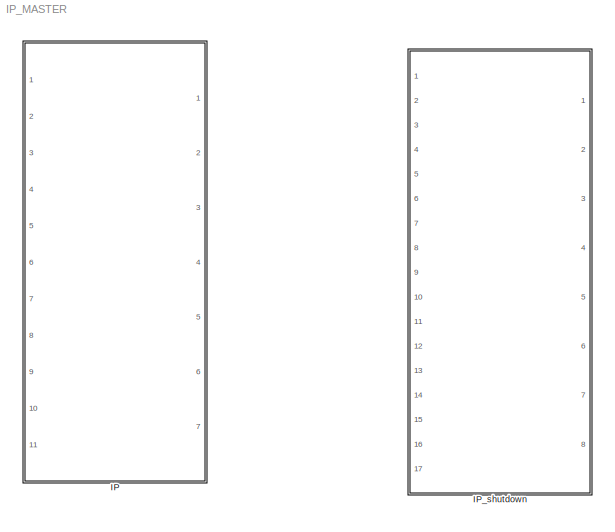
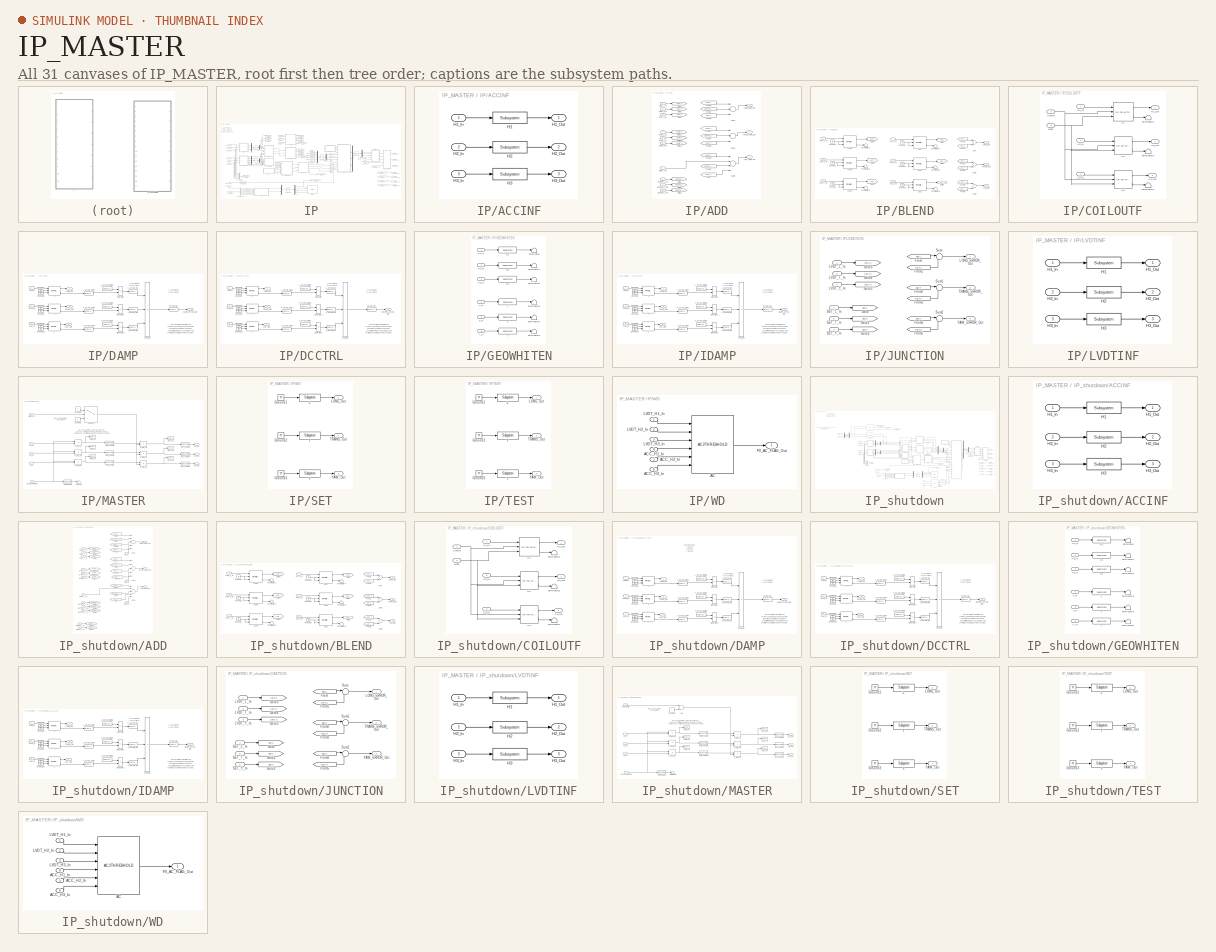
[diagram: thumbnail index - all 31 canvases of the model, root first then tree order]
MODEL IP_MASTER
KIND library
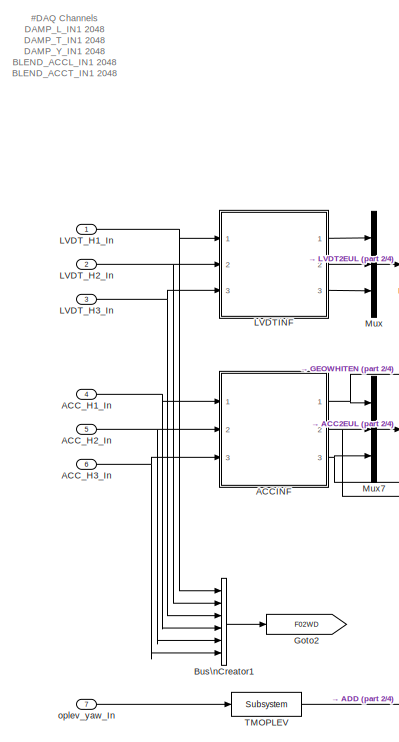
[diagram: IP - part 1/4, left side, full height]
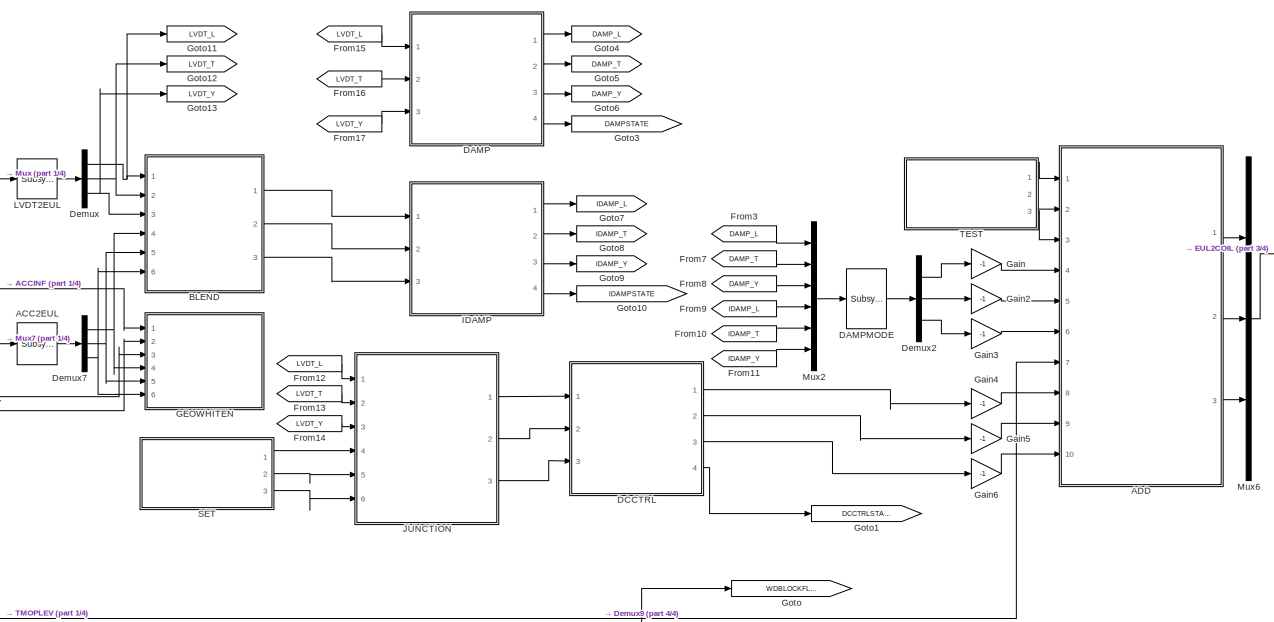
[diagram: IP - part 2/4, central region]
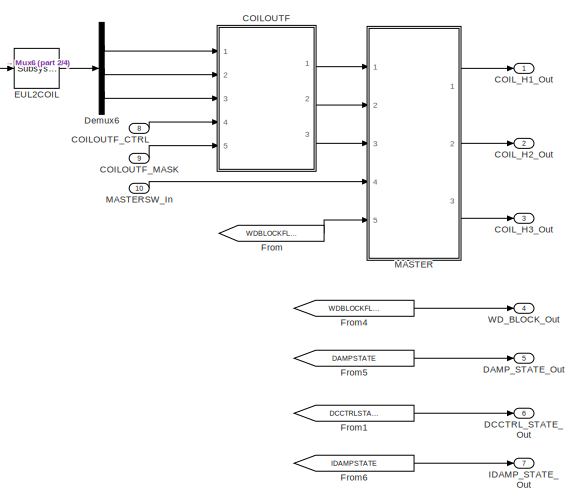
[diagram: IP - part 3/4, middle right region]
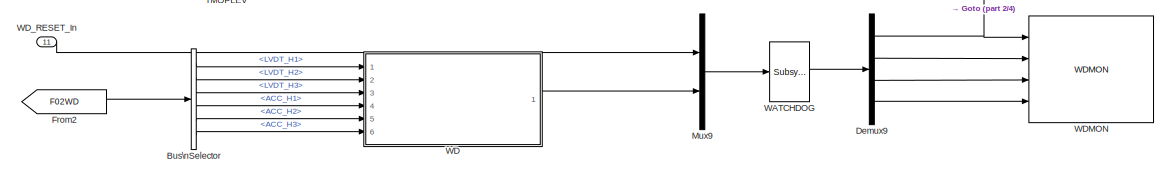
[diagram: IP - part 4/4, bottom left region]
BLOCK [SubSystem] IP
  Ports = [11, 7]
  RequestExecContextInheritance = off
  SID = 1
  Variant = off
BLOCK [Reference] IP/ACC2EUL  REF=cdsMuxMatrix/Subsystem
  AttributesFormatString = %<Tag>
  Description = ADL=SUS_INMATRIX.adl\nSCRIPT=generate_KisselButton.py 4 5 #CHANNEL# > #TARGET_DIR#/#FULL_PART_NAME#_KB.adl
  Ports = [1, 1]
  SID = 196
  SourceBlock = cdsMuxMatrix/Subsystem
  SourceType = SubSystem
  Tag = cdsMuxMatrix
BLOCK [SubSystem] IP/ACCINF
  Ports = [3, 3]
  RequestExecContextInheritance = off
  SID = 180
  Variant = off
BLOCK [Reference] IP/ACCINF/H1  REF=cdsFilt/Subsystem
  AttributesFormatString = %<Tag>
  Description = Purpose:                                                                                                                                                                                                                                  \nStandard CDS IIR filter module.                                                                                                                                     ...<+1302ch>  <repeated x38 — deduplicated; at blocks: H1, H2, H3, L, T, Y, TMOPLEV>
  Ports = [1, 1]
  SID = 282
  SourceBlock = cdsFilt/Subsystem
  SourceType = SubSystem
  Tag = cdsFilt
BLOCK [Inport] IP/ACCINF/H1_In
  IconDisplay = Port number
  SID = 279
BLOCK [Outport] IP/ACCINF/H1_Out
  IconDisplay = Port number
  SID = 285
BLOCK [Reference] IP/ACCINF/H2  REF=cdsFilt/Subsystem
  AttributesFormatString = %<Tag>
  Ports = [1, 1]
  SID = 283
  SourceBlock = cdsFilt/Subsystem
  SourceType = SubSystem
  Tag = cdsFilt
BLOCK [Inport] IP/ACCINF/H2_In
  IconDisplay = Port number
  Port = 2
  SID = 280
BLOCK [Outport] IP/ACCINF/H2_Out
  IconDisplay = Port number
  Port = 2
  SID = 286
BLOCK [Reference] IP/ACCINF/H3  REF=cdsFilt/Subsystem
  AttributesFormatString = %<Tag>
  Ports = [1, 1]
  SID = 284
  SourceBlock = cdsFilt/Subsystem
  SourceType = SubSystem
  Tag = cdsFilt
BLOCK [Inport] IP/ACCINF/H3_In
  IconDisplay = Port number
  Port = 3
  SID = 281
BLOCK [Outport] IP/ACCINF/H3_Out
  IconDisplay = Port number
  Port = 3
  SID = 287
BLOCK [Inport] IP/ACC_H1_In
  IconDisplay = Port number
  Port = 4
  SID = 5
BLOCK [Inport] IP/ACC_H2_In
  IconDisplay = Port number
  Port = 5
  SID = 6
BLOCK [Inport] IP/ACC_H3_In
  IconDisplay = Port number
  Port = 6
  SID = 7
BLOCK [SubSystem] IP/ADD
  Ports = [10, 3]
  RequestExecContextInheritance = off
  SID = 14
  Variant = off
BLOCK [Inport] IP/ADD/DAMP_L_In
  IconDisplay = Port number
  Port = 4
  SID = 295
BLOCK [Inport] IP/ADD/DAMP_T_In
  IconDisplay = Port number
  Port = 5
  SID = 296
BLOCK [Inport] IP/ADD/DAMP_Y_In
  IconDisplay = Port number
  Port = 6
  SID = 297
BLOCK [Inport] IP/ADD/DCCTRL_L_In
  IconDisplay = Port number
  Port = 8
  SID = 383
BLOCK [Inport] IP/ADD/DCCTRL_T_In\n
  IconDisplay = Port number
  Port = 9
  SID = 384
BLOCK [Inport] IP/ADD/DCCTRL_Y_In
  IconDisplay = Port number
  Port = 10
  SID = 385
BLOCK [From] IP/ADD/Fro
  CloseFcn = tagdialog Close
  GotoTag = TEST_Y
  SID = 505
BLOCK [From] IP/ADD/From10
  CloseFcn = tagdialog Close
  GotoTag = DAMP_Y
  SID = 307
BLOCK [From] IP/ADD/From17
  CloseFcn = tagdialog Close
  GotoTag = DAMP_T
  SID = 309
BLOCK [From] IP/ADD/From2
  CloseFcn = tagdialog Close
  GotoTag = DCCTRL_L
  SID = 389
BLOCK [From] IP/ADD/From3
  CloseFcn = tagdialog Close
  GotoTag = DAMP_L
  SID = 310
BLOCK [From] IP/ADD/From4
  CloseFcn = tagdialog Close
  GotoTag = DCCTRL_T
  SID = 390
BLOCK [From] IP/ADD/From5
  CloseFcn = tagdialog Close
  GotoTag = DCCTRL_Y
  SID = 391
BLOCK [From] IP/ADD/From\n
  CloseFcn = tagdialog Close
  GotoTag = TEST_L
  SID = 503
BLOCK [From] IP/ADD/From\n1
  CloseFcn = tagdialog Close
  GotoTag = TEST_T
  SID = 504
BLOCK [Goto] IP/ADD/Goto1
  GotoTag = DCCTRL_L
  SID = 386
BLOCK [Goto] IP/ADD/Goto12
  GotoTag = DAMP_L
  SID = 298
BLOCK [Goto] IP/ADD/Goto14
  GotoTag = DAMP_Y
  SID = 299
BLOCK [Goto] IP/ADD/Goto15
  GotoTag = DAMP_T
  SID = 300
BLOCK [Goto] IP/ADD/Goto2
  GotoTag = DCCTRL_Y
  SID = 387
BLOCK [Goto] IP/ADD/Goto3
  GotoTag = TEST_L
  SID = 500
BLOCK [Goto] IP/ADD/Goto4
  GotoTag = DCCTRL_T
  SID = 388
BLOCK [Goto] IP/ADD/Goto5
  GotoTag = TEST_Y
  SID = 501
BLOCK [Goto] IP/ADD/Goto6
  GotoTag = TEST_T
  SID = 502
BLOCK [Outport] IP/ADD/LONG_MAIN_Out
  IconDisplay = Port number
  SID = 30
BLOCK [Sum] IP/ADD/Sum1
  InputSameDT = off
  Inputs = +++
  OutDataTypeStr = Inherit: Inherit via internal rule
  Ports = [3, 1]
  SID = 22
  SaturateOnIntegerOverflow = off
BLOCK [Sum] IP/ADD/Sum2
  InputSameDT = off
  Inputs = +++
  OutDataTypeStr = Inherit: Inherit via internal rule
  Ports = [3, 1]
  SID = 301
  SaturateOnIntegerOverflow = off
BLOCK [Sum] IP/ADD/Sum3
  InputSameDT = off
  Inputs = ++++
  OutDataTypeStr = Inherit: Inherit via internal rule
  Ports = [4, 1]
  SID = 303
  SaturateOnIntegerOverflow = off
BLOCK [Inport] IP/ADD/TEST_L_In
  IconDisplay = Port number
  SID = 497
BLOCK [Inport] IP/ADD/TEST_T_In
  IconDisplay = Port number
  Port = 2
  SID = 498
BLOCK [Inport] IP/ADD/TEST_Y_In
  IconDisplay = Port number
  Port = 3
  SID = 499
BLOCK [Outport] IP/ADD/TRANS_MAIN_Out
  IconDisplay = Port number
  Port = 2
  SID = 302
BLOCK [Outport] IP/ADD/YAW_MAIN_Out
  IconDisplay = Port number
  Port = 3
  SID = 304
BLOCK [Inport] IP/ADD/oplev_Y_In
  IconDisplay = Port number
  Port = 7
  SID = 367
BLOCK [SubSystem] IP/BLEND
  Ports = [6, 3]
  RequestExecContextInheritance = off
  SID = 33
  Variant = off
BLOCK [Reference] IP/BLEND/ACCL  REF=cdsFiltCtrl/IIR FM with control
  AttributesFormatString = %<Tag>
  Description = cdsFiltCntrl is the standard IIR filter module (exactly the same as cdsFilt) but with added control data output 'Ctrl'. Filter module digital signal output appears on the first output, which is called 'Val'. 'Ctrl' output has a bit pattern encoding the state of filter's on/off switches (FM1 through FM10). The bit values are:\n                                                                        ...<+4621ch>  <repeated x36 — deduplicated; at blocks: ACCL, ACCT, ACCY, LVDTL, LVDTT, LVDTY, H1, H2, H3, L, T, Y>
  Ports = [3, 2]
  SID = 61
  SourceBlock = cdsFiltCtrl/IIR FM with control
  SourceType = SubSystem
  Tag = cdsFiltCtrl
BLOCK [Reference] IP/BLEND/ACCT  REF=cdsFiltCtrl/IIR FM with control
  AttributesFormatString = %<Tag>
  Ports = [3, 2]
  SID = 62
  SourceBlock = cdsFiltCtrl/IIR FM with control
  SourceType = SubSystem
  Tag = cdsFiltCtrl
BLOCK [Reference] IP/BLEND/ACCY  REF=cdsFiltCtrl/IIR FM with control
  AttributesFormatString = %<Tag>
  Ports = [3, 2]
  SID = 63
  SourceBlock = cdsFiltCtrl/IIR FM with control
  SourceType = SubSystem
  Tag = cdsFiltCtrl
BLOCK [Inport] IP/BLEND/ACC_L_In
  IconDisplay = Port number
  Port = 4
  SID = 37
BLOCK [Inport] IP/BLEND/ACC_T_In
  IconDisplay = Port number
  Port = 5
  SID = 38
BLOCK [Inport] IP/BLEND/ACC_Y_IN
  IconDisplay = Port number
  Port = 6
  SID = 39
BLOCK [From] IP/BLEND/From1
  CloseFcn = tagdialog Close
  GotoTag = LVDT_T
  SID = 40
BLOCK [From] IP/BLEND/From2
  CloseFcn = tagdialog Close
  GotoTag = LVDT_Y
  SID = 41
BLOCK [From] IP/BLEND/From3
  CloseFcn = tagdialog Close
  GotoTag = LVDT_L
  SID = 42
BLOCK [From] IP/BLEND/From4
  CloseFcn = tagdialog Close
  GotoTag = ACC_L
  SID = 43
BLOCK [From] IP/BLEND/From5
  CloseFcn = tagdialog Close
  GotoTag = ACC_T
  SID = 44
BLOCK [From] IP/BLEND/From6
  CloseFcn = tagdialog Close
  GotoTag = ACC_Y
  SID = 45
BLOCK [Goto] IP/BLEND/Goto1
  GotoTag = LVDT_T
  SID = 46
BLOCK [Goto] IP/BLEND/Goto2
  GotoTag = LVDT_L
  SID = 47
BLOCK [Goto] IP/BLEND/Goto3
  GotoTag = LVDT_Y
  SID = 48
BLOCK [Goto] IP/BLEND/Goto4
  GotoTag = ACC_T
  SID = 49
BLOCK [Goto] IP/BLEND/Goto5
  GotoTag = ACC_L
  SID = 50
BLOCK [Goto] IP/BLEND/Goto6
  GotoTag = ACC_Y
  SID = 51
BLOCK [Ground] IP/BLEND/Ground1
  SID = 52
BLOCK [Ground] IP/BLEND/Ground2
  SID = 53
BLOCK [Ground] IP/BLEND/Ground3
  SID = 54
BLOCK [Ground] IP/BLEND/Ground4
  SID = 55
BLOCK [Ground] IP/BLEND/Ground5
  SID = 56
BLOCK [Ground] IP/BLEND/Ground6
  SID = 57
BLOCK [Outport] IP/BLEND/LONG_Out
  IconDisplay = Port number
  SID = 73
BLOCK [Reference] IP/BLEND/LVDTL  REF=cdsFiltCtrl/IIR FM with control
  AttributesFormatString = %<Tag>
  Ports = [3, 2]
  SID = 58
  SourceBlock = cdsFiltCtrl/IIR FM with control
  SourceType = SubSystem
  Tag = cdsFiltCtrl
BLOCK [Reference] IP/BLEND/LVDTT  REF=cdsFiltCtrl/IIR FM with control
  AttributesFormatString = %<Tag>
  Ports = [3, 2]
  SID = 59
  SourceBlock = cdsFiltCtrl/IIR FM with control
  SourceType = SubSystem
  Tag = cdsFiltCtrl
BLOCK [Reference] IP/BLEND/LVDTY  REF=cdsFiltCtrl/IIR FM with control
  AttributesFormatString = %<Tag>
  Ports = [3, 2]
  SID = 60
  SourceBlock = cdsFiltCtrl/IIR FM with control
  SourceType = SubSystem
  Tag = cdsFiltCtrl
BLOCK [Inport] IP/BLEND/LVDT_L_In
  IconDisplay = Port number
  SID = 34
BLOCK [Inport] IP/BLEND/LVDT_T_In
  IconDisplay = Port number
  Port = 2
  SID = 35
BLOCK [Inport] IP/BLEND/LVDT_Y_In
  IconDisplay = Port number
  Port = 3
  SID = 36
BLOCK [Sum] IP/BLEND/Sum
  InputSameDT = off
  OutDataTypeStr = Inherit: Inherit via internal rule
  Ports = [2, 1]
  SID = 64
  SaturateOnIntegerOverflow = off
BLOCK [Sum] IP/BLEND/Sum1
  InputSameDT = off
  OutDataTypeStr = Inherit: Inherit via internal rule
  Ports = [2, 1]
  SID = 65
  SaturateOnIntegerOverflow = off
BLOCK [Sum] IP/BLEND/Sum2
  InputSameDT = off
  OutDataTypeStr = Inherit: Inherit via internal rule
  Ports = [2, 1]
  SID = 66
  SaturateOnIntegerOverflow = off
BLOCK [Outport] IP/BLEND/TRANS_Out
  IconDisplay = Port number
  Port = 2
  SID = 74
BLOCK [Terminator] IP/BLEND/Terminator1
  SID = 67
BLOCK [Terminator] IP/BLEND/Terminator2
  SID = 68
BLOCK [Terminator] IP/BLEND/Terminator3
  SID = 69
BLOCK [Terminator] IP/BLEND/Terminator4
  SID = 70
BLOCK [Terminator] IP/BLEND/Terminator5
  SID = 71
BLOCK [Terminator] IP/BLEND/Terminator6
  SID = 72
BLOCK [Outport] IP/BLEND/YAW_Out
  IconDisplay = Port number
  Port = 3
  SID = 75
BLOCK [BusCreator] IP/Bus\nCreator1
  DisplayOption = bar
  InheritFromInputs = on
  Inputs = 'LVDT_H1','LVDT_H2','LVDT_H3','ACC_H1','ACC_H2','ACC_H3'
  Ports = [6, 1]
  SID = 76
BLOCK [BusSelector] IP/Bus\nSelector
  OutputSignals = LVDT_H1,LVDT_H2,LVDT_H3,ACC_H1,ACC_H2,ACC_H3
  Ports = [1, 6]
  SID = 77
BLOCK [SubSystem] IP/COILOUTF
  Ports = [5, 3]
  RequestExecContextInheritance = off
  SID = 113
  Variant = off
BLOCK [Inport] IP/COILOUTF/Control
  IconDisplay = Port number
  Port = 4
  SID = 312
BLOCK [Reference] IP/COILOUTF/H1  REF=cdsFiltCtrl/IIR FM with control
  AttributesFormatString = %<Tag>
  Ports = [3, 2]
  SID = 120
  SourceBlock = cdsFiltCtrl/IIR FM with control
  SourceType = SubSystem
  Tag = cdsFiltCtrl
BLOCK [Inport] IP/COILOUTF/H1_IN
  IconDisplay = Port number
  SID = 114
BLOCK [Outport] IP/COILOUTF/H1_Out
  IconDisplay = Port number
  SID = 126
BLOCK [Reference] IP/COILOUTF/H2  REF=cdsFiltCtrl/IIR FM with control
  AttributesFormatString = %<Tag>
  Ports = [3, 2]
  SID = 121
  SourceBlock = cdsFiltCtrl/IIR FM with control
  SourceType = SubSystem
  Tag = cdsFiltCtrl
BLOCK [Inport] IP/COILOUTF/H2_IN
  IconDisplay = Port number
  Port = 2
  SID = 115
BLOCK [Outport] IP/COILOUTF/H2_Out
  IconDisplay = Port number
  Port = 2
  SID = 127
BLOCK [Reference] IP/COILOUTF/H3  REF=cdsFiltCtrl/IIR FM with control
  AttributesFormatString = %<Tag>
  Ports = [3, 2]
  SID = 122
  SourceBlock = cdsFiltCtrl/IIR FM with control
  SourceType = SubSystem
  Tag = cdsFiltCtrl
BLOCK [Inport] IP/COILOUTF/H3_IN
  IconDisplay = Port number
  Port = 3
  SID = 116
BLOCK [Outport] IP/COILOUTF/H3_Out
  IconDisplay = Port number
  Port = 3
  SID = 128
BLOCK [Inport] IP/COILOUTF/Mask
  IconDisplay = Port number
  Port = 5
  SID = 313
BLOCK [Terminator] IP/COILOUTF/Terminator1
  SID = 123
BLOCK [Terminator] IP/COILOUTF/Terminator2
  SID = 124
BLOCK [Terminator] IP/COILOUTF/Terminator3
  SID = 125
BLOCK [Inport] IP/COILOUTF_CTRL
  IconDisplay = Port number
  Port = 8
  SID = 314
BLOCK [Inport] IP/COILOUTF_MASK
  IconDisplay = Port number
  Port = 9
  SID = 315
BLOCK [Outport] IP/COIL_H1_Out
  IconDisplay = Port number
  SID = 230
BLOCK [Outport] IP/COIL_H2_Out
  IconDisplay = Port number
  Port = 2
  SID = 231
BLOCK [Outport] IP/COIL_H3_Out
  IconDisplay = Port number
  Port = 3
  SID = 232
BLOCK [SubSystem] IP/DAMP
  Ports = [3, 4]
  RequestExecContextInheritance = off
  SID = 197
  Variant = off
BLOCK [Outport] IP/DAMP/DAMP_STATE_Out
  IconDisplay = Port number
  Port = 4
  SID = 264
BLOCK [Ground] IP/DAMP/Ground12
  SID = 239
BLOCK [Ground] IP/DAMP/Ground4
  SID = 238
BLOCK [Ground] IP/DAMP/Ground5
  SID = 240
BLOCK [Ground] IP/DAMP/Ground6
  SID = 241
BLOCK [Ground] IP/DAMP/Ground8
  SID = 242
BLOCK [Ground] IP/DAMP/Ground9
  SID = 243
BLOCK [Reference] IP/DAMP/L  REF=cdsFiltCtrl/IIR FM with control
  AttributesFormatString = %<Tag>
  Ports = [3, 2]
  SID = 244
  SourceBlock = cdsFiltCtrl/IIR FM with control
  SourceType = SubSystem
  Tag = cdsFiltCtrl
BLOCK [Inport] IP/DAMP/LONG_In
  IconDisplay = Port number
  SID = 235
BLOCK [Outport] IP/DAMP/LONG_Out
  IconDisplay = Port number
  SID = 261
BLOCK [Reference] IP/DAMP/L_STATE_GOOD  REF=cdsEpicsIn/Subsystem
  AttributesFormatString = %<Tag>
  Description = Purpose:                                                                              \nCreate an EPICS input channel connection to the FE realtime controls.                 \n                                                                                      \nOperation:                                                                            \nOutputs value from an EPICS ai record. Value is ...<+266ch>  <repeated x18 — deduplicated; at blocks: L_STATE_GOOD, T_STATE_GOOD, Y_STATE_GOOD>
  Ports = [0, 1]
  SID = 245
  SourceBlock = cdsEpicsIn/Subsystem
  SourceType = SubSystem
  Tag = cdsEpicsIn
BLOCK [Reference] IP/DAMP/L_STATE_NOW  REF=cdsEpicsOut/Subsystem
  AttributesFormatString = %<Tag>
  Description = Purpose:                                          \nOutput a FE signal to an EPICS channel.           \n                                                  \nOperation:                                        \nTakes input value and passes it to EPICS record.  \n                                                  \nUsage:                                            \nName the part with the desired EPICS...<+14ch>  <repeated x56 — deduplicated; at blocks: L_STATE_NOW, L_STATE_OK, STATE_OK, T_STATE_NOW, T_STATE_OK, V_STATE_OK, Y_STATE_NOW, OUT_H1MON, OUT_H2MON, OUT_H3MON, PWD_H1MON, PWD_H2MON, PWD_H3MON, SWITCHMON>
  Ports = [1, 1]
  SID = 246
  SourceBlock = cdsEpicsOut/Subsystem
  SourceType = SubSystem
  Tag = cdsEpicsOutput
BLOCK [Reference] IP/DAMP/L_STATE_OK  REF=cdsEpicsOut/Subsystem
  AttributesFormatString = %<Tag>
  Ports = [1, 1]
  SID = 247
  SourceBlock = cdsEpicsOut/Subsystem
  SourceType = SubSystem
  Tag = cdsEpicsOutput
BLOCK [RelationalOperator] IP/DAMP/Operator
  InputSameDT = off
  Operator = ==
  OutDataTypeStr = boolean
  Ports = [2, 1]
  SID = 248
BLOCK [RelationalOperator] IP/DAMP/Operator1
  InputSameDT = off
  Operator = ==
  OutDataTypeStr = boolean
  Ports = [2, 1]
  SID = 249
BLOCK [RelationalOperator] IP/DAMP/Operator2
  InputSameDT = off
  Operator = ==
  OutDataTypeStr = boolean
  Ports = [2, 1]
  SID = 250
BLOCK [Product] IP/DAMP/Product
  InputSameDT = off
  Inputs = 3
  OutDataTypeStr = Inherit: Inherit via internal rule
  Ports = [3, 1]
  SID = 251
  SaturateOnIntegerOverflow = off
BLOCK [Reference] IP/DAMP/STATE_OK  REF=cdsEpicsOut/Subsystem
  AttributesFormatString = %<Tag>
  Ports = [1, 1]
  SID = 252
  SourceBlock = cdsEpicsOut/Subsystem
  SourceType = SubSystem
  Tag = cdsEpicsOutput
BLOCK [Reference] IP/DAMP/T  REF=cdsFiltCtrl/IIR FM with control
  AttributesFormatString = %<Tag>
  Ports = [3, 2]
  SID = 253
  SourceBlock = cdsFiltCtrl/IIR FM with control
  SourceType = SubSystem
  Tag = cdsFiltCtrl
BLOCK [Inport] IP/DAMP/TRANS_In
  IconDisplay = Port number
  Port = 2
  SID = 236
BLOCK [Outport] IP/DAMP/TRANS_Out
  IconDisplay = Port number
  Port = 2
  SID = 262
BLOCK [Reference] IP/DAMP/T_STATE_GOOD  REF=cdsEpicsIn/Subsystem
  AttributesFormatString = %<Tag>
  Ports = [0, 1]
  SID = 254
  SourceBlock = cdsEpicsIn/Subsystem
  SourceType = SubSystem
  Tag = cdsEpicsIn
BLOCK [Reference] IP/DAMP/T_STATE_NOW  REF=cdsEpicsOut/Subsystem
  AttributesFormatString = %<Tag>
  Ports = [1, 1]
  SID = 255
  SourceBlock = cdsEpicsOut/Subsystem
  SourceType = SubSystem
  Tag = cdsEpicsOutput
BLOCK [Reference] IP/DAMP/T_STATE_OK  REF=cdsEpicsOut/Subsystem
  AttributesFormatString = %<Tag>
  Ports = [1, 1]
  SID = 256
  SourceBlock = cdsEpicsOut/Subsystem
  SourceType = SubSystem
  Tag = cdsEpicsOutput
BLOCK [Reference] IP/DAMP/V_STATE_OK  REF=cdsEpicsOut/Subsystem
  AttributesFormatString = %<Tag>
  Ports = [1, 1]
  SID = 260
  SourceBlock = cdsEpicsOut/Subsystem
  SourceType = SubSystem
  Tag = cdsEpicsOutput
BLOCK [Reference] IP/DAMP/Y  REF=cdsFiltCtrl/IIR FM with control
  AttributesFormatString = %<Tag>
  Ports = [3, 2]
  SID = 257
  SourceBlock = cdsFiltCtrl/IIR FM with control
  SourceType = SubSystem
  Tag = cdsFiltCtrl
BLOCK [Inport] IP/DAMP/YAW_In
  IconDisplay = Port number
  Port = 3
  SID = 237
BLOCK [Outport] IP/DAMP/YAW_Out
  IconDisplay = Port number
  Port = 3
  SID = 263
BLOCK [Reference] IP/DAMP/Y_STATE_GOOD  REF=cdsEpicsIn/Subsystem
  AttributesFormatString = %<Tag>
  Ports = [0, 1]
  SID = 258
  SourceBlock = cdsEpicsIn/Subsystem
  SourceType = SubSystem
  Tag = cdsEpicsIn
BLOCK [Reference] IP/DAMP/Y_STATE_NOW  REF=cdsEpicsOut/Subsystem
  AttributesFormatString = %<Tag>
  Ports = [1, 1]
  SID = 259
  SourceBlock = cdsEpicsOut/Subsystem
  SourceType = SubSystem
  Tag = cdsEpicsOutput
BLOCK [Reference] IP/DAMPMODE  REF=cdsRampMuxMatrix/Subsystem
  AttributesFormatString = %<Tag>
  Ports = [1, 1]
  SID = 551
  SourceBlock = cdsRampMuxMatrix/Subsystem
  SourceType = SubSystem
  Tag = cdsRampMuxMatrix
BLOCK [Outport] IP/DAMP_STATE_Out
  IconDisplay = Port number
  Port = 5
  SID = 321
BLOCK [SubSystem] IP/DCCTRL
  Ports = [3, 4]
  RequestExecContextInheritance = off
  SID = 395
  Variant = off
BLOCK [Outport] IP/DCCTRL/DCCTRL_STATE_Out
  IconDisplay = Port number
  Port = 4
  SID = 426
BLOCK [Ground] IP/DCCTRL/Ground12
  SID = 400
BLOCK [Ground] IP/DCCTRL/Ground4
  SID = 401
BLOCK [Ground] IP/DCCTRL/Ground5
  SID = 402
BLOCK [Ground] IP/DCCTRL/Ground6
  SID = 403
BLOCK [Ground] IP/DCCTRL/Ground8
  SID = 404
BLOCK [Ground] IP/DCCTRL/Ground9
  SID = 405
BLOCK [Reference] IP/DCCTRL/L  REF=cdsFiltCtrl/IIR FM with control
  AttributesFormatString = %<Tag>
  Ports = [3, 2]
  SID = 406
  SourceBlock = cdsFiltCtrl/IIR FM with control
  SourceType = SubSystem
  Tag = cdsFiltCtrl
BLOCK [Inport] IP/DCCTRL/LONG_In
  IconDisplay = Port number
  SID = 397
BLOCK [Outport] IP/DCCTRL/LONG_Out
  IconDisplay = Port number
  SID = 423
BLOCK [Reference] IP/DCCTRL/L_STATE_GOOD  REF=cdsEpicsIn/Subsystem
  AttributesFormatString = %<Tag>
  Ports = [0, 1]
  SID = 407
  SourceBlock = cdsEpicsIn/Subsystem
  SourceType = SubSystem
  Tag = cdsEpicsIn
BLOCK [Reference] IP/DCCTRL/L_STATE_NOW  REF=cdsEpicsOut/Subsystem
  AttributesFormatString = %<Tag>
  Ports = [1, 1]
  SID = 408
  SourceBlock = cdsEpicsOut/Subsystem
  SourceType = SubSystem
  Tag = cdsEpicsOutput
BLOCK [Reference] IP/DCCTRL/L_STATE_OK  REF=cdsEpicsOut/Subsystem
  AttributesFormatString = %<Tag>
  Ports = [1, 1]
  SID = 409
  SourceBlock = cdsEpicsOut/Subsystem
  SourceType = SubSystem
  Tag = cdsEpicsOutput
BLOCK [RelationalOperator] IP/DCCTRL/Operator
  InputSameDT = off
  Operator = ==
  OutDataTypeStr = boolean
  Ports = [2, 1]
  SID = 410
BLOCK [RelationalOperator] IP/DCCTRL/Operator1
  InputSameDT = off
  Operator = ==
  OutDataTypeStr = boolean
  Ports = [2, 1]
  SID = 411
BLOCK [RelationalOperator] IP/DCCTRL/Operator2
  InputSameDT = off
  Operator = ==
  OutDataTypeStr = boolean
  Ports = [2, 1]
  SID = 412
BLOCK [Product] IP/DCCTRL/Product
  InputSameDT = off
  Inputs = 3
  OutDataTypeStr = Inherit: Inherit via internal rule
  Ports = [3, 1]
  SID = 413
  SaturateOnIntegerOverflow = off
BLOCK [Reference] IP/DCCTRL/STATE_OK  REF=cdsEpicsOut/Subsystem
  AttributesFormatString = %<Tag>
  Ports = [1, 1]
  SID = 414
  SourceBlock = cdsEpicsOut/Subsystem
  SourceType = SubSystem
  Tag = cdsEpicsOutput
BLOCK [Reference] IP/DCCTRL/T  REF=cdsFiltCtrl/IIR FM with control
  AttributesFormatString = %<Tag>
  Ports = [3, 2]
  SID = 415
  SourceBlock = cdsFiltCtrl/IIR FM with control
  SourceType = SubSystem
  Tag = cdsFiltCtrl
BLOCK [Inport] IP/DCCTRL/TRANS_In
  IconDisplay = Port number
  Port = 2
  SID = 398
BLOCK [Outport] IP/DCCTRL/TRANS_Out
  IconDisplay = Port number
  Port = 2
  SID = 424
BLOCK [Reference] IP/DCCTRL/T_STATE_GOOD  REF=cdsEpicsIn/Subsystem
  AttributesFormatString = %<Tag>
  Ports = [0, 1]
  SID = 416
  SourceBlock = cdsEpicsIn/Subsystem
  SourceType = SubSystem
  Tag = cdsEpicsIn
BLOCK [Reference] IP/DCCTRL/T_STATE_NOW  REF=cdsEpicsOut/Subsystem
  AttributesFormatString = %<Tag>
  Ports = [1, 1]
  SID = 417
  SourceBlock = cdsEpicsOut/Subsystem
  SourceType = SubSystem
  Tag = cdsEpicsOutput
BLOCK [Reference] IP/DCCTRL/T_STATE_OK  REF=cdsEpicsOut/Subsystem
  AttributesFormatString = %<Tag>
  Ports = [1, 1]
  SID = 418
  SourceBlock = cdsEpicsOut/Subsystem
  SourceType = SubSystem
  Tag = cdsEpicsOutput
BLOCK [Reference] IP/DCCTRL/V_STATE_OK  REF=cdsEpicsOut/Subsystem
  AttributesFormatString = %<Tag>
  Ports = [1, 1]
  SID = 419
  SourceBlock = cdsEpicsOut/Subsystem
  SourceType = SubSystem
  Tag = cdsEpicsOutput
BLOCK [Reference] IP/DCCTRL/Y  REF=cdsFiltCtrl/IIR FM with control
  AttributesFormatString = %<Tag>
  Ports = [3, 2]
  SID = 420
  SourceBlock = cdsFiltCtrl/IIR FM with control
  SourceType = SubSystem
  Tag = cdsFiltCtrl
BLOCK [Inport] IP/DCCTRL/YAW_In
  IconDisplay = Port number
  Port = 3
  SID = 399
BLOCK [Outport] IP/DCCTRL/YAW_Out
  IconDisplay = Port number
  Port = 3
  SID = 425
BLOCK [Reference] IP/DCCTRL/Y_STATE_GOOD  REF=cdsEpicsIn/Subsystem
  AttributesFormatString = %<Tag>
  Ports = [0, 1]
  SID = 421
  SourceBlock = cdsEpicsIn/Subsystem
  SourceType = SubSystem
  Tag = cdsEpicsIn
BLOCK [Reference] IP/DCCTRL/Y_STATE_NOW  REF=cdsEpicsOut/Subsystem
  AttributesFormatString = %<Tag>
  Ports = [1, 1]
  SID = 422
  SourceBlock = cdsEpicsOut/Subsystem
  SourceType = SubSystem
  Tag = cdsEpicsOutput
BLOCK [Outport] IP/DCCTRL_STATE_Out
  IconDisplay = Port number
  Port = 6
  SID = 432
BLOCK [Demux] IP/Demux
  DisplayOption = bar
  Outputs = 3
  Ports = [1, 3]
  SID = 129
BLOCK [Demux] IP/Demux2
  DisplayOption = bar
  Outputs = 3
  Ports = [1, 3]
  SID = 549
BLOCK [Demux] IP/Demux6
  DisplayOption = bar
  Outputs = 3
  Ports = [1, 3]
  SID = 130
BLOCK [Demux] IP/Demux7
  DisplayOption = bar
  Outputs = 3
  Ports = [1, 3]
  SID = 131
BLOCK [Demux] IP/Demux9
  DisplayOption = bar
  Ports = [1, 4]
  SID = 132
BLOCK [Reference] IP/EUL2COIL  REF=cdsMuxMatrix/Subsystem
  AttributesFormatString = %<Tag>
  Description = ADL=SUS_INMATRIX.adl\nSCRIPT=generate_KisselButton.py 4 5 #CHANNEL# > #TARGET_DIR#/#FULL_PART_NAME#_KB.adl
  Ports = [1, 1]
  SID = 112
  SourceBlock = cdsMuxMatrix/Subsystem
  SourceType = SubSystem
  Tag = cdsMuxMatrix
BLOCK [From] IP/From
  GotoTag = WDBLOCKFLAG
  SID = 133
BLOCK [From] IP/From1
  CloseFcn = tagdialog Close
  GotoTag = DCCTRLSTATE
  SID = 431
BLOCK [From] IP/From10
  GotoTag = IDAMP_T
  SID = 572
BLOCK [From] IP/From11
  GotoTag = IDAMP_Y
  SID = 573
BLOCK [From] IP/From12
  GotoTag = LVDT_L
  SID = 579
BLOCK [From] IP/From13
  GotoTag = LVDT_T
  SID = 580
BLOCK [From] IP/From14
  GotoTag = LVDT_Y
  SID = 581
BLOCK [From] IP/From15
  GotoTag = LVDT_L
  SID = 582
BLOCK [From] IP/From16
  GotoTag = LVDT_T
  SID = 583
BLOCK [From] IP/From17
  GotoTag = LVDT_Y
  SID = 584
BLOCK [From] IP/From2
  CloseFcn = tagdialog Close
  GotoTag = F02WD
  SID = 134
BLOCK [From] IP/From3
  GotoTag = DAMP_L
  SID = 566
BLOCK [From] IP/From4
  CloseFcn = tagdialog Close
  GotoTag = WDBLOCKFLAG
  SID = 318
BLOCK [From] IP/From5
  CloseFcn = tagdialog Close
  GotoTag = DAMPSTATE
  SID = 319
BLOCK [From] IP/From6
  CloseFcn = tagdialog Close
  GotoTag = IDAMPSTATE
  SID = 564
BLOCK [From] IP/From7
  GotoTag = DAMP_T
  SID = 569
BLOCK [From] IP/From8
  GotoTag = DAMP_Y
  SID = 570
BLOCK [From] IP/From9
  GotoTag = IDAMP_L
  SID = 571
BLOCK [SubSystem] IP/GEOWHITEN
  Ports = [6]
  RequestExecContextInheritance = off
  SID = 333
  Variant = off
BLOCK [Reference] IP/GEOWHITEN/H1  REF=cdsFilt/Subsystem
  AttributesFormatString = %<Tag>
  Ports = [1, 1]
  SID = 337
  SourceBlock = cdsFilt/Subsystem
  SourceType = SubSystem
  Tag = cdsFilt
BLOCK [Inport] IP/GEOWHITEN/H1_In
  IconDisplay = Port number
  SID = 334
BLOCK [Reference] IP/GEOWHITEN/H2  REF=cdsFilt/Subsystem
  AttributesFormatString = %<Tag>
  Ports = [1, 1]
  SID = 338
  SourceBlock = cdsFilt/Subsystem
  SourceType = SubSystem
  Tag = cdsFilt
BLOCK [Inport] IP/GEOWHITEN/H2_In
  IconDisplay = Port number
  Port = 2
  SID = 335
BLOCK [Reference] IP/GEOWHITEN/H3  REF=cdsFilt/Subsystem
  AttributesFormatString = %<Tag>
  Ports = [1, 1]
  SID = 339
  SourceBlock = cdsFilt/Subsystem
  SourceType = SubSystem
  Tag = cdsFilt
BLOCK [Inport] IP/GEOWHITEN/H3_In
  IconDisplay = Port number
  Port = 3
  SID = 336
BLOCK [Reference] IP/GEOWHITEN/L  REF=cdsFilt/Subsystem
  AttributesFormatString = %<Tag>
  Ports = [1, 1]
  SID = 346
  SourceBlock = cdsFilt/Subsystem
  SourceType = SubSystem
  Tag = cdsFilt
BLOCK [Inport] IP/GEOWHITEN/L_In
  IconDisplay = Port number
  Port = 4
  SID = 343
BLOCK [Reference] IP/GEOWHITEN/T  REF=cdsFilt/Subsystem
  AttributesFormatString = %<Tag>
  Ports = [1, 1]
  SID = 347
  SourceBlock = cdsFilt/Subsystem
  SourceType = SubSystem
  Tag = cdsFilt
BLOCK [Inport] IP/GEOWHITEN/T_In
  IconDisplay = Port number
  Port = 5
  SID = 344
BLOCK [Terminator] IP/GEOWHITEN/Terminator
  SID = 352
BLOCK [Terminator] IP/GEOWHITEN/Terminator1
  SID = 353
BLOCK [Terminator] IP/GEOWHITEN/Terminator2
  SID = 354
BLOCK [Terminator] IP/GEOWHITEN/Terminator3
  SID = 355
BLOCK [Terminator] IP/GEOWHITEN/Terminator4
  SID = 356
BLOCK [Terminator] IP/GEOWHITEN/Terminator5
  SID = 357
BLOCK [Reference] IP/GEOWHITEN/Y  REF=cdsFilt/Subsystem
  AttributesFormatString = %<Tag>
  Ports = [1, 1]
  SID = 348
  SourceBlock = cdsFilt/Subsystem
  SourceType = SubSystem
  Tag = cdsFilt
BLOCK [Inport] IP/GEOWHITEN/Y_In
  IconDisplay = Port number
  Port = 6
  SID = 345
BLOCK [Gain] IP/Gain
  Gain = -1
  OutDataTypeStr = Inherit: Inherit via internal rule
  ParamDataTypeStr = Inherit: Inherit via internal rule
  SID = 506
  SaturateOnIntegerOverflow = off
BLOCK [Gain] IP/Gain2
  Gain = -1
  OutDataTypeStr = Inherit: Inherit via internal rule
  ParamDataTypeStr = Inherit: Inherit via internal rule
  SID = 509
  SaturateOnIntegerOverflow = off
BLOCK [Gain] IP/Gain3
  Gain = -1
  OutDataTypeStr = Inherit: Inherit via internal rule
  ParamDataTypeStr = Inherit: Inherit via internal rule
  SID = 510
  SaturateOnIntegerOverflow = off
BLOCK [Gain] IP/Gain4
  Gain = -1
  OutDataTypeStr = Inherit: Inherit via internal rule
  ParamDataTypeStr = Inherit: Inherit via internal rule
  SID = 511
  SaturateOnIntegerOverflow = off
BLOCK [Gain] IP/Gain5
  Gain = -1
  OutDataTypeStr = Inherit: Inherit via internal rule
  ParamDataTypeStr = Inherit: Inherit via internal rule
  SID = 512
  SaturateOnIntegerOverflow = off
BLOCK [Gain] IP/Gain6
  Gain = -1
  OutDataTypeStr = Inherit: Inherit via internal rule
  ParamDataTypeStr = Inherit: Inherit via internal rule
  SID = 513
  SaturateOnIntegerOverflow = off
BLOCK [Goto] IP/Goto
  GotoTag = WDBLOCKFLAG
  SID = 157
BLOCK [Goto] IP/Goto1
  GotoTag = DCCTRLSTATE
  SID = 396
BLOCK [Goto] IP/Goto10
  GotoTag = IDAMPSTATE
  SID = 562
BLOCK [Goto] IP/Goto11
  GotoTag = LVDT_L
  SID = 576
BLOCK [Goto] IP/Goto12
  GotoTag = LVDT_T
  SID = 577
BLOCK [Goto] IP/Goto13
  GotoTag = LVDT_Y
  SID = 578
BLOCK [Goto] IP/Goto2
  GotoTag = F02WD
  SID = 158
BLOCK [Goto] IP/Goto3
  GotoTag = DAMPSTATE
  SID = 288
BLOCK [Goto] IP/Goto4
  GotoTag = DAMP_L
  SID = 552
BLOCK [Goto] IP/Goto5
  GotoTag = DAMP_T
  SID = 554
BLOCK [Goto] IP/Goto6
  GotoTag = DAMP_Y
  SID = 555
BLOCK [Goto] IP/Goto7
  GotoTag = IDAMP_L
  SID = 556
BLOCK [Goto] IP/Goto8
  GotoTag = IDAMP_T
  SID = 557
BLOCK [Goto] IP/Goto9
  GotoTag = IDAMP_Y
  SID = 558
BLOCK [SubSystem] IP/IDAMP
  Ports = [3, 4]
  RequestExecContextInheritance = off
  SID = 514
  Variant = off
BLOCK [Ground] IP/IDAMP/Ground12
  SID = 518
BLOCK [Ground] IP/IDAMP/Ground4
  SID = 519
BLOCK [Ground] IP/IDAMP/Ground5
  SID = 520
BLOCK [Ground] IP/IDAMP/Ground6
  SID = 521
BLOCK [Ground] IP/IDAMP/Ground8
  SID = 522
BLOCK [Ground] IP/IDAMP/Ground9
  SID = 523
BLOCK [Outport] IP/IDAMP/IDAMP_STATE_Out
  IconDisplay = Port number
  Port = 4
  SID = 544
BLOCK [Reference] IP/IDAMP/L  REF=cdsFiltCtrl/IIR FM with control
  AttributesFormatString = %<Tag>
  Ports = [3, 2]
  SID = 524
  SourceBlock = cdsFiltCtrl/IIR FM with control
  SourceType = SubSystem
  Tag = cdsFiltCtrl
BLOCK [Inport] IP/IDAMP/LONG_In
  IconDisplay = Port number
  SID = 515
BLOCK [Outport] IP/IDAMP/LONG_Out
  IconDisplay = Port number
  SID = 541
BLOCK [Reference] IP/IDAMP/L_STATE_GOOD  REF=cdsEpicsIn/Subsystem
  AttributesFormatString = %<Tag>
  Ports = [0, 1]
  SID = 525
  SourceBlock = cdsEpicsIn/Subsystem
  SourceType = SubSystem
  Tag = cdsEpicsIn
BLOCK [Reference] IP/IDAMP/L_STATE_NOW  REF=cdsEpicsOut/Subsystem
  AttributesFormatString = %<Tag>
  Ports = [1, 1]
  SID = 526
  SourceBlock = cdsEpicsOut/Subsystem
  SourceType = SubSystem
  Tag = cdsEpicsOutput
BLOCK [Reference] IP/IDAMP/L_STATE_OK  REF=cdsEpicsOut/Subsystem
  AttributesFormatString = %<Tag>
  Ports = [1, 1]
  SID = 527
  SourceBlock = cdsEpicsOut/Subsystem
  SourceType = SubSystem
  Tag = cdsEpicsOutput
BLOCK [RelationalOperator] IP/IDAMP/Operator
  InputSameDT = off
  Operator = ==
  OutDataTypeStr = boolean
  Ports = [2, 1]
  SID = 528
BLOCK [RelationalOperator] IP/IDAMP/Operator1
  InputSameDT = off
  Operator = ==
  OutDataTypeStr = boolean
  Ports = [2, 1]
  SID = 529
BLOCK [RelationalOperator] IP/IDAMP/Operator2
  InputSameDT = off
  Operator = ==
  OutDataTypeStr = boolean
  Ports = [2, 1]
  SID = 530
BLOCK [Product] IP/IDAMP/Product
  InputSameDT = off
  Inputs = 3
  OutDataTypeStr = Inherit: Inherit via internal rule
  Ports = [3, 1]
  SID = 531
  SaturateOnIntegerOverflow = off
BLOCK [Reference] IP/IDAMP/STATE_OK  REF=cdsEpicsOut/Subsystem
  AttributesFormatString = %<Tag>
  Ports = [1, 1]
  SID = 532
  SourceBlock = cdsEpicsOut/Subsystem
  SourceType = SubSystem
  Tag = cdsEpicsOutput
BLOCK [Reference] IP/IDAMP/T  REF=cdsFiltCtrl/IIR FM with control
  AttributesFormatString = %<Tag>
  Ports = [3, 2]
  SID = 533
  SourceBlock = cdsFiltCtrl/IIR FM with control
  SourceType = SubSystem
  Tag = cdsFiltCtrl
BLOCK [Inport] IP/IDAMP/TRANS_In
  IconDisplay = Port number
  Port = 2
  SID = 516
BLOCK [Outport] IP/IDAMP/TRANS_Out
  IconDisplay = Port number
  Port = 2
  SID = 542
BLOCK [Reference] IP/IDAMP/T_STATE_GOOD  REF=cdsEpicsIn/Subsystem
  AttributesFormatString = %<Tag>
  Ports = [0, 1]
  SID = 534
  SourceBlock = cdsEpicsIn/Subsystem
  SourceType = SubSystem
  Tag = cdsEpicsIn
BLOCK [Reference] IP/IDAMP/T_STATE_NOW  REF=cdsEpicsOut/Subsystem
  AttributesFormatString = %<Tag>
  Ports = [1, 1]
  SID = 535
  SourceBlock = cdsEpicsOut/Subsystem
  SourceType = SubSystem
  Tag = cdsEpicsOutput
BLOCK [Reference] IP/IDAMP/T_STATE_OK  REF=cdsEpicsOut/Subsystem
  AttributesFormatString = %<Tag>
  Ports = [1, 1]
  SID = 536
  SourceBlock = cdsEpicsOut/Subsystem
  SourceType = SubSystem
  Tag = cdsEpicsOutput
BLOCK [Reference] IP/IDAMP/V_STATE_OK  REF=cdsEpicsOut/Subsystem
  AttributesFormatString = %<Tag>
  Ports = [1, 1]
  SID = 537
  SourceBlock = cdsEpicsOut/Subsystem
  SourceType = SubSystem
  Tag = cdsEpicsOutput
BLOCK [Reference] IP/IDAMP/Y  REF=cdsFiltCtrl/IIR FM with control
  AttributesFormatString = %<Tag>
  Ports = [3, 2]
  SID = 538
  SourceBlock = cdsFiltCtrl/IIR FM with control
  SourceType = SubSystem
  Tag = cdsFiltCtrl
BLOCK [Inport] IP/IDAMP/YAW_In
  IconDisplay = Port number
  Port = 3
  SID = 517
BLOCK [Outport] IP/IDAMP/YAW_Out
  IconDisplay = Port number
  Port = 3
  SID = 543
BLOCK [Reference] IP/IDAMP/Y_STATE_GOOD  REF=cdsEpicsIn/Subsystem
  AttributesFormatString = %<Tag>
  Ports = [0, 1]
  SID = 539
  SourceBlock = cdsEpicsIn/Subsystem
  SourceType = SubSystem
  Tag = cdsEpicsIn
BLOCK [Reference] IP/IDAMP/Y_STATE_NOW  REF=cdsEpicsOut/Subsystem
  AttributesFormatString = %<Tag>
  Ports = [1, 1]
  SID = 540
  SourceBlock = cdsEpicsOut/Subsystem
  SourceType = SubSystem
  Tag = cdsEpicsOutput
BLOCK [Outport] IP/IDAMP_STATE_Out
  IconDisplay = Port number
  Port = 7
  SID = 565
BLOCK [SubSystem] IP/JUNCTION
  Ports = [6, 3]
  RequestExecContextInheritance = off
  SID = 434
  Variant = off
BLOCK [From] IP/JUNCTION/From
  GotoTag = SET_L
  SID = 463
BLOCK [From] IP/JUNCTION/From1
  GotoTag = LVDT_L
  SID = 464
BLOCK [From] IP/JUNCTION/From2
  GotoTag = SET_T
  SID = 475
BLOCK [From] IP/JUNCTION/From3
  GotoTag = LVDT_T
  SID = 476
BLOCK [From] IP/JUNCTION/From4
  GotoTag = SET_Y
  SID = 478
BLOCK [From] IP/JUNCTION/From5
  GotoTag = LVDT_Y
  SID = 479
BLOCK [Goto] IP/JUNCTION/Goto
  GotoTag = SET_L
  SID = 462
BLOCK [Goto] IP/JUNCTION/Goto1
  GotoTag = SET_T
  SID = 465
BLOCK [Goto] IP/JUNCTION/Goto2
  GotoTag = SET_Y
  SID = 470
BLOCK [Goto] IP/JUNCTION/Goto3
  GotoTag = LVDT_L
  SID = 471
BLOCK [Goto] IP/JUNCTION/Goto4
  GotoTag = LVDT_T
  SID = 472
BLOCK [Goto] IP/JUNCTION/Goto5
  GotoTag = LVDT_Y
  SID = 473
BLOCK [Outport] IP/JUNCTION/LONG_ERROR_Out
  IconDisplay = Port number
  SID = 437
BLOCK [Inport] IP/JUNCTION/LVDT_L_In
  IconDisplay = Port number
  SID = 455
BLOCK [Inport] IP/JUNCTION/LVDT_T_In
  IconDisplay = Port number
  Port = 2
  SID = 458
BLOCK [Inport] IP/JUNCTION/LVDT_Y_In
  IconDisplay = Port number
  Port = 3
  SID = 459
BLOCK [Inport] IP/JUNCTION/SET_L_In
  IconDisplay = Port number
  Port = 4
  SID = 435
BLOCK [Inport] IP/JUNCTION/SET_T_In
  IconDisplay = Port number
  Port = 5
  SID = 436
BLOCK [Inport] IP/JUNCTION/SET_Y_In
  IconDisplay = Port number
  Port = 6
  SID = 454
BLOCK [Sum] IP/JUNCTION/Sum
  IconShape = round
  InputSameDT = off
  Inputs = |-+
  OutDataTypeStr = Inherit: Inherit via internal rule
  Ports = [2, 1]
  SID = 480
  SaturateOnIntegerOverflow = off
BLOCK [Sum] IP/JUNCTION/Sum1
  IconShape = round
  InputSameDT = off
  Inputs = |-+
  OutDataTypeStr = Inherit: Inherit via internal rule
  Ports = [2, 1]
  SID = 481
  SaturateOnIntegerOverflow = off
BLOCK [Sum] IP/JUNCTION/Sum2
  IconShape = round
  InputSameDT = off
  Inputs = |-+
  OutDataTypeStr = Inherit: Inherit via internal rule
  Ports = [2, 1]
  SID = 482
  SaturateOnIntegerOverflow = off
BLOCK [Outport] IP/JUNCTION/TRANS_ERROR_Out
  IconDisplay = Port number
  Port = 2
  SID = 457
BLOCK [Outport] IP/JUNCTION/YAW_ERROR_Out
  IconDisplay = Port number
  Port = 3
  SID = 461
BLOCK [Reference] IP/LVDT2EUL  REF=cdsMuxMatrix/Subsystem
  AttributesFormatString = %<Tag>
  Description = ADL=SUS_INMATRIX.adl\nSCRIPT=generate_KisselButton.py 4 5 #CHANNEL# > #TARGET_DIR#/#FULL_PART_NAME#_KB.adl
  Ports = [1, 1]
  SID = 175
  SourceBlock = cdsMuxMatrix/Subsystem
  SourceType = SubSystem
  Tag = cdsMuxMatrix
BLOCK [SubSystem] IP/LVDTINF
  Ports = [3, 3]
  RequestExecContextInheritance = off
  SID = 159
  Variant = off
BLOCK [Reference] IP/LVDTINF/H1  REF=cdsFilt/Subsystem
  AttributesFormatString = %<Tag>
  Ports = [1, 1]
  SID = 276
  SourceBlock = cdsFilt/Subsystem
  SourceType = SubSystem
  Tag = cdsFilt
BLOCK [Inport] IP/LVDTINF/H1_In
  IconDisplay = Port number
  SID = 160
BLOCK [Outport] IP/LVDTINF/H1_Out
  IconDisplay = Port number
  SID = 172
BLOCK [Reference] IP/LVDTINF/H2  REF=cdsFilt/Subsystem
  AttributesFormatString = %<Tag>
  Ports = [1, 1]
  SID = 277
  SourceBlock = cdsFilt/Subsystem
  SourceType = SubSystem
  Tag = cdsFilt
BLOCK [Inport] IP/LVDTINF/H2_In
  IconDisplay = Port number
  Port = 2
  SID = 161
BLOCK [Outport] IP/LVDTINF/H2_Out
  IconDisplay = Port number
  Port = 2
  SID = 173
BLOCK [Reference] IP/LVDTINF/H3  REF=cdsFilt/Subsystem
  AttributesFormatString = %<Tag>
  Ports = [1, 1]
  SID = 278
  SourceBlock = cdsFilt/Subsystem
  SourceType = SubSystem
  Tag = cdsFilt
BLOCK [Inport] IP/LVDTINF/H3_In
  IconDisplay = Port number
  Port = 3
  SID = 162
BLOCK [Outport] IP/LVDTINF/H3_Out
  IconDisplay = Port number
  Port = 3
  SID = 174
BLOCK [Inport] IP/LVDT_H1_In
  IconDisplay = Port number
  SID = 2
BLOCK [Inport] IP/LVDT_H2_In
  IconDisplay = Port number
  Port = 2
  SID = 3
BLOCK [Inport] IP/LVDT_H3_In
  IconDisplay = Port number
  Port = 3
  SID = 4
BLOCK [SubSystem] IP/MASTER
  Ports = [5, 3]
  RequestExecContextInheritance = off
  SID = 78
  Variant = off
BLOCK [Switch] IP/MASTER/Choice1
  Criteria = u2 ~= 0
  InputSameDT = off
  SID = 84
  SaturateOnIntegerOverflow = off
  Threshold = 0.5
BLOCK [Constant] IP/MASTER/Constant0
  SID = 85
  Value = 0
BLOCK [Constant] IP/MASTER/Constant1
  SID = 86
BLOCK [Inport] IP/MASTER/H1_In
  IconDisplay = Port number
  SID = 79
BLOCK [Outport] IP/MASTER/H1_Out
  IconDisplay = Port number
  SID = 107
BLOCK [Inport] IP/MASTER/H2_In
  IconDisplay = Port number
  Port = 2
  SID = 80
BLOCK [Outport] IP/MASTER/H2_Out
  IconDisplay = Port number
  Port = 2
  SID = 108
BLOCK [Inport] IP/MASTER/H3_In
  IconDisplay = Port number
  Port = 3
  SID = 81
BLOCK [Outport] IP/MASTER/H3_Out
  IconDisplay = Port number
  Port = 3
  SID = 109
BLOCK [Inport] IP/MASTER/MASTERSWITCH
  IconDisplay = Port number
  Port = 4
  SID = 82
BLOCK [Reference] IP/MASTER/OUT_H1  REF=cdsTP/Subsystem
  AttributesFormatString = %<Tag>
  Ports = [1]
  SID = 87
  SourceBlock = cdsTP/Subsystem
  SourceType = SubSystem
  Tag = Test Point
BLOCK [Reference] IP/MASTER/OUT_H1MON  REF=cdsEpicsOut/Subsystem
  AttributesFormatString = %<Tag>
  Ports = [1, 1]
  SID = 88
  SourceBlock = cdsEpicsOut/Subsystem
  SourceType = SubSystem
  Tag = cdsEpicsOutput
BLOCK [Reference] IP/MASTER/OUT_H2  REF=cdsTP/Subsystem
  AttributesFormatString = %<Tag>
  Ports = [1]
  SID = 89
  SourceBlock = cdsTP/Subsystem
  SourceType = SubSystem
  Tag = Test Point
BLOCK [Reference] IP/MASTER/OUT_H2MON  REF=cdsEpicsOut/Subsystem
  AttributesFormatString = %<Tag>
  Ports = [1, 1]
  SID = 90
  SourceBlock = cdsEpicsOut/Subsystem
  SourceType = SubSystem
  Tag = cdsEpicsOutput
BLOCK [Reference] IP/MASTER/OUT_H3  REF=cdsTP/Subsystem
  AttributesFormatString = %<Tag>
  Ports = [1]
  SID = 91
  SourceBlock = cdsTP/Subsystem
  SourceType = SubSystem
  Tag = Test Point
BLOCK [Reference] IP/MASTER/OUT_H3MON  REF=cdsEpicsOut/Subsystem
  AttributesFormatString = %<Tag>
  Ports = [1, 1]
  SID = 92
  SourceBlock = cdsEpicsOut/Subsystem
  SourceType = SubSystem
  Tag = cdsEpicsOutput
BLOCK [Reference] IP/MASTER/PWD_H1  REF=cdsTP/Subsystem
  AttributesFormatString = %<Tag>
  Ports = [1]
  SID = 93
  SourceBlock = cdsTP/Subsystem
  SourceType = SubSystem
  Tag = Test Point
BLOCK [Reference] IP/MASTER/PWD_H1MON  REF=cdsEpicsOut/Subsystem
  AttributesFormatString = %<Tag>
  Ports = [1, 1]
  SID = 94
  SourceBlock = cdsEpicsOut/Subsystem
  SourceType = SubSystem
  Tag = cdsEpicsOutput
BLOCK [Reference] IP/MASTER/PWD_H2  REF=cdsTP/Subsystem
  AttributesFormatString = %<Tag>
  Ports = [1]
  SID = 95
  SourceBlock = cdsTP/Subsystem
  SourceType = SubSystem
  Tag = Test Point
BLOCK [Reference] IP/MASTER/PWD_H2MON  REF=cdsEpicsOut/Subsystem
  AttributesFormatString = %<Tag>
  Ports = [1, 1]
  SID = 96
  SourceBlock = cdsEpicsOut/Subsystem
  SourceType = SubSystem
  Tag = cdsEpicsOutput
BLOCK [Reference] IP/MASTER/PWD_H3  REF=cdsTP/Subsystem
  AttributesFormatString = %<Tag>
  Ports = [1]
  SID = 97
  SourceBlock = cdsTP/Subsystem
  SourceType = SubSystem
  Tag = Test Point
BLOCK [Reference] IP/MASTER/PWD_H3MON  REF=cdsEpicsOut/Subsystem
  AttributesFormatString = %<Tag>
  Ports = [1, 1]
  SID = 98
  SourceBlock = cdsEpicsOut/Subsystem
  SourceType = SubSystem
  Tag = cdsEpicsOutput
BLOCK [Product] IP/MASTER/P_MS_H1
  InputSameDT = off
  OutDataTypeStr = Inherit: Inherit via internal rule
  Ports = [2, 1]
  SID = 99
  SaturateOnIntegerOverflow = off
BLOCK [Product] IP/MASTER/P_MS_H2
  InputSameDT = off
  OutDataTypeStr = Inherit: Inherit via internal rule
  Ports = [2, 1]
  SID = 100
  SaturateOnIntegerOverflow = off
BLOCK [Product] IP/MASTER/P_MS_H3
  InputSameDT = off
  OutDataTypeStr = Inherit: Inherit via internal rule
  Ports = [2, 1]
  SID = 101
  SaturateOnIntegerOverflow = off
BLOCK [Product] IP/MASTER/P_WD_H1
  InputSameDT = off
  OutDataTypeStr = Inherit: Inherit via internal rule
  Ports = [2, 1]
  SID = 102
  SaturateOnIntegerOverflow = off
BLOCK [Product] IP/MASTER/P_WD_H2
  InputSameDT = off
  OutDataTypeStr = Inherit: Inherit via internal rule
  Ports = [2, 1]
  SID = 103
  SaturateOnIntegerOverflow = off
BLOCK [Product] IP/MASTER/P_WD_H3
  InputSameDT = off
  OutDataTypeStr = Inherit: Inherit via internal rule
  Ports = [2, 1]
  SID = 104
  SaturateOnIntegerOverflow = off
BLOCK [Reference] IP/MASTER/SWITCHMON  REF=cdsEpicsOut/Subsystem
  AttributesFormatString = %<Tag>
  Ports = [1, 1]
  SID = 105
  SourceBlock = cdsEpicsOut/Subsystem
  SourceType = SubSystem
  Tag = cdsEpicsOutput
BLOCK [Terminator] IP/MASTER/Terminator2
  SID = 106
BLOCK [Inport] IP/MASTER/WDFLAG
  IconDisplay = Port number
  Port = 5
  SID = 83
BLOCK [Inport] IP/MASTERSW_In
  IconDisplay = Port number
  Port = 10
  SID = 8
BLOCK [Mux] IP/Mux
  DisplayOption = bar
  Inputs = 3
  Ports = [3, 1]
  SID = 176
BLOCK [Mux] IP/Mux2
  DisplayOption = bar
  Inputs = 6
  Ports = [6, 1]
  SID = 550
BLOCK [Mux] IP/Mux6
  DisplayOption = bar
  Inputs = 3
  Ports = [3, 1]
  SID = 177
BLOCK [Mux] IP/Mux7
  DisplayOption = bar
  Inputs = 3
  Ports = [3, 1]
  SID = 178
BLOCK [Mux] IP/Mux9
  DisplayOption = bar
  Inputs = 2
  Ports = [2, 1]
  SID = 179
BLOCK [SubSystem] IP/SET
  Ports = [0, 3]
  RequestExecContextInheritance = off
  SID = 213
  Variant = off
BLOCK [Ground] IP/SET/Ground1
  SID = 214
BLOCK [Ground] IP/SET/Ground2
  SID = 215
BLOCK [Ground] IP/SET/Ground3
  SID = 216
BLOCK [Reference] IP/SET/L  REF=cdsFilt/Subsystem
  AttributesFormatString = %<Tag>
  Ports = [1, 1]
  SID = 217
  SourceBlock = cdsFilt/Subsystem
  SourceType = SubSystem
  Tag = cdsFilt
BLOCK [Outport] IP/SET/LONG_Out
  IconDisplay = Port number
  SID = 220
BLOCK [Reference] IP/SET/T  REF=cdsFilt/Subsystem
  AttributesFormatString = %<Tag>
  Ports = [1, 1]
  SID = 218
  SourceBlock = cdsFilt/Subsystem
  SourceType = SubSystem
  Tag = cdsFilt
BLOCK [Outport] IP/SET/TRANS_Out
  IconDisplay = Port number
  Port = 2
  SID = 221
BLOCK [Reference] IP/SET/Y  REF=cdsFilt/Subsystem
  AttributesFormatString = %<Tag>
  Ports = [1, 1]
  SID = 219
  SourceBlock = cdsFilt/Subsystem
  SourceType = SubSystem
  Tag = cdsFilt
BLOCK [Outport] IP/SET/YAW_Out
  IconDisplay = Port number
  Port = 3
  SID = 222
BLOCK [SubSystem] IP/TEST
  Ports = [0, 3]
  RequestExecContextInheritance = off
  SID = 487
  Variant = off
BLOCK [Ground] IP/TEST/Ground1
  SID = 488
BLOCK [Ground] IP/TEST/Ground2
  SID = 489
BLOCK [Ground] IP/TEST/Ground3
  SID = 490
BLOCK [Reference] IP/TEST/L  REF=cdsFilt/Subsystem
  AttributesFormatString = %<Tag>
  Ports = [1, 1]
  SID = 491
  SourceBlock = cdsFilt/Subsystem
  SourceType = SubSystem
  Tag = cdsFilt
BLOCK [Outport] IP/TEST/LONG_Out
  IconDisplay = Port number
  SID = 494
BLOCK [Reference] IP/TEST/T  REF=cdsFilt/Subsystem
  AttributesFormatString = %<Tag>
  Ports = [1, 1]
  SID = 492
  SourceBlock = cdsFilt/Subsystem
  SourceType = SubSystem
  Tag = cdsFilt
BLOCK [Outport] IP/TEST/TRANS_Out
  IconDisplay = Port number
  Port = 2
  SID = 495
BLOCK [Reference] IP/TEST/Y  REF=cdsFilt/Subsystem
  AttributesFormatString = %<Tag>
  Ports = [1, 1]
  SID = 493
  SourceBlock = cdsFilt/Subsystem
  SourceType = SubSystem
  Tag = cdsFilt
BLOCK [Outport] IP/TEST/YAW_Out
  IconDisplay = Port number
  Port = 3
  SID = 496
BLOCK [Reference] IP/TMOPLEV  REF=cdsFilt/Subsystem
  AttributesFormatString = %<Tag>
  Ports = [1, 1]
  SID = 371
  SourceBlock = cdsFilt/Subsystem
  SourceType = SubSystem
  Tag = cdsFilt
BLOCK [Reference] IP/WATCHDOG  REF=cdsFunctionCall/Subsystem
  AttributesFormatString = %<Tag>\\n%<Description>
  Description = inline OSEMWATCHDOG <path>
  Ports = [1, 1]
  SID = 227
  SourceBlock = cdsFunctionCall/Subsystem
  SourceType = SubSystem
  Tag = cdsFunctionCall
BLOCK [SubSystem] IP/WD
  Ports = [6, 1]
  RequestExecContextInheritance = off
  SID = 228
  Variant = off
BLOCK [Reference] IP/WD/AC  REF=SIXOSEM_F_WD_AC_MASTER/AC2THRESHOLD
  Ports = [6, 1]
  SID = 394
  SourceBlock = SIXOSEM_F_WD_AC_MASTER/AC2THRESHOLD
  SourceType = SubSystem
BLOCK [Inport] IP/WD/ACC_H1_In
  IconDisplay = Port number
  Port = 4
  SID = 326
BLOCK [Inport] IP/WD/ACC_H2_In
  IconDisplay = Port number
  Port = 5
  SID = 327
BLOCK [Inport] IP/WD/ACC_H3_In
  IconDisplay = Port number
  Port = 6
  SID = 328
BLOCK [Outport] IP/WD/F0_AC_FLAG_Out
  IconDisplay = Port number
  SID = 330
BLOCK [Inport] IP/WD/LVDT_H1_In
  IconDisplay = Port number
  SID = 323
BLOCK [Inport] IP/WD/LVDT_H2_In
  IconDisplay = Port number
  Port = 2
  SID = 324
BLOCK [Inport] IP/WD/LVDT_H3_In
  IconDisplay = Port number
  Port = 3
  SID = 325
BLOCK [Reference] IP/WDMON  REF=SIXOSEM_F_STAGE_MASTER/SIXOSEM_F_STAGE_MASTER/WDMON
  Ports = [4]
  SID = 229
  SourceBlock = SIXOSEM_F_STAGE_MASTER/SIXOSEM_F_STAGE_MASTER/WDMON
  SourceType = SubSystem
BLOCK [Outport] IP/WD_BLOCK_Out
  IconDisplay = Port number
  Port = 4
  SID = 320
BLOCK [Inport] IP/WD_RESET_In
  IconDisplay = Port number
  Port = 11
  SID = 9
BLOCK [Inport] IP/oplev_yaw_In
  IconDisplay = Port number
  Port = 7
  SID = 359
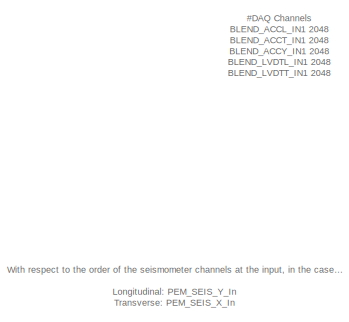
[diagram: IP_shutdown - part 1/5, top left region]
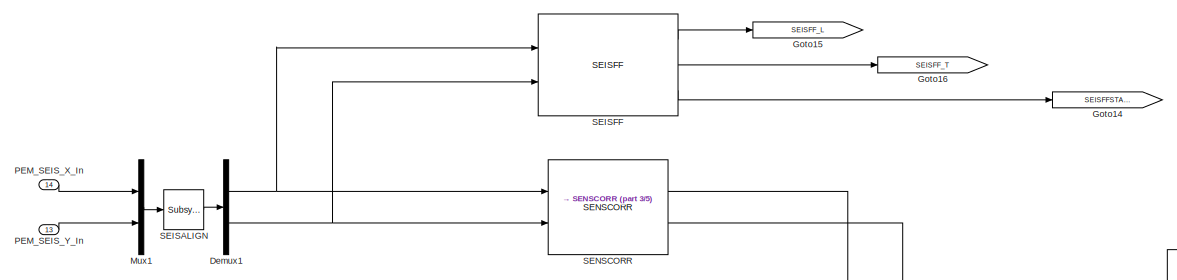
[diagram: IP_shutdown - part 2/5, top left region]
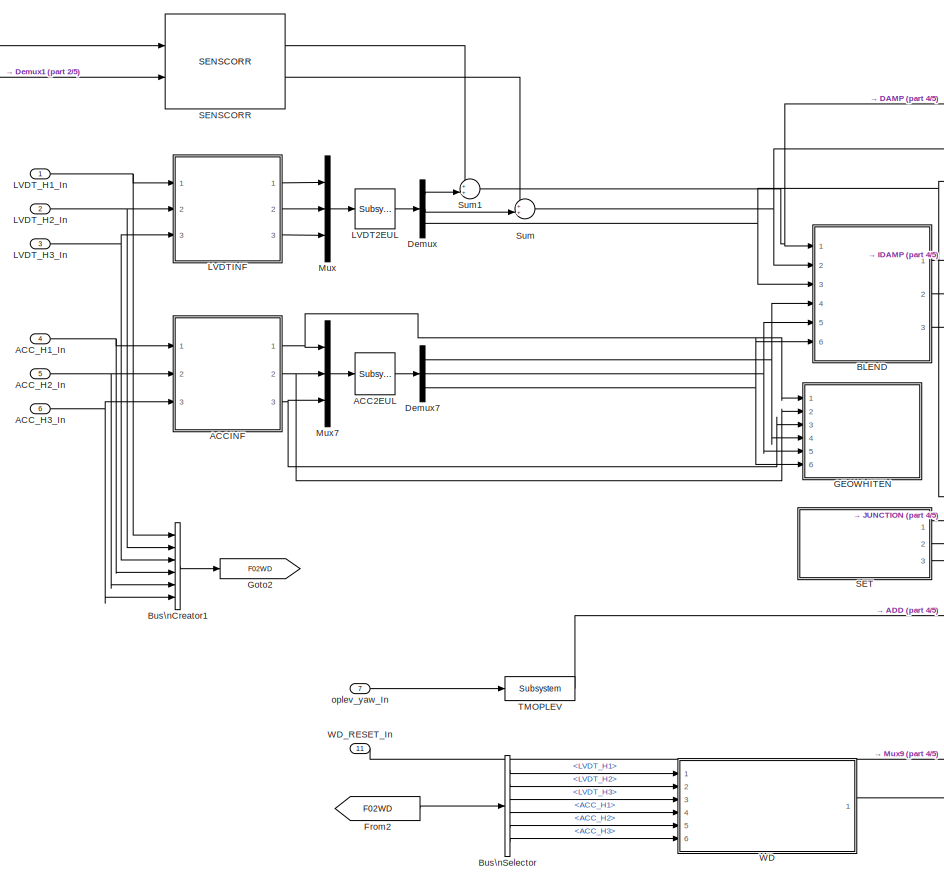
[diagram: IP_shutdown - part 3/5, central region]
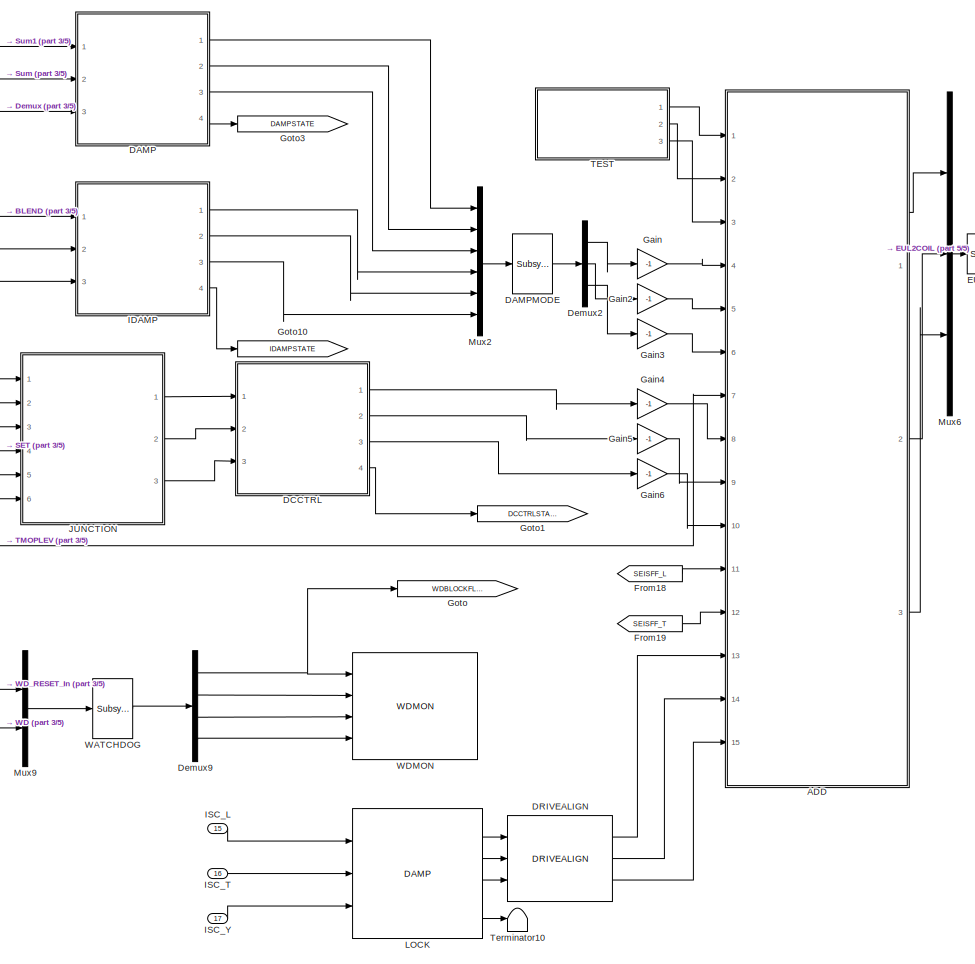
[diagram: IP_shutdown - part 4/5, middle right region]
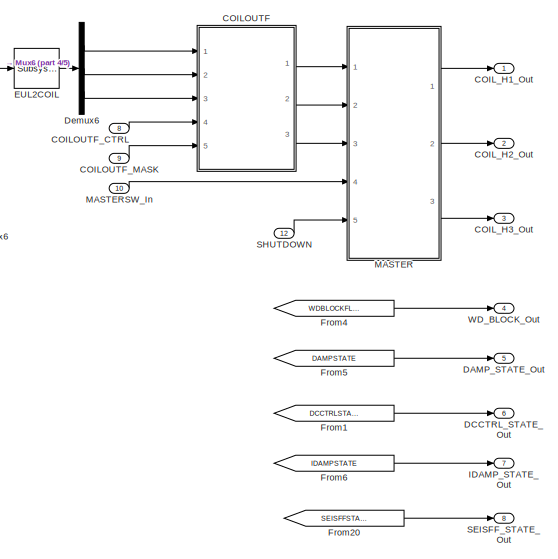
[diagram: IP_shutdown - part 5/5, middle right region]
BLOCK [SubSystem] IP_shutdown
  Ports = [17, 8]
  RequestExecContextInheritance = off
  SID = 585
  Variant = off
BLOCK [Reference] IP_shutdown/ACC2EUL  REF=cdsMuxMatrix/Subsystem
  AttributesFormatString = %<Tag>
  Description = ADL=SUS_INMATRIX.adl\nSCRIPT=generate_KisselButton.py 4 5 #CHANNEL# > #TARGET_DIR#/#FULL_PART_NAME#_KB.adl
  Ports = [1, 1]
  SID = 597
  SourceBlock = cdsMuxMatrix/Subsystem
  SourceType = SubSystem
  Tag = cdsMuxMatrix
BLOCK [SubSystem] IP_shutdown/ACCINF
  Ports = [3, 3]
  RequestExecContextInheritance = off
  SID = 598
  Variant = off
BLOCK [Reference] IP_shutdown/ACCINF/H1  REF=cdsFilt/Subsystem
  AttributesFormatString = %<Tag>
  Ports = [1, 1]
  SID = 602
  SourceBlock = cdsFilt/Subsystem
  SourceType = SubSystem
  Tag = cdsFilt
BLOCK [Inport] IP_shutdown/ACCINF/H1_In
  IconDisplay = Port number
  SID = 599
BLOCK [Outport] IP_shutdown/ACCINF/H1_Out
  IconDisplay = Port number
  SID = 605
BLOCK [Reference] IP_shutdown/ACCINF/H2  REF=cdsFilt/Subsystem
  AttributesFormatString = %<Tag>
  Ports = [1, 1]
  SID = 603
  SourceBlock = cdsFilt/Subsystem
  SourceType = SubSystem
  Tag = cdsFilt
BLOCK [Inport] IP_shutdown/ACCINF/H2_In
  IconDisplay = Port number
  Port = 2
  SID = 600
BLOCK [Outport] IP_shutdown/ACCINF/H2_Out
  IconDisplay = Port number
  Port = 2
  SID = 606
BLOCK [Reference] IP_shutdown/ACCINF/H3  REF=cdsFilt/Subsystem
  AttributesFormatString = %<Tag>
  Ports = [1, 1]
  SID = 604
  SourceBlock = cdsFilt/Subsystem
  SourceType = SubSystem
  Tag = cdsFilt
BLOCK [Inport] IP_shutdown/ACCINF/H3_In
  IconDisplay = Port number
  Port = 3
  SID = 601
BLOCK [Outport] IP_shutdown/ACCINF/H3_Out
  IconDisplay = Port number
  Port = 3
  SID = 607
BLOCK [Inport] IP_shutdown/ACC_H1_In
  IconDisplay = Port number
  Port = 4
  SID = 589
BLOCK [Inport] IP_shutdown/ACC_H2_In
  IconDisplay = Port number
  Port = 5
  SID = 590
BLOCK [Inport] IP_shutdown/ACC_H3_In
  IconDisplay = Port number
  Port = 6
  SID = 591
BLOCK [SubSystem] IP_shutdown/ADD
  Ports = [15, 3]
  RequestExecContextInheritance = off
  SID = 608
  Variant = off
BLOCK [Inport] IP_shutdown/ADD/DAMP_L_In
  IconDisplay = Port number
  Port = 4
  SID = 612
BLOCK [Inport] IP_shutdown/ADD/DAMP_T_In
  IconDisplay = Port number
  Port = 5
  SID = 613
BLOCK [Inport] IP_shutdown/ADD/DAMP_Y_In
  IconDisplay = Port number
  Port = 6
  SID = 614
BLOCK [Inport] IP_shutdown/ADD/DCCTRL_L_In
  IconDisplay = Port number
  Port = 8
  SID = 616
BLOCK [Inport] IP_shutdown/ADD/DCCTRL_T_In\n
  IconDisplay = Port number
  Port = 9
  SID = 617
BLOCK [Inport] IP_shutdown/ADD/DCCTRL_Y_In
  IconDisplay = Port number
  Port = 10
  SID = 618
BLOCK [From] IP_shutdown/ADD/Fro
  CloseFcn = tagdialog Close
  GotoTag = TEST_Y
  SID = 619
BLOCK [From] IP_shutdown/ADD/From10
  CloseFcn = tagdialog Close
  GotoTag = DAMP_Y
  SID = 622
BLOCK [From] IP_shutdown/ADD/From11
  CloseFcn = tagdialog Close
  GotoTag = SEISFF_L
  SID = 1015
BLOCK [From] IP_shutdown/ADD/From12
  CloseFcn = tagdialog Close
  GotoTag = SEISFF_T
  SID = 1016
BLOCK [From] IP_shutdown/ADD/From17
  CloseFcn = tagdialog Close
  GotoTag = DAMP_T
  SID = 623
BLOCK [From] IP_shutdown/ADD/From2
  CloseFcn = tagdialog Close
  GotoTag = DCCTRL_L
  SID = 624
BLOCK [From] IP_shutdown/ADD/From3
  CloseFcn = tagdialog Close
  GotoTag = DAMP_L
  SID = 625
BLOCK [From] IP_shutdown/ADD/From4
  CloseFcn = tagdialog Close
  GotoTag = DCCTRL_T
  SID = 626
BLOCK [From] IP_shutdown/ADD/From5
  CloseFcn = tagdialog Close
  GotoTag = DCCTRL_Y
  SID = 627
BLOCK [From] IP_shutdown/ADD/From\n
  CloseFcn = tagdialog Close
  GotoTag = TEST_L
  SID = 620
BLOCK [From] IP_shutdown/ADD/From\n1
  CloseFcn = tagdialog Close
  GotoTag = TEST_T
  SID = 621
BLOCK [Goto] IP_shutdown/ADD/Goto1
  GotoTag = DCCTRL_L
  SID = 628
BLOCK [Goto] IP_shutdown/ADD/Goto10
  GotoTag = SEISFF_L
  SID = 1013
BLOCK [Goto] IP_shutdown/ADD/Goto11
  GotoTag = SEISFF_T
  SID = 1014
BLOCK [Goto] IP_shutdown/ADD/Goto12
  GotoTag = DAMP_L
  SID = 629
BLOCK [Goto] IP_shutdown/ADD/Goto14
  GotoTag = DAMP_Y
  SID = 630
BLOCK [Goto] IP_shutdown/ADD/Goto15
  GotoTag = DAMP_T
  SID = 631
BLOCK [Goto] IP_shutdown/ADD/Goto2
  GotoTag = DCCTRL_Y
  SID = 632
BLOCK [Goto] IP_shutdown/ADD/Goto3
  GotoTag = TEST_L
  SID = 633
BLOCK [Goto] IP_shutdown/ADD/Goto4
  GotoTag = DCCTRL_T
  SID = 634
BLOCK [Goto] IP_shutdown/ADD/Goto5
  GotoTag = TEST_Y
  SID = 635
BLOCK [Goto] IP_shutdown/ADD/Goto6
  GotoTag = TEST_T
  SID = 636
BLOCK [Inport] IP_shutdown/ADD/ISC_L
  IconDisplay = Port number
  Port = 13
  SID = 1040
BLOCK [Inport] IP_shutdown/ADD/ISC_T
  IconDisplay = Port number
  Port = 14
  SID = 1041
BLOCK [Outport] IP_shutdown/ADD/LONG_MAIN_Out
  IconDisplay = Port number
  SID = 640
BLOCK [Inport] IP_shutdown/ADD/SEISFF_L_In
  IconDisplay = Port number
  Port = 11
  SID = 1011
BLOCK [Inport] IP_shutdown/ADD/SEISFF_T_In
  IconDisplay = Port number
  Port = 12
  SID = 1012
BLOCK [Sum] IP_shutdown/ADD/Sum1
  InputSameDT = off
  Inputs = +++++
  OutDataTypeStr = Inherit: Inherit via internal rule
  Ports = [5, 1]
  SID = 637
  SaturateOnIntegerOverflow = off
BLOCK [Sum] IP_shutdown/ADD/Sum2
  InputSameDT = off
  Inputs = +++++
  OutDataTypeStr = Inherit: Inherit via internal rule
  Ports = [5, 1]
  SID = 638
  SaturateOnIntegerOverflow = off
BLOCK [Sum] IP_shutdown/ADD/Sum3
  InputSameDT = off
  Inputs = +++++
  OutDataTypeStr = Inherit: Inherit via internal rule
  Ports = [5, 1]
  SID = 639
  SaturateOnIntegerOverflow = off
BLOCK [Inport] IP_shutdown/ADD/TEST_L_In
  IconDisplay = Port number
  SID = 609
BLOCK [Inport] IP_shutdown/ADD/TEST_T_In
  IconDisplay = Port number
  Port = 2
  SID = 610
BLOCK [Inport] IP_shutdown/ADD/TEST_Y
  IconDisplay = Port number
  Port = 15
  SID = 1042
BLOCK [Inport] IP_shutdown/ADD/TEST_Y_In
  IconDisplay = Port number
  Port = 3
  SID = 611
BLOCK [Outport] IP_shutdown/ADD/TRANS_MAIN_Out
  IconDisplay = Port number
  Port = 2
  SID = 641
BLOCK [Outport] IP_shutdown/ADD/YAW_MAIN_Out
  IconDisplay = Port number
  Port = 3
  SID = 642
BLOCK [Inport] IP_shutdown/ADD/oplev_Y_In
  IconDisplay = Port number
  Port = 7
  SID = 615
BLOCK [SubSystem] IP_shutdown/BLEND
  Ports = [6, 3]
  RequestExecContextInheritance = off
  SID = 643
  Variant = off
BLOCK [Reference] IP_shutdown/BLEND/ACCL  REF=cdsFiltCtrl/IIR FM with control
  AttributesFormatString = %<Tag>
  Ports = [3, 2]
  SID = 650
  SourceBlock = cdsFiltCtrl/IIR FM with control
  SourceType = SubSystem
  Tag = cdsFiltCtrl
BLOCK [Reference] IP_shutdown/BLEND/ACCT  REF=cdsFiltCtrl/IIR FM with control
  AttributesFormatString = %<Tag>
  Ports = [3, 2]
  SID = 651
  SourceBlock = cdsFiltCtrl/IIR FM with control
  SourceType = SubSystem
  Tag = cdsFiltCtrl
BLOCK [Reference] IP_shutdown/BLEND/ACCY  REF=cdsFiltCtrl/IIR FM with control
  AttributesFormatString = %<Tag>
  Ports = [3, 2]
  SID = 652
  SourceBlock = cdsFiltCtrl/IIR FM with control
  SourceType = SubSystem
  Tag = cdsFiltCtrl
BLOCK [Inport] IP_shutdown/BLEND/ACC_L_In
  IconDisplay = Port number
  Port = 4
  SID = 647
BLOCK [Inport] IP_shutdown/BLEND/ACC_T_In
  IconDisplay = Port number
  Port = 5
  SID = 648
BLOCK [Inport] IP_shutdown/BLEND/ACC_Y_IN
  IconDisplay = Port number
  Port = 6
  SID = 649
BLOCK [From] IP_shutdown/BLEND/From1
  CloseFcn = tagdialog Close
  GotoTag = LVDT_T
  SID = 653
BLOCK [From] IP_shutdown/BLEND/From2
  CloseFcn = tagdialog Close
  GotoTag = LVDT_Y
  SID = 654
BLOCK [From] IP_shutdown/BLEND/From3
  CloseFcn = tagdialog Close
  GotoTag = LVDT_L
  SID = 655
BLOCK [From] IP_shutdown/BLEND/From4
  CloseFcn = tagdialog Close
  GotoTag = ACC_L
  SID = 656
BLOCK [From] IP_shutdown/BLEND/From5
  CloseFcn = tagdialog Close
  GotoTag = ACC_T
  SID = 657
BLOCK [From] IP_shutdown/BLEND/From6
  CloseFcn = tagdialog Close
  GotoTag = ACC_Y
  SID = 658
BLOCK [Goto] IP_shutdown/BLEND/Goto1
  GotoTag = LVDT_T
  SID = 659
BLOCK [Goto] IP_shutdown/BLEND/Goto2
  GotoTag = LVDT_L
  SID = 660
BLOCK [Goto] IP_shutdown/BLEND/Goto3
  GotoTag = LVDT_Y
  SID = 661
BLOCK [Goto] IP_shutdown/BLEND/Goto4
  GotoTag = ACC_T
  SID = 662
BLOCK [Goto] IP_shutdown/BLEND/Goto5
  GotoTag = ACC_L
  SID = 663
BLOCK [Goto] IP_shutdown/BLEND/Goto6
  GotoTag = ACC_Y
  SID = 664
BLOCK [Ground] IP_shutdown/BLEND/Ground1
  SID = 665
BLOCK [Ground] IP_shutdown/BLEND/Ground2
  SID = 666
BLOCK [Ground] IP_shutdown/BLEND/Ground3
  SID = 667
BLOCK [Ground] IP_shutdown/BLEND/Ground4
  SID = 668
BLOCK [Ground] IP_shutdown/BLEND/Ground5
  SID = 669
BLOCK [Ground] IP_shutdown/BLEND/Ground6
  SID = 670
BLOCK [Outport] IP_shutdown/BLEND/LONG_Out
  IconDisplay = Port number
  SID = 683
BLOCK [Reference] IP_shutdown/BLEND/LVDTL  REF=cdsFiltCtrl/IIR FM with control
  AttributesFormatString = %<Tag>
  Ports = [3, 2]
  SID = 671
  SourceBlock = cdsFiltCtrl/IIR FM with control
  SourceType = SubSystem
  Tag = cdsFiltCtrl
BLOCK [Reference] IP_shutdown/BLEND/LVDTT  REF=cdsFiltCtrl/IIR FM with control
  AttributesFormatString = %<Tag>
  Ports = [3, 2]
  SID = 672
  SourceBlock = cdsFiltCtrl/IIR FM with control
  SourceType = SubSystem
  Tag = cdsFiltCtrl
BLOCK [Reference] IP_shutdown/BLEND/LVDTY  REF=cdsFiltCtrl/IIR FM with control
  AttributesFormatString = %<Tag>
  Ports = [3, 2]
  SID = 673
  SourceBlock = cdsFiltCtrl/IIR FM with control
  SourceType = SubSystem
  Tag = cdsFiltCtrl
BLOCK [Inport] IP_shutdown/BLEND/LVDT_L_In
  IconDisplay = Port number
  SID = 644
BLOCK [Inport] IP_shutdown/BLEND/LVDT_T_In
  IconDisplay = Port number
  Port = 2
  SID = 645
BLOCK [Inport] IP_shutdown/BLEND/LVDT_Y_In
  IconDisplay = Port number
  Port = 3
  SID = 646
BLOCK [Sum] IP_shutdown/BLEND/Sum
  InputSameDT = off
  OutDataTypeStr = Inherit: Inherit via internal rule
  Ports = [2, 1]
  SID = 674
  SaturateOnIntegerOverflow = off
BLOCK [Sum] IP_shutdown/BLEND/Sum1
  InputSameDT = off
  OutDataTypeStr = Inherit: Inherit via internal rule
  Ports = [2, 1]
  SID = 675
  SaturateOnIntegerOverflow = off
BLOCK [Sum] IP_shutdown/BLEND/Sum2
  InputSameDT = off
  OutDataTypeStr = Inherit: Inherit via internal rule
  Ports = [2, 1]
  SID = 676
  SaturateOnIntegerOverflow = off
BLOCK [Outport] IP_shutdown/BLEND/TRANS_Out
  IconDisplay = Port number
  Port = 2
  SID = 684
BLOCK [Terminator] IP_shutdown/BLEND/Terminator1
  SID = 677
BLOCK [Terminator] IP_shutdown/BLEND/Terminator2
  SID = 678
BLOCK [Terminator] IP_shutdown/BLEND/Terminator3
  SID = 679
BLOCK [Terminator] IP_shutdown/BLEND/Terminator4
  SID = 680
BLOCK [Terminator] IP_shutdown/BLEND/Terminator5
  SID = 681
BLOCK [Terminator] IP_shutdown/BLEND/Terminator6
  SID = 682
BLOCK [Outport] IP_shutdown/BLEND/YAW_Out
  IconDisplay = Port number
  Port = 3
  SID = 685
BLOCK [BusCreator] IP_shutdown/Bus\nCreator1
  DisplayOption = bar
  InheritFromInputs = on
  Inputs = 'LVDT_H1','LVDT_H2','LVDT_H3','ACC_H1','ACC_H2','ACC_H3'
  Ports = [6, 1]
  SID = 686
BLOCK [BusSelector] IP_shutdown/Bus\nSelector
  OutputSignals = LVDT_H1,LVDT_H2,LVDT_H3,ACC_H1,ACC_H2,ACC_H3
  Ports = [1, 6]
  SID = 687
BLOCK [SubSystem] IP_shutdown/COILOUTF
  Ports = [5, 3]
  RequestExecContextInheritance = off
  SID = 688
  Variant = off
BLOCK [Inport] IP_shutdown/COILOUTF/Control
  IconDisplay = Port number
  Port = 4
  SID = 692
BLOCK [Reference] IP_shutdown/COILOUTF/H1  REF=cdsFiltCtrl/IIR FM with control
  AttributesFormatString = %<Tag>
  Ports = [3, 2]
  SID = 694
  SourceBlock = cdsFiltCtrl/IIR FM with control
  SourceType = SubSystem
  Tag = cdsFiltCtrl
BLOCK [Inport] IP_shutdown/COILOUTF/H1_IN
  IconDisplay = Port number
  SID = 689
BLOCK [Outport] IP_shutdown/COILOUTF/H1_Out
  IconDisplay = Port number
  SID = 700
BLOCK [Reference] IP_shutdown/COILOUTF/H2  REF=cdsFiltCtrl/IIR FM with control
  AttributesFormatString = %<Tag>
  Ports = [3, 2]
  SID = 695
  SourceBlock = cdsFiltCtrl/IIR FM with control
  SourceType = SubSystem
  Tag = cdsFiltCtrl
BLOCK [Inport] IP_shutdown/COILOUTF/H2_IN
  IconDisplay = Port number
  Port = 2
  SID = 690
BLOCK [Outport] IP_shutdown/COILOUTF/H2_Out
  IconDisplay = Port number
  Port = 2
  SID = 701
BLOCK [Reference] IP_shutdown/COILOUTF/H3  REF=cdsFiltCtrl/IIR FM with control
  AttributesFormatString = %<Tag>
  Ports = [3, 2]
  SID = 696
  SourceBlock = cdsFiltCtrl/IIR FM with control
  SourceType = SubSystem
  Tag = cdsFiltCtrl
BLOCK [Inport] IP_shutdown/COILOUTF/H3_IN
  IconDisplay = Port number
  Port = 3
  SID = 691
BLOCK [Outport] IP_shutdown/COILOUTF/H3_Out
  IconDisplay = Port number
  Port = 3
  SID = 702
BLOCK [Inport] IP_shutdown/COILOUTF/Mask
  IconDisplay = Port number
  Port = 5
  SID = 693
BLOCK [Terminator] IP_shutdown/COILOUTF/Terminator1
  SID = 697
BLOCK [Terminator] IP_shutdown/COILOUTF/Terminator2
  SID = 698
BLOCK [Terminator] IP_shutdown/COILOUTF/Terminator3
  SID = 699
BLOCK [Inport] IP_shutdown/COILOUTF_CTRL
  IconDisplay = Port number
  Port = 8
  SID = 593
BLOCK [Inport] IP_shutdown/COILOUTF_MASK
  IconDisplay = Port number
  Port = 9
  SID = 594
BLOCK [Outport] IP_shutdown/COIL_H1_Out
  IconDisplay = Port number
  SID = 979
BLOCK [Outport] IP_shutdown/COIL_H2_Out
  IconDisplay = Port number
  Port = 2
  SID = 980
BLOCK [Outport] IP_shutdown/COIL_H3_Out
  IconDisplay = Port number
  Port = 3
  SID = 981
BLOCK [SubSystem] IP_shutdown/DAMP
  Ports = [3, 4]
  RequestExecContextInheritance = off
  SID = 703
  Variant = off
BLOCK [Outport] IP_shutdown/DAMP/DAMP_STATE_Out
  IconDisplay = Port number
  Port = 4
  SID = 733
BLOCK [Ground] IP_shutdown/DAMP/Ground12
  SID = 707
BLOCK [Ground] IP_shutdown/DAMP/Ground4
  SID = 708
BLOCK [Ground] IP_shutdown/DAMP/Ground5
  SID = 709
BLOCK [Ground] IP_shutdown/DAMP/Ground6
  SID = 710
BLOCK [Ground] IP_shutdown/DAMP/Ground8
  SID = 711
BLOCK [Ground] IP_shutdown/DAMP/Ground9
  SID = 712
BLOCK [Reference] IP_shutdown/DAMP/L  REF=cdsFiltCtrl/IIR FM with control
  AttributesFormatString = %<Tag>
  Ports = [3, 2]
  SID = 713
  SourceBlock = cdsFiltCtrl/IIR FM with control
  SourceType = SubSystem
  Tag = cdsFiltCtrl
BLOCK [Inport] IP_shutdown/DAMP/LONG_In
  IconDisplay = Port number
  SID = 704
BLOCK [Outport] IP_shutdown/DAMP/LONG_Out
  IconDisplay = Port number
  SID = 730
BLOCK [Reference] IP_shutdown/DAMP/L_STATE_GOOD  REF=cdsEpicsIn/Subsystem
  AttributesFormatString = %<Tag>
  Ports = [0, 1]
  SID = 714
  SourceBlock = cdsEpicsIn/Subsystem
  SourceType = SubSystem
  Tag = cdsEpicsIn
BLOCK [Reference] IP_shutdown/DAMP/L_STATE_NOW  REF=cdsEpicsOut/Subsystem
  AttributesFormatString = %<Tag>
  Ports = [1, 1]
  SID = 715
  SourceBlock = cdsEpicsOut/Subsystem
  SourceType = SubSystem
  Tag = cdsEpicsOutput
BLOCK [Reference] IP_shutdown/DAMP/L_STATE_OK  REF=cdsEpicsOut/Subsystem
  AttributesFormatString = %<Tag>
  Ports = [1, 1]
  SID = 716
  SourceBlock = cdsEpicsOut/Subsystem
  SourceType = SubSystem
  Tag = cdsEpicsOutput
BLOCK [RelationalOperator] IP_shutdown/DAMP/Operator
  InputSameDT = off
  Operator = ==
  OutDataTypeStr = boolean
  Ports = [2, 1]
  SID = 717
BLOCK [RelationalOperator] IP_shutdown/DAMP/Operator1
  InputSameDT = off
  Operator = ==
  OutDataTypeStr = boolean
  Ports = [2, 1]
  SID = 718
BLOCK [RelationalOperator] IP_shutdown/DAMP/Operator2
  InputSameDT = off
  Operator = ==
  OutDataTypeStr = boolean
  Ports = [2, 1]
  SID = 719
BLOCK [Product] IP_shutdown/DAMP/Product
  InputSameDT = off
  Inputs = 3
  OutDataTypeStr = Inherit: Inherit via internal rule
  Ports = [3, 1]
  SID = 720
  SaturateOnIntegerOverflow = off
BLOCK [Reference] IP_shutdown/DAMP/STATE_OK  REF=cdsEpicsOut/Subsystem
  AttributesFormatString = %<Tag>
  Ports = [1, 1]
  SID = 721
  SourceBlock = cdsEpicsOut/Subsystem
  SourceType = SubSystem
  Tag = cdsEpicsOutput
BLOCK [Reference] IP_shutdown/DAMP/T  REF=cdsFiltCtrl/IIR FM with control
  AttributesFormatString = %<Tag>
  Ports = [3, 2]
  SID = 722
  SourceBlock = cdsFiltCtrl/IIR FM with control
  SourceType = SubSystem
  Tag = cdsFiltCtrl
BLOCK [Inport] IP_shutdown/DAMP/TRANS_In
  IconDisplay = Port number
  Port = 2
  SID = 705
BLOCK [Outport] IP_shutdown/DAMP/TRANS_Out
  IconDisplay = Port number
  Port = 2
  SID = 731
BLOCK [Reference] IP_shutdown/DAMP/T_STATE_GOOD  REF=cdsEpicsIn/Subsystem
  AttributesFormatString = %<Tag>
  Ports = [0, 1]
  SID = 723
  SourceBlock = cdsEpicsIn/Subsystem
  SourceType = SubSystem
  Tag = cdsEpicsIn
BLOCK [Reference] IP_shutdown/DAMP/T_STATE_NOW  REF=cdsEpicsOut/Subsystem
  AttributesFormatString = %<Tag>
  Ports = [1, 1]
  SID = 724
  SourceBlock = cdsEpicsOut/Subsystem
  SourceType = SubSystem
  Tag = cdsEpicsOutput
BLOCK [Reference] IP_shutdown/DAMP/T_STATE_OK  REF=cdsEpicsOut/Subsystem
  AttributesFormatString = %<Tag>
  Ports = [1, 1]
  SID = 725
  SourceBlock = cdsEpicsOut/Subsystem
  SourceType = SubSystem
  Tag = cdsEpicsOutput
BLOCK [Reference] IP_shutdown/DAMP/V_STATE_OK  REF=cdsEpicsOut/Subsystem
  AttributesFormatString = %<Tag>
  Ports = [1, 1]
  SID = 726
  SourceBlock = cdsEpicsOut/Subsystem
  SourceType = SubSystem
  Tag = cdsEpicsOutput
BLOCK [Reference] IP_shutdown/DAMP/Y  REF=cdsFiltCtrl/IIR FM with control
  AttributesFormatString = %<Tag>
  Ports = [3, 2]
  SID = 727
  SourceBlock = cdsFiltCtrl/IIR FM with control
  SourceType = SubSystem
  Tag = cdsFiltCtrl
BLOCK [Inport] IP_shutdown/DAMP/YAW_In
  IconDisplay = Port number
  Port = 3
  SID = 706
BLOCK [Outport] IP_shutdown/DAMP/YAW_Out
  IconDisplay = Port number
  Port = 3
  SID = 732
BLOCK [Reference] IP_shutdown/DAMP/Y_STATE_GOOD  REF=cdsEpicsIn/Subsystem
  AttributesFormatString = %<Tag>
  Ports = [0, 1]
  SID = 728
  SourceBlock = cdsEpicsIn/Subsystem
  SourceType = SubSystem
  Tag = cdsEpicsIn
BLOCK [Reference] IP_shutdown/DAMP/Y_STATE_NOW  REF=cdsEpicsOut/Subsystem
  AttributesFormatString = %<Tag>
  Ports = [1, 1]
  SID = 729
  SourceBlock = cdsEpicsOut/Subsystem
  SourceType = SubSystem
  Tag = cdsEpicsOutput
BLOCK [Reference] IP_shutdown/DAMPMODE  REF=cdsRampMuxMatrix/Subsystem
  AttributesFormatString = %<Tag>
  Ports = [1, 1]
  SID = 738
  SourceBlock = cdsRampMuxMatrix/Subsystem
  SourceType = SubSystem
  Tag = cdsRampMuxMatrix
BLOCK [Outport] IP_shutdown/DAMP_STATE_Out
  IconDisplay = Port number
  Port = 5
  SID = 983
BLOCK [SubSystem] IP_shutdown/DCCTRL
  Ports = [3, 4]
  RequestExecContextInheritance = off
  SID = 739
  Variant = off
BLOCK [Outport] IP_shutdown/DCCTRL/DCCTRL_STATE_Out
  IconDisplay = Port number
  Port = 4
  SID = 769
BLOCK [Ground] IP_shutdown/DCCTRL/Ground12
  SID = 743
BLOCK [Ground] IP_shutdown/DCCTRL/Ground4
  SID = 744
BLOCK [Ground] IP_shutdown/DCCTRL/Ground5
  SID = 745
BLOCK [Ground] IP_shutdown/DCCTRL/Ground6
  SID = 746
BLOCK [Ground] IP_shutdown/DCCTRL/Ground8
  SID = 747
BLOCK [Ground] IP_shutdown/DCCTRL/Ground9
  SID = 748
BLOCK [Reference] IP_shutdown/DCCTRL/L  REF=cdsFiltCtrl/IIR FM with control
  AttributesFormatString = %<Tag>
  Ports = [3, 2]
  SID = 749
  SourceBlock = cdsFiltCtrl/IIR FM with control
  SourceType = SubSystem
  Tag = cdsFiltCtrl
BLOCK [Inport] IP_shutdown/DCCTRL/LONG_In
  IconDisplay = Port number
  SID = 740
BLOCK [Outport] IP_shutdown/DCCTRL/LONG_Out
  IconDisplay = Port number
  SID = 766
BLOCK [Reference] IP_shutdown/DCCTRL/L_STATE_GOOD  REF=cdsEpicsIn/Subsystem
  AttributesFormatString = %<Tag>
  Ports = [0, 1]
  SID = 750
  SourceBlock = cdsEpicsIn/Subsystem
  SourceType = SubSystem
  Tag = cdsEpicsIn
BLOCK [Reference] IP_shutdown/DCCTRL/L_STATE_NOW  REF=cdsEpicsOut/Subsystem
  AttributesFormatString = %<Tag>
  Ports = [1, 1]
  SID = 751
  SourceBlock = cdsEpicsOut/Subsystem
  SourceType = SubSystem
  Tag = cdsEpicsOutput
BLOCK [Reference] IP_shutdown/DCCTRL/L_STATE_OK  REF=cdsEpicsOut/Subsystem
  AttributesFormatString = %<Tag>
  Ports = [1, 1]
  SID = 752
  SourceBlock = cdsEpicsOut/Subsystem
  SourceType = SubSystem
  Tag = cdsEpicsOutput
BLOCK [RelationalOperator] IP_shutdown/DCCTRL/Operator
  InputSameDT = off
  Operator = ==
  OutDataTypeStr = boolean
  Ports = [2, 1]
  SID = 753
BLOCK [RelationalOperator] IP_shutdown/DCCTRL/Operator1
  InputSameDT = off
  Operator = ==
  OutDataTypeStr = boolean
  Ports = [2, 1]
  SID = 754
BLOCK [RelationalOperator] IP_shutdown/DCCTRL/Operator2
  InputSameDT = off
  Operator = ==
  OutDataTypeStr = boolean
  Ports = [2, 1]
  SID = 755
BLOCK [Product] IP_shutdown/DCCTRL/Product
  InputSameDT = off
  Inputs = 3
  OutDataTypeStr = Inherit: Inherit via internal rule
  Ports = [3, 1]
  SID = 756
  SaturateOnIntegerOverflow = off
BLOCK [Reference] IP_shutdown/DCCTRL/STATE_OK  REF=cdsEpicsOut/Subsystem
  AttributesFormatString = %<Tag>
  Ports = [1, 1]
  SID = 757
  SourceBlock = cdsEpicsOut/Subsystem
  SourceType = SubSystem
  Tag = cdsEpicsOutput
BLOCK [Reference] IP_shutdown/DCCTRL/T  REF=cdsFiltCtrl/IIR FM with control
  AttributesFormatString = %<Tag>
  Ports = [3, 2]
  SID = 758
  SourceBlock = cdsFiltCtrl/IIR FM with control
  SourceType = SubSystem
  Tag = cdsFiltCtrl
BLOCK [Inport] IP_shutdown/DCCTRL/TRANS_In
  IconDisplay = Port number
  Port = 2
  SID = 741
BLOCK [Outport] IP_shutdown/DCCTRL/TRANS_Out
  IconDisplay = Port number
  Port = 2
  SID = 767
BLOCK [Reference] IP_shutdown/DCCTRL/T_STATE_GOOD  REF=cdsEpicsIn/Subsystem
  AttributesFormatString = %<Tag>
  Ports = [0, 1]
  SID = 759
  SourceBlock = cdsEpicsIn/Subsystem
  SourceType = SubSystem
  Tag = cdsEpicsIn
BLOCK [Reference] IP_shutdown/DCCTRL/T_STATE_NOW  REF=cdsEpicsOut/Subsystem
  AttributesFormatString = %<Tag>
  Ports = [1, 1]
  SID = 760
  SourceBlock = cdsEpicsOut/Subsystem
  SourceType = SubSystem
  Tag = cdsEpicsOutput
BLOCK [Reference] IP_shutdown/DCCTRL/T_STATE_OK  REF=cdsEpicsOut/Subsystem
  AttributesFormatString = %<Tag>
  Ports = [1, 1]
  SID = 761
  SourceBlock = cdsEpicsOut/Subsystem
  SourceType = SubSystem
  Tag = cdsEpicsOutput
BLOCK [Reference] IP_shutdown/DCCTRL/V_STATE_OK  REF=cdsEpicsOut/Subsystem
  AttributesFormatString = %<Tag>
  Ports = [1, 1]
  SID = 762
  SourceBlock = cdsEpicsOut/Subsystem
  SourceType = SubSystem
  Tag = cdsEpicsOutput
BLOCK [Reference] IP_shutdown/DCCTRL/Y  REF=cdsFiltCtrl/IIR FM with control
  AttributesFormatString = %<Tag>
  Ports = [3, 2]
  SID = 763
  SourceBlock = cdsFiltCtrl/IIR FM with control
  SourceType = SubSystem
  Tag = cdsFiltCtrl
BLOCK [Inport] IP_shutdown/DCCTRL/YAW_In
  IconDisplay = Port number
  Port = 3
  SID = 742
BLOCK [Outport] IP_shutdown/DCCTRL/YAW_Out
  IconDisplay = Port number
  Port = 3
  SID = 768
BLOCK [Reference] IP_shutdown/DCCTRL/Y_STATE_GOOD  REF=cdsEpicsIn/Subsystem
  AttributesFormatString = %<Tag>
  Ports = [0, 1]
  SID = 764
  SourceBlock = cdsEpicsIn/Subsystem
  SourceType = SubSystem
  Tag = cdsEpicsIn
BLOCK [Reference] IP_shutdown/DCCTRL/Y_STATE_NOW  REF=cdsEpicsOut/Subsystem
  AttributesFormatString = %<Tag>
  Ports = [1, 1]
  SID = 765
  SourceBlock = cdsEpicsOut/Subsystem
  SourceType = SubSystem
  Tag = cdsEpicsOutput
BLOCK [Outport] IP_shutdown/DCCTRL_STATE_Out
  IconDisplay = Port number
  Port = 6
  SID = 984
BLOCK [Reference] IP_shutdown/DRIVEALIGN  REF=SIXOSEM_F_STAGE_MASTER/SIXOSEM_F_STAGE_MASTER_shutdown/DRIVEALIGN
  Ports = [3, 3]
  SID = 1035
  SourceBlock = SIXOSEM_F_STAGE_MASTER/SIXOSEM_F_STAGE_MASTER_shutdown/DRIVEALIGN
  SourceType = SubSystem
BLOCK [Demux] IP_shutdown/Demux
  DisplayOption = bar
  Outputs = 3
  Ports = [1, 3]
  SID = 774
BLOCK [Demux] IP_shutdown/Demux1
  DisplayOption = bar
  Outputs = 2
  Ports = [1, 2]
  SID = 991
BLOCK [Demux] IP_shutdown/Demux2
  DisplayOption = bar
  Outputs = 3
  Ports = [1, 3]
  SID = 775
BLOCK [Demux] IP_shutdown/Demux6
  DisplayOption = bar
  Outputs = 3
  Ports = [1, 3]
  SID = 776
BLOCK [Demux] IP_shutdown/Demux7
  DisplayOption = bar
  Outputs = 3
  Ports = [1, 3]
  SID = 777
BLOCK [Demux] IP_shutdown/Demux9
  DisplayOption = bar
  Ports = [1, 4]
  SID = 778
BLOCK [Reference] IP_shutdown/EUL2COIL  REF=cdsMuxMatrix/Subsystem
  AttributesFormatString = %<Tag>
  Description = ADL=SUS_INMATRIX.adl\nSCRIPT=generate_KisselButton.py 4 5 #CHANNEL# > #TARGET_DIR#/#FULL_PART_NAME#_KB.adl
  Ports = [1, 1]
  SID = 779
  SourceBlock = cdsMuxMatrix/Subsystem
  SourceType = SubSystem
  Tag = cdsMuxMatrix
BLOCK [From] IP_shutdown/From1
  CloseFcn = tagdialog Close
  GotoTag = DCCTRLSTATE
  SID = 781
BLOCK [From] IP_shutdown/From18
  GotoTag = SEISFF_L
  SID = 1019
BLOCK [From] IP_shutdown/From19
  GotoTag = SEISFF_T
  SID = 1020
BLOCK [From] IP_shutdown/From2
  CloseFcn = tagdialog Close
  GotoTag = F02WD
  SID = 790
BLOCK [From] IP_shutdown/From20
  CloseFcn = tagdialog Close
  GotoTag = SEISFFSTATE
  SID = 1021
BLOCK [From] IP_shutdown/From4
  CloseFcn = tagdialog Close
  GotoTag = WDBLOCKFLAG
  SID = 792
BLOCK [From] IP_shutdown/From5
  CloseFcn = tagdialog Close
  GotoTag = DAMPSTATE
  SID = 793
BLOCK [From] IP_shutdown/From6
  CloseFcn = tagdialog Close
  GotoTag = IDAMPSTATE
  SID = 794
BLOCK [SubSystem] IP_shutdown/GEOWHITEN
  Ports = [6]
  RequestExecContextInheritance = off
  SID = 798
  Variant = off
BLOCK [Reference] IP_shutdown/GEOWHITEN/H1  REF=cdsFilt/Subsystem
  AttributesFormatString = %<Tag>
  Ports = [1, 1]
  SID = 805
  SourceBlock = cdsFilt/Subsystem
  SourceType = SubSystem
  Tag = cdsFilt
BLOCK [Inport] IP_shutdown/GEOWHITEN/H1_In
  IconDisplay = Port number
  SID = 799
BLOCK [Reference] IP_shutdown/GEOWHITEN/H2  REF=cdsFilt/Subsystem
  AttributesFormatString = %<Tag>
  Ports = [1, 1]
  SID = 806
  SourceBlock = cdsFilt/Subsystem
  SourceType = SubSystem
  Tag = cdsFilt
BLOCK [Inport] IP_shutdown/GEOWHITEN/H2_In
  IconDisplay = Port number
  Port = 2
  SID = 800
BLOCK [Reference] IP_shutdown/GEOWHITEN/H3  REF=cdsFilt/Subsystem
  AttributesFormatString = %<Tag>
  Ports = [1, 1]
  SID = 807
  SourceBlock = cdsFilt/Subsystem
  SourceType = SubSystem
  Tag = cdsFilt
BLOCK [Inport] IP_shutdown/GEOWHITEN/H3_In
  IconDisplay = Port number
  Port = 3
  SID = 801
BLOCK [Reference] IP_shutdown/GEOWHITEN/L  REF=cdsFilt/Subsystem
  AttributesFormatString = %<Tag>
  Ports = [1, 1]
  SID = 808
  SourceBlock = cdsFilt/Subsystem
  SourceType = SubSystem
  Tag = cdsFilt
BLOCK [Inport] IP_shutdown/GEOWHITEN/L_In
  IconDisplay = Port number
  Port = 4
  SID = 802
BLOCK [Reference] IP_shutdown/GEOWHITEN/T  REF=cdsFilt/Subsystem
  AttributesFormatString = %<Tag>
  Ports = [1, 1]
  SID = 809
  SourceBlock = cdsFilt/Subsystem
  SourceType = SubSystem
  Tag = cdsFilt
BLOCK [Inport] IP_shutdown/GEOWHITEN/T_In
  IconDisplay = Port number
  Port = 5
  SID = 803
BLOCK [Terminator] IP_shutdown/GEOWHITEN/Terminator
  SID = 810
BLOCK [Terminator] IP_shutdown/GEOWHITEN/Terminator1
  SID = 811
BLOCK [Terminator] IP_shutdown/GEOWHITEN/Terminator2
  SID = 812
BLOCK [Terminator] IP_shutdown/GEOWHITEN/Terminator3
  SID = 813
BLOCK [Terminator] IP_shutdown/GEOWHITEN/Terminator4
  SID = 814
BLOCK [Terminator] IP_shutdown/GEOWHITEN/Terminator5
  SID = 815
BLOCK [Reference] IP_shutdown/GEOWHITEN/Y  REF=cdsFilt/Subsystem
  AttributesFormatString = %<Tag>
  Ports = [1, 1]
  SID = 816
  SourceBlock = cdsFilt/Subsystem
  SourceType = SubSystem
  Tag = cdsFilt
BLOCK [Inport] IP_shutdown/GEOWHITEN/Y_In
  IconDisplay = Port number
  Port = 6
  SID = 804
BLOCK [Gain] IP_shutdown/Gain
  Gain = -1
  OutDataTypeStr = Inherit: Inherit via internal rule
  ParamDataTypeStr = Inherit: Inherit via internal rule
  SID = 817
  SaturateOnIntegerOverflow = off
BLOCK [Gain] IP_shutdown/Gain2
  Gain = -1
  OutDataTypeStr = Inherit: Inherit via internal rule
  ParamDataTypeStr = Inherit: Inherit via internal rule
  SID = 818
  SaturateOnIntegerOverflow = off
BLOCK [Gain] IP_shutdown/Gain3
  Gain = -1
  OutDataTypeStr = Inherit: Inherit via internal rule
  ParamDataTypeStr = Inherit: Inherit via internal rule
  SID = 819
  SaturateOnIntegerOverflow = off
BLOCK [Gain] IP_shutdown/Gain4
  Gain = -1
  OutDataTypeStr = Inherit: Inherit via internal rule
  ParamDataTypeStr = Inherit: Inherit via internal rule
  SID = 820
  SaturateOnIntegerOverflow = off
BLOCK [Gain] IP_shutdown/Gain5
  Gain = -1
  OutDataTypeStr = Inherit: Inherit via internal rule
  ParamDataTypeStr = Inherit: Inherit via internal rule
  SID = 821
  SaturateOnIntegerOverflow = off
BLOCK [Gain] IP_shutdown/Gain6
  Gain = -1
  OutDataTypeStr = Inherit: Inherit via internal rule
  ParamDataTypeStr = Inherit: Inherit via internal rule
  SID = 822
  SaturateOnIntegerOverflow = off
BLOCK [Goto] IP_shutdown/Goto
  GotoTag = WDBLOCKFLAG
  SID = 823
BLOCK [Goto] IP_shutdown/Goto1
  GotoTag = DCCTRLSTATE
  SID = 824
BLOCK [Goto] IP_shutdown/Goto10
  GotoTag = IDAMPSTATE
  SID = 825
BLOCK [Goto] IP_shutdown/Goto14
  GotoTag = SEISFFSTATE
  SID = 998
BLOCK [Goto] IP_shutdown/Goto15
  GotoTag = SEISFF_L
  SID = 1017
BLOCK [Goto] IP_shutdown/Goto16
  GotoTag = SEISFF_T
  SID = 1018
BLOCK [Goto] IP_shutdown/Goto2
  GotoTag = F02WD
  SID = 829
BLOCK [Goto] IP_shutdown/Goto3
  GotoTag = DAMPSTATE
  SID = 830
BLOCK [SubSystem] IP_shutdown/IDAMP
  Ports = [3, 4]
  RequestExecContextInheritance = off
  SID = 837
  Variant = off
BLOCK [Ground] IP_shutdown/IDAMP/Ground12
  SID = 841
BLOCK [Ground] IP_shutdown/IDAMP/Ground4
  SID = 842
BLOCK [Ground] IP_shutdown/IDAMP/Ground5
  SID = 843
BLOCK [Ground] IP_shutdown/IDAMP/Ground6
  SID = 844
BLOCK [Ground] IP_shutdown/IDAMP/Ground8
  SID = 845
BLOCK [Ground] IP_shutdown/IDAMP/Ground9
  SID = 846
BLOCK [Outport] IP_shutdown/IDAMP/IDAMP_STATE_Out
  IconDisplay = Port number
  Port = 4
  SID = 867
BLOCK [Reference] IP_shutdown/IDAMP/L  REF=cdsFiltCtrl/IIR FM with control
  AttributesFormatString = %<Tag>
  Ports = [3, 2]
  SID = 847
  SourceBlock = cdsFiltCtrl/IIR FM with control
  SourceType = SubSystem
  Tag = cdsFiltCtrl
BLOCK [Inport] IP_shutdown/IDAMP/LONG_In
  IconDisplay = Port number
  SID = 838
BLOCK [Outport] IP_shutdown/IDAMP/LONG_Out
  IconDisplay = Port number
  SID = 864
BLOCK [Reference] IP_shutdown/IDAMP/L_STATE_GOOD  REF=cdsEpicsIn/Subsystem
  AttributesFormatString = %<Tag>
  Ports = [0, 1]
  SID = 848
  SourceBlock = cdsEpicsIn/Subsystem
  SourceType = SubSystem
  Tag = cdsEpicsIn
BLOCK [Reference] IP_shutdown/IDAMP/L_STATE_NOW  REF=cdsEpicsOut/Subsystem
  AttributesFormatString = %<Tag>
  Ports = [1, 1]
  SID = 849
  SourceBlock = cdsEpicsOut/Subsystem
  SourceType = SubSystem
  Tag = cdsEpicsOutput
BLOCK [Reference] IP_shutdown/IDAMP/L_STATE_OK  REF=cdsEpicsOut/Subsystem
  AttributesFormatString = %<Tag>
  Ports = [1, 1]
  SID = 850
  SourceBlock = cdsEpicsOut/Subsystem
  SourceType = SubSystem
  Tag = cdsEpicsOutput
BLOCK [RelationalOperator] IP_shutdown/IDAMP/Operator
  InputSameDT = off
  Operator = ==
  OutDataTypeStr = boolean
  Ports = [2, 1]
  SID = 851
BLOCK [RelationalOperator] IP_shutdown/IDAMP/Operator1
  InputSameDT = off
  Operator = ==
  OutDataTypeStr = boolean
  Ports = [2, 1]
  SID = 852
BLOCK [RelationalOperator] IP_shutdown/IDAMP/Operator2
  InputSameDT = off
  Operator = ==
  OutDataTypeStr = boolean
  Ports = [2, 1]
  SID = 853
BLOCK [Product] IP_shutdown/IDAMP/Product
  InputSameDT = off
  Inputs = 3
  OutDataTypeStr = Inherit: Inherit via internal rule
  Ports = [3, 1]
  SID = 854
  SaturateOnIntegerOverflow = off
BLOCK [Reference] IP_shutdown/IDAMP/STATE_OK  REF=cdsEpicsOut/Subsystem
  AttributesFormatString = %<Tag>
  Ports = [1, 1]
  SID = 855
  SourceBlock = cdsEpicsOut/Subsystem
  SourceType = SubSystem
  Tag = cdsEpicsOutput
BLOCK [Reference] IP_shutdown/IDAMP/T  REF=cdsFiltCtrl/IIR FM with control
  AttributesFormatString = %<Tag>
  Ports = [3, 2]
  SID = 856
  SourceBlock = cdsFiltCtrl/IIR FM with control
  SourceType = SubSystem
  Tag = cdsFiltCtrl
BLOCK [Inport] IP_shutdown/IDAMP/TRANS_In
  IconDisplay = Port number
  Port = 2
  SID = 839
BLOCK [Outport] IP_shutdown/IDAMP/TRANS_Out
  IconDisplay = Port number
  Port = 2
  SID = 865
BLOCK [Reference] IP_shutdown/IDAMP/T_STATE_GOOD  REF=cdsEpicsIn/Subsystem
  AttributesFormatString = %<Tag>
  Ports = [0, 1]
  SID = 857
  SourceBlock = cdsEpicsIn/Subsystem
  SourceType = SubSystem
  Tag = cdsEpicsIn
BLOCK [Reference] IP_shutdown/IDAMP/T_STATE_NOW  REF=cdsEpicsOut/Subsystem
  AttributesFormatString = %<Tag>
  Ports = [1, 1]
  SID = 858
  SourceBlock = cdsEpicsOut/Subsystem
  SourceType = SubSystem
  Tag = cdsEpicsOutput
BLOCK [Reference] IP_shutdown/IDAMP/T_STATE_OK  REF=cdsEpicsOut/Subsystem
  AttributesFormatString = %<Tag>
  Ports = [1, 1]
  SID = 859
  SourceBlock = cdsEpicsOut/Subsystem
  SourceType = SubSystem
  Tag = cdsEpicsOutput
BLOCK [Reference] IP_shutdown/IDAMP/V_STATE_OK  REF=cdsEpicsOut/Subsystem
  AttributesFormatString = %<Tag>
  Ports = [1, 1]
  SID = 860
  SourceBlock = cdsEpicsOut/Subsystem
  SourceType = SubSystem
  Tag = cdsEpicsOutput
BLOCK [Reference] IP_shutdown/IDAMP/Y  REF=cdsFiltCtrl/IIR FM with control
  AttributesFormatString = %<Tag>
  Ports = [3, 2]
  SID = 861
  SourceBlock = cdsFiltCtrl/IIR FM with control
  SourceType = SubSystem
  Tag = cdsFiltCtrl
BLOCK [Inport] IP_shutdown/IDAMP/YAW_In
  IconDisplay = Port number
  Port = 3
  SID = 840
BLOCK [Outport] IP_shutdown/IDAMP/YAW_Out
  IconDisplay = Port number
  Port = 3
  SID = 866
BLOCK [Reference] IP_shutdown/IDAMP/Y_STATE_GOOD  REF=cdsEpicsIn/Subsystem
  AttributesFormatString = %<Tag>
  Ports = [0, 1]
  SID = 862
  SourceBlock = cdsEpicsIn/Subsystem
  SourceType = SubSystem
  Tag = cdsEpicsIn
BLOCK [Reference] IP_shutdown/IDAMP/Y_STATE_NOW  REF=cdsEpicsOut/Subsystem
  AttributesFormatString = %<Tag>
  Ports = [1, 1]
  SID = 863
  SourceBlock = cdsEpicsOut/Subsystem
  SourceType = SubSystem
  Tag = cdsEpicsOutput
BLOCK [Outport] IP_shutdown/IDAMP_STATE_Out
  IconDisplay = Port number
  Port = 7
  SID = 985
BLOCK [Inport] IP_shutdown/ISC_L
  IconDisplay = Port number
  Port = 15
  SID = 1036
BLOCK [Inport] IP_shutdown/ISC_T
  IconDisplay = Port number
  Port = 16
  SID = 1037
BLOCK [Inport] IP_shutdown/ISC_Y
  IconDisplay = Port number
  Port = 17
  SID = 1038
BLOCK [SubSystem] IP_shutdown/JUNCTION
  Ports = [6, 3]
  RequestExecContextInheritance = off
  SID = 872
  Variant = off
BLOCK [From] IP_shutdown/JUNCTION/From
  GotoTag = SET_L
  SID = 879
BLOCK [From] IP_shutdown/JUNCTION/From1
  GotoTag = LVDT_L
  SID = 880
BLOCK [From] IP_shutdown/JUNCTION/From2
  GotoTag = SET_T
  SID = 881
BLOCK [From] IP_shutdown/JUNCTION/From3
  GotoTag = LVDT_T
  SID = 882
BLOCK [From] IP_shutdown/JUNCTION/From4
  GotoTag = SET_Y
  SID = 883
BLOCK [From] IP_shutdown/JUNCTION/From5
  GotoTag = LVDT_Y
  SID = 884
BLOCK [Goto] IP_shutdown/JUNCTION/Goto
  GotoTag = SET_L
  SID = 885
BLOCK [Goto] IP_shutdown/JUNCTION/Goto1
  GotoTag = SET_T
  SID = 886
BLOCK [Goto] IP_shutdown/JUNCTION/Goto2
  GotoTag = SET_Y
  SID = 887
BLOCK [Goto] IP_shutdown/JUNCTION/Goto3
  GotoTag = LVDT_L
  SID = 888
BLOCK [Goto] IP_shutdown/JUNCTION/Goto4
  GotoTag = LVDT_T
  SID = 889
BLOCK [Goto] IP_shutdown/JUNCTION/Goto5
  GotoTag = LVDT_Y
  SID = 890
BLOCK [Outport] IP_shutdown/JUNCTION/LONG_ERROR_Out
  IconDisplay = Port number
  SID = 894
BLOCK [Inport] IP_shutdown/JUNCTION/LVDT_L_In
  IconDisplay = Port number
  SID = 873
BLOCK [Inport] IP_shutdown/JUNCTION/LVDT_T_In
  IconDisplay = Port number
  Port = 2
  SID = 874
BLOCK [Inport] IP_shutdown/JUNCTION/LVDT_Y_In
  IconDisplay = Port number
  Port = 3
  SID = 875
BLOCK [Inport] IP_shutdown/JUNCTION/SET_L_In
  IconDisplay = Port number
  Port = 4
  SID = 876
BLOCK [Inport] IP_shutdown/JUNCTION/SET_T_In
  IconDisplay = Port number
  Port = 5
  SID = 877
BLOCK [Inport] IP_shutdown/JUNCTION/SET_Y_In
  IconDisplay = Port number
  Port = 6
  SID = 878
BLOCK [Sum] IP_shutdown/JUNCTION/Sum
  IconShape = round
  InputSameDT = off
  Inputs = |-+
  OutDataTypeStr = Inherit: Inherit via internal rule
  Ports = [2, 1]
  SID = 891
  SaturateOnIntegerOverflow = off
BLOCK [Sum] IP_shutdown/JUNCTION/Sum1
  IconShape = round
  InputSameDT = off
  Inputs = |-+
  OutDataTypeStr = Inherit: Inherit via internal rule
  Ports = [2, 1]
  SID = 892
  SaturateOnIntegerOverflow = off
BLOCK [Sum] IP_shutdown/JUNCTION/Sum2
  IconShape = round
  InputSameDT = off
  Inputs = |-+
  OutDataTypeStr = Inherit: Inherit via internal rule
  Ports = [2, 1]
  SID = 893
  SaturateOnIntegerOverflow = off
BLOCK [Outport] IP_shutdown/JUNCTION/TRANS_ERROR_Out
  IconDisplay = Port number
  Port = 2
  SID = 895
BLOCK [Outport] IP_shutdown/JUNCTION/YAW_ERROR_Out
  IconDisplay = Port number
  Port = 3
  SID = 896
BLOCK [Reference] IP_shutdown/LOCK  REF=IP_MASTER/IP_shutdown/DAMP
  Ports = [3, 4]
  SID = 1034
  SourceBlock = IP_MASTER/IP_shutdown/DAMP
  SourceType = SubSystem
BLOCK [Reference] IP_shutdown/LVDT2EUL  REF=cdsMuxMatrix/Subsystem
  AttributesFormatString = %<Tag>
  Description = ADL=SUS_INMATRIX.adl\nSCRIPT=generate_KisselButton.py 4 5 #CHANNEL# > #TARGET_DIR#/#FULL_PART_NAME#_KB.adl
  Ports = [1, 1]
  SID = 897
  SourceBlock = cdsMuxMatrix/Subsystem
  SourceType = SubSystem
  Tag = cdsMuxMatrix
BLOCK [SubSystem] IP_shutdown/LVDTINF
  Ports = [3, 3]
  RequestExecContextInheritance = off
  SID = 898
  Variant = off
BLOCK [Reference] IP_shutdown/LVDTINF/H1  REF=cdsFilt/Subsystem
  AttributesFormatString = %<Tag>
  Ports = [1, 1]
  SID = 902
  SourceBlock = cdsFilt/Subsystem
  SourceType = SubSystem
  Tag = cdsFilt
BLOCK [Inport] IP_shutdown/LVDTINF/H1_In
  IconDisplay = Port number
  SID = 899
BLOCK [Outport] IP_shutdown/LVDTINF/H1_Out
  IconDisplay = Port number
  SID = 905
BLOCK [Reference] IP_shutdown/LVDTINF/H2  REF=cdsFilt/Subsystem
  AttributesFormatString = %<Tag>
  Ports = [1, 1]
  SID = 903
  SourceBlock = cdsFilt/Subsystem
  SourceType = SubSystem
  Tag = cdsFilt
BLOCK [Inport] IP_shutdown/LVDTINF/H2_In
  IconDisplay = Port number
  Port = 2
  SID = 900
BLOCK [Outport] IP_shutdown/LVDTINF/H2_Out
  IconDisplay = Port number
  Port = 2
  SID = 906
BLOCK [Reference] IP_shutdown/LVDTINF/H3  REF=cdsFilt/Subsystem
  AttributesFormatString = %<Tag>
  Ports = [1, 1]
  SID = 904
  SourceBlock = cdsFilt/Subsystem
  SourceType = SubSystem
  Tag = cdsFilt
BLOCK [Inport] IP_shutdown/LVDTINF/H3_In
  IconDisplay = Port number
  Port = 3
  SID = 901
BLOCK [Outport] IP_shutdown/LVDTINF/H3_Out
  IconDisplay = Port number
  Port = 3
  SID = 907
BLOCK [Inport] IP_shutdown/LVDT_H1_In
  IconDisplay = Port number
  SID = 586
BLOCK [Inport] IP_shutdown/LVDT_H2_In
  IconDisplay = Port number
  Port = 2
  SID = 587
BLOCK [Inport] IP_shutdown/LVDT_H3_In
  IconDisplay = Port number
  Port = 3
  SID = 588
BLOCK [SubSystem] IP_shutdown/MASTER
  Ports = [5, 3]
  RequestExecContextInheritance = off
  SID = 908
  Variant = off
BLOCK [Sum] IP_shutdown/MASTER/Add
  InputSameDT = off
  Inputs = -+
  OutDataTypeStr = Inherit: Inherit via internal rule
  Ports = [2, 1]
  SID = 988
  SaturateOnIntegerOverflow = off
BLOCK [Constant] IP_shutdown/MASTER/Constant1
  SID = 916
BLOCK [Inport] IP_shutdown/MASTER/H1_In
  IconDisplay = Port number
  SID = 909
BLOCK [Outport] IP_shutdown/MASTER/H1_Out
  IconDisplay = Port number
  SID = 937
BLOCK [Inport] IP_shutdown/MASTER/H2_In
  IconDisplay = Port number
  Port = 2
  SID = 910
BLOCK [Outport] IP_shutdown/MASTER/H2_Out
  IconDisplay = Port number
  Port = 2
  SID = 938
BLOCK [Inport] IP_shutdown/MASTER/H3_In
  IconDisplay = Port number
  Port = 3
  SID = 911
BLOCK [Outport] IP_shutdown/MASTER/H3_Out
  IconDisplay = Port number
  Port = 3
  SID = 939
BLOCK [Inport] IP_shutdown/MASTER/MASTERSWITCH
  IconDisplay = Port number
  Port = 4
  SID = 912
BLOCK [Reference] IP_shutdown/MASTER/OUT_H1  REF=cdsTP/Subsystem
  AttributesFormatString = %<Tag>
  Ports = [1]
  SID = 917
  SourceBlock = cdsTP/Subsystem
  SourceType = SubSystem
  Tag = Test Point
BLOCK [Reference] IP_shutdown/MASTER/OUT_H1MON  REF=cdsEpicsOut/Subsystem
  AttributesFormatString = %<Tag>
  Ports = [1, 1]
  SID = 918
  SourceBlock = cdsEpicsOut/Subsystem
  SourceType = SubSystem
  Tag = cdsEpicsOutput
BLOCK [Reference] IP_shutdown/MASTER/OUT_H2  REF=cdsTP/Subsystem
  AttributesFormatString = %<Tag>
  Ports = [1]
  SID = 919
  SourceBlock = cdsTP/Subsystem
  SourceType = SubSystem
  Tag = Test Point
BLOCK [Reference] IP_shutdown/MASTER/OUT_H2MON  REF=cdsEpicsOut/Subsystem
  AttributesFormatString = %<Tag>
  Ports = [1, 1]
  SID = 920
  SourceBlock = cdsEpicsOut/Subsystem
  SourceType = SubSystem
  Tag = cdsEpicsOutput
BLOCK [Reference] IP_shutdown/MASTER/OUT_H3  REF=cdsTP/Subsystem
  AttributesFormatString = %<Tag>
  Ports = [1]
  SID = 921
  SourceBlock = cdsTP/Subsystem
  SourceType = SubSystem
  Tag = Test Point
BLOCK [Reference] IP_shutdown/MASTER/OUT_H3MON  REF=cdsEpicsOut/Subsystem
  AttributesFormatString = %<Tag>
  Ports = [1, 1]
  SID = 922
  SourceBlock = cdsEpicsOut/Subsystem
  SourceType = SubSystem
  Tag = cdsEpicsOutput
BLOCK [Reference] IP_shutdown/MASTER/PWD_H1  REF=cdsTP/Subsystem
  AttributesFormatString = %<Tag>
  Ports = [1]
  SID = 923
  SourceBlock = cdsTP/Subsystem
  SourceType = SubSystem
  Tag = Test Point
BLOCK [Reference] IP_shutdown/MASTER/PWD_H1MON  REF=cdsEpicsOut/Subsystem
  AttributesFormatString = %<Tag>
  Ports = [1, 1]
  SID = 924
  SourceBlock = cdsEpicsOut/Subsystem
  SourceType = SubSystem
  Tag = cdsEpicsOutput
BLOCK [Reference] IP_shutdown/MASTER/PWD_H2  REF=cdsTP/Subsystem
  AttributesFormatString = %<Tag>
  Ports = [1]
  SID = 925
  SourceBlock = cdsTP/Subsystem
  SourceType = SubSystem
  Tag = Test Point
BLOCK [Reference] IP_shutdown/MASTER/PWD_H2MON  REF=cdsEpicsOut/Subsystem
  AttributesFormatString = %<Tag>
  Ports = [1, 1]
  SID = 926
  SourceBlock = cdsEpicsOut/Subsystem
  SourceType = SubSystem
  Tag = cdsEpicsOutput
BLOCK [Reference] IP_shutdown/MASTER/PWD_H3  REF=cdsTP/Subsystem
  AttributesFormatString = %<Tag>
  Ports = [1]
  SID = 927
  SourceBlock = cdsTP/Subsystem
  SourceType = SubSystem
  Tag = Test Point
BLOCK [Reference] IP_shutdown/MASTER/PWD_H3MON  REF=cdsEpicsOut/Subsystem
  AttributesFormatString = %<Tag>
  Ports = [1, 1]
  SID = 928
  SourceBlock = cdsEpicsOut/Subsystem
  SourceType = SubSystem
  Tag = cdsEpicsOutput
BLOCK [Product] IP_shutdown/MASTER/P_MS_H1
  InputSameDT = off
  OutDataTypeStr = Inherit: Inherit via internal rule
  Ports = [2, 1]
  SID = 929
  SaturateOnIntegerOverflow = off
BLOCK [Product] IP_shutdown/MASTER/P_MS_H2
  InputSameDT = off
  OutDataTypeStr = Inherit: Inherit via internal rule
  Ports = [2, 1]
  SID = 930
  SaturateOnIntegerOverflow = off
BLOCK [Product] IP_shutdown/MASTER/P_MS_H3
  InputSameDT = off
  OutDataTypeStr = Inherit: Inherit via internal rule
  Ports = [2, 1]
  SID = 931
  SaturateOnIntegerOverflow = off
BLOCK [Product] IP_shutdown/MASTER/P_WD_H1
  InputSameDT = off
  OutDataTypeStr = Inherit: Inherit via internal rule
  Ports = [2, 1]
  SID = 932
  SaturateOnIntegerOverflow = off
BLOCK [Product] IP_shutdown/MASTER/P_WD_H2
  InputSameDT = off
  OutDataTypeStr = Inherit: Inherit via internal rule
  Ports = [2, 1]
  SID = 933
  SaturateOnIntegerOverflow = off
BLOCK [Product] IP_shutdown/MASTER/P_WD_H3
  InputSameDT = off
  OutDataTypeStr = Inherit: Inherit via internal rule
  Ports = [2, 1]
  SID = 934
  SaturateOnIntegerOverflow = off
BLOCK [Inport] IP_shutdown/MASTER/SHUTDOWN
  IconDisplay = Port number
  Port = 5
  SID = 913
BLOCK [Reference] IP_shutdown/MASTER/SWITCHMON  REF=cdsEpicsOut/Subsystem
  AttributesFormatString = %<Tag>
  Ports = [1, 1]
  SID = 935
  SourceBlock = cdsEpicsOut/Subsystem
  SourceType = SubSystem
  Tag = cdsEpicsOutput
BLOCK [Terminator] IP_shutdown/MASTER/Terminator2
  SID = 936
BLOCK [Inport] IP_shutdown/MASTERSW_In
  IconDisplay = Port number
  Port = 10
  SID = 595
BLOCK [Mux] IP_shutdown/Mux
  DisplayOption = bar
  Inputs = 3
  Ports = [3, 1]
  SID = 942
BLOCK [Mux] IP_shutdown/Mux1
  DisplayOption = bar
  Inputs = 2
  Ports = [2, 1]
  SID = 992
BLOCK [Mux] IP_shutdown/Mux2
  DisplayOption = bar
  Inputs = 6
  Ports = [6, 1]
  SID = 943
BLOCK [Mux] IP_shutdown/Mux6
  DisplayOption = bar
  Inputs = 3
  Ports = [3, 1]
  SID = 944
BLOCK [Mux] IP_shutdown/Mux7
  DisplayOption = bar
  Inputs = 3
  Ports = [3, 1]
  SID = 945
BLOCK [Mux] IP_shutdown/Mux9
  DisplayOption = bar
  Inputs = 2
  Ports = [2, 1]
  SID = 946
BLOCK [Inport] IP_shutdown/PEM_SEIS_X_In
  IconDisplay = Port number
  Port = 14
  SID = 990
BLOCK [Inport] IP_shutdown/PEM_SEIS_Y_In
  IconDisplay = Port number
  Port = 13
  SID = 989
BLOCK [Reference] IP_shutdown/SEISALIGN  REF=cdsMuxMatrix/Subsystem
  AttributesFormatString = %<Tag>
  Description = ADL=SUS_INMATRIX.adl\nSCRIPT=generate_KisselButton.py 4 5 #CHANNEL# > #TARGET_DIR#/#FULL_PART_NAME#_KB.adl
  Ports = [1, 1]
  SID = 993
  SourceBlock = cdsMuxMatrix/Subsystem
  SourceType = SubSystem
  Tag = cdsMuxMatrix
BLOCK [Reference] IP_shutdown/SEISFF  REF=ADV_IP_MASTER/IP/SEISFF
  Ports = [2, 3]
  SID = 997
  SourceBlock = ADV_IP_MASTER/IP/SEISFF
  SourceType = SubSystem
BLOCK [Outport] IP_shutdown/SEISFF_STATE_Out
  IconDisplay = Port number
  Port = 8
  SID = 1023
BLOCK [Reference] IP_shutdown/SENSCORR  REF=ADV_IP_MASTER/IP/SENSCORR
  Ports = [2, 2]
  SID = 994
  SourceBlock = ADV_IP_MASTER/IP/SENSCORR
  SourceType = SubSystem
BLOCK [SubSystem] IP_shutdown/SET
  Ports = [0, 3]
  RequestExecContextInheritance = off
  SID = 947
  Variant = off
BLOCK [Ground] IP_shutdown/SET/Ground1
  SID = 948
BLOCK [Ground] IP_shutdown/SET/Ground2
  SID = 949
BLOCK [Ground] IP_shutdown/SET/Ground3
  SID = 950
BLOCK [Reference] IP_shutdown/SET/L  REF=cdsFilt/Subsystem
  AttributesFormatString = %<Tag>
  Ports = [1, 1]
  SID = 951
  SourceBlock = cdsFilt/Subsystem
  SourceType = SubSystem
  Tag = cdsFilt
BLOCK [Outport] IP_shutdown/SET/LONG_Out
  IconDisplay = Port number
  SID = 954
BLOCK [Reference] IP_shutdown/SET/T  REF=cdsFilt/Subsystem
  AttributesFormatString = %<Tag>
  Ports = [1, 1]
  SID = 952
  SourceBlock = cdsFilt/Subsystem
  SourceType = SubSystem
  Tag = cdsFilt
BLOCK [Outport] IP_shutdown/SET/TRANS_Out
  IconDisplay = Port number
  Port = 2
  SID = 955
BLOCK [Reference] IP_shutdown/SET/Y  REF=cdsFilt/Subsystem
  AttributesFormatString = %<Tag>
  Ports = [1, 1]
  SID = 953
  SourceBlock = cdsFilt/Subsystem
  SourceType = SubSystem
  Tag = cdsFilt
BLOCK [Outport] IP_shutdown/SET/YAW_Out
  IconDisplay = Port number
  Port = 3
  SID = 956
BLOCK [Inport] IP_shutdown/SHUTDOWN
  IconDisplay = Port number
  Port = 12
  SID = 987
BLOCK [Sum] IP_shutdown/Sum
  IconShape = round
  InputSameDT = off
  Inputs = ++|
  OutDataTypeStr = Inherit: Inherit via internal rule
  Ports = [2, 1]
  SID = 995
  SaturateOnIntegerOverflow = off
BLOCK [Sum] IP_shutdown/Sum1
  IconShape = round
  InputSameDT = off
  Inputs = ++|
  OutDataTypeStr = Inherit: Inherit via internal rule
  Ports = [2, 1]
  SID = 996
  SaturateOnIntegerOverflow = off
BLOCK [SubSystem] IP_shutdown/TEST
  Ports = [0, 3]
  RequestExecContextInheritance = off
  SID = 957
  Variant = off
BLOCK [Ground] IP_shutdown/TEST/Ground1
  SID = 958
BLOCK [Ground] IP_shutdown/TEST/Ground2
  SID = 959
BLOCK [Ground] IP_shutdown/TEST/Ground3
  SID = 960
BLOCK [Reference] IP_shutdown/TEST/L  REF=cdsFilt/Subsystem
  AttributesFormatString = %<Tag>
  Ports = [1, 1]
  SID = 961
  SourceBlock = cdsFilt/Subsystem
  SourceType = SubSystem
  Tag = cdsFilt
BLOCK [Outport] IP_shutdown/TEST/LONG_Out
  IconDisplay = Port number
  SID = 964
BLOCK [Reference] IP_shutdown/TEST/T  REF=cdsFilt/Subsystem
  AttributesFormatString = %<Tag>
  Ports = [1, 1]
  SID = 962
  SourceBlock = cdsFilt/Subsystem
  SourceType = SubSystem
  Tag = cdsFilt
BLOCK [Outport] IP_shutdown/TEST/TRANS_Out
  IconDisplay = Port number
  Port = 2
  SID = 965
BLOCK [Reference] IP_shutdown/TEST/Y  REF=cdsFilt/Subsystem
  AttributesFormatString = %<Tag>
  Ports = [1, 1]
  SID = 963
  SourceBlock = cdsFilt/Subsystem
  SourceType = SubSystem
  Tag = cdsFilt
BLOCK [Outport] IP_shutdown/TEST/YAW_Out
  IconDisplay = Port number
  Port = 3
  SID = 966
BLOCK [Reference] IP_shutdown/TMOPLEV  REF=cdsFilt/Subsystem
  AttributesFormatString = %<Tag>
  Ports = [1, 1]
  SID = 967
  SourceBlock = cdsFilt/Subsystem
  SourceType = SubSystem
  Tag = cdsFilt
BLOCK [Terminator] IP_shutdown/Terminator10
  SID = 1039
BLOCK [Reference] IP_shutdown/WATCHDOG  REF=cdsFunctionCall/Subsystem
  AttributesFormatString = %<Tag>\\n%<Description>
  Description = inline OSEMWATCHDOG <path>
  Ports = [1, 1]
  SID = 968
  SourceBlock = cdsFunctionCall/Subsystem
  SourceType = SubSystem
  Tag = cdsFunctionCall
BLOCK [SubSystem] IP_shutdown/WD
  Ports = [6, 1]
  RequestExecContextInheritance = off
  SID = 969
  Variant = off
BLOCK [Reference] IP_shutdown/WD/AC  REF=SIXOSEM_F_WD_AC_MASTER/AC2THRESHOLD
  Ports = [6, 1]
  SID = 976
  SourceBlock = SIXOSEM_F_WD_AC_MASTER/AC2THRESHOLD
  SourceType = SubSystem
BLOCK [Inport] IP_shutdown/WD/ACC_H1_In
  IconDisplay = Port number
  Port = 4
  SID = 973
BLOCK [Inport] IP_shutdown/WD/ACC_H2_In
  IconDisplay = Port number
  Port = 5
  SID = 974
BLOCK [Inport] IP_shutdown/WD/ACC_H3_In
  IconDisplay = Port number
  Port = 6
  SID = 975
BLOCK [Outport] IP_shutdown/WD/F0_AC_FLAG_Out
  IconDisplay = Port number
  SID = 977
BLOCK [Inport] IP_shutdown/WD/LVDT_H1_In
  IconDisplay = Port number
  SID = 970
BLOCK [Inport] IP_shutdown/WD/LVDT_H2_In
  IconDisplay = Port number
  Port = 2
  SID = 971
BLOCK [Inport] IP_shutdown/WD/LVDT_H3_In
  IconDisplay = Port number
  Port = 3
  SID = 972
BLOCK [Reference] IP_shutdown/WDMON  REF=SIXOSEM_F_STAGE_MASTER/SIXOSEM_F_STAGE_MASTER/WDMON
  Ports = [4]
  SID = 978
  SourceBlock = SIXOSEM_F_STAGE_MASTER/SIXOSEM_F_STAGE_MASTER/WDMON
  SourceType = SubSystem
BLOCK [Outport] IP_shutdown/WD_BLOCK_Out
  IconDisplay = Port number
  Port = 4
  SID = 982
BLOCK [Inport] IP_shutdown/WD_RESET_In
  IconDisplay = Port number
  Port = 11
  SID = 596
BLOCK [Inport] IP_shutdown/oplev_yaw_In
  IconDisplay = Port number
  Port = 7
  SID = 592
ANNOTATION IP: #DAQ Channels\nDAMP_L_IN1 2048\nDAMP_T_IN1 2048\nDAMP_Y_IN1 2048\nBLEND_ACCL_IN1 2048\nBLEND_ACCT_IN1 2048\nBLEND_ACCY_IN1 2048\nBLEND_LVDTL_IN1 2048\nBLEND_LVDTT_IN1 2048\nBLEND_LVDTY_IN1 2048\nGEOWHITEN_L_OUT 2048\nGEOWHITEN_T_OUT 2048\nGEOWHITEN_Y_OUT 2048
ANNOTATION IP/DAMP: 1 (one) if GOOD\n0 (zero) if BAD
ANNOTATION IP/DAMP: Each DAMP filter output bitword is \ncompared against a known good state.\nIf equal to good state, then a 1 is output \nand multiplied into the product. So, if any DOF\nis not in its good state, the whole product is 0.
ANNOTATION IP/DCCTRL: 1 (one) if GOOD\n0 (zero) if BAD
ANNOTATION IP/DCCTRL: Each DAMP filter output bitword is \ncompared against a known good state.\nIf equal to good state, then a 1 is output \nand multiplied into the product. So, if any DOF\nis not in its good state, the whole product is 0.
ANNOTATION IP/IDAMP: 1 (one) if GOOD\n0 (zero) if BAD
ANNOTATION IP/IDAMP: Each DAMP filter output bitword is \ncompared against a known good state.\nIf equal to good state, then a 1 is output \nand multiplied into the product. So, if any DOF\nis not in its good state, the whole product is 0.
ANNOTATION IP/MASTER: If second input (WDFLAG) is not equal to zero, \nthen pass out first argument (Constant 0 -- Block Output), \notherwise pass out third argument (Constant 1 -- Pass Output)
ANNOTATION IP/MASTER: WDFLAG is 0 (zero) if OK,\nNon-zero if BAD
ANNOTATION IP_shutdown: #DAQ Channels\nBLEND_ACCL_IN1 2048\nBLEND_ACCT_IN1 2048\nBLEND_ACCY_IN1 2048\nBLEND_LVDTL_IN1 2048\nBLEND_LVDTT_IN1 2048\nBLEND_LVDTY_IN1 2048\nIDAMP_L_IN1 2048\nIDAMP_T_IN1 2048\nIDAMP_Y_IN1 2048
ANNOTATION IP_shutdown: With respect to the order of the seismometer channels at the input, in the case of SR suspensions:\n\nLongitudinal: PEM_SEIS_Y_In\nTransverse: PEM_SEIS_X_In
ANNOTATION IP_shutdown/DAMP: #DAQ Channels\nL_IN1 256\nT_IN1 256\nY_IN1 256
ANNOTATION IP_shutdown/DAMP: 1 (one) if GOOD\n0 (zero) if BAD
ANNOTATION IP_shutdown/DAMP: Each DAMP filter output bitword is \ncompared against a known good state.\nIf equal to good state, then a 1 is output \nand multiplied into the product. So, if any DOF\nis not in its good state, the whole product is 0.
ANNOTATION IP_shutdown/DCCTRL: 1 (one) if GOOD\n0 (zero) if BAD
ANNOTATION IP_shutdown/DCCTRL: Each DAMP filter output bitword is \ncompared against a known good state.\nIf equal to good state, then a 1 is output \nand multiplied into the product. So, if any DOF\nis not in its good state, the whole product is 0.
ANNOTATION IP_shutdown/IDAMP: 1 (one) if GOOD\n0 (zero) if BAD
ANNOTATION IP_shutdown/IDAMP: Each DAMP filter output bitword is \ncompared against a known good state.\nIf equal to good state, then a 1 is output \nand multiplied into the product. So, if any DOF\nis not in its good state, the whole product is 0.
ANNOTATION IP_shutdown/MASTER: If second input (WDFLAG) is not equal to zero, \nthen pass out first argument (Constant 0 -- Block Output), \notherwise pass out third argument (Constant 1 -- Pass Output)
ANNOTATION IP_shutdown/MASTER: WDFLAG is 0 (zero) if OK,\nNon-zero if BAD
LINE IP/ACC2EUL:1 -> IP/Demux7:1
LINE IP/ACCINF/H1:1 -> IP/ACCINF/H1_Out:1
LINE IP/ACCINF/H1_In:1 -> IP/ACCINF/H1:1
LINE IP/ACCINF/H2:1 -> IP/ACCINF/H2_Out:1
LINE IP/ACCINF/H2_In:1 -> IP/ACCINF/H2:1
LINE IP/ACCINF/H3:1 -> IP/ACCINF/H3_Out:1
LINE IP/ACCINF/H3_In:1 -> IP/ACCINF/H3:1
NET IP/ACCINF:1 -> IP/GEOWHITEN:1, IP/Mux7:1
NET IP/ACCINF:2 -> IP/GEOWHITEN:2, IP/Mux7:2
NET IP/ACCINF:3 -> IP/GEOWHITEN:3, IP/Mux7:3
NET IP/ACC_H1_In:1 -> IP/ACCINF:1, IP/Bus\nCreator1:4
NET IP/ACC_H2_In:1 -> IP/ACCINF:2, IP/Bus\nCreator1:5
NET IP/ACC_H3_In:1 -> IP/ACCINF:3, IP/Bus\nCreator1:6
LINE IP/ADD/DAMP_L_In:1 -> IP/ADD/Goto12:1
LINE IP/ADD/DAMP_T_In:1 -> IP/ADD/Goto15:1
LINE IP/ADD/DAMP_Y_In:1 -> IP/ADD/Goto14:1
LINE IP/ADD/DCCTRL_L_In:1 -> IP/ADD/Goto1:1
LINE IP/ADD/DCCTRL_T_In\n:1 -> IP/ADD/Goto4:1
LINE IP/ADD/DCCTRL_Y_In:1 -> IP/ADD/Goto2:1
LINE IP/ADD/Fro:1 -> IP/ADD/Sum3:4
LINE IP/ADD/From10:1 -> IP/ADD/Sum3:1
LINE IP/ADD/From17:1 -> IP/ADD/Sum2:1
LINE IP/ADD/From2:1 -> IP/ADD/Sum1:2
LINE IP/ADD/From3:1 -> IP/ADD/Sum1:1
LINE IP/ADD/From4:1 -> IP/ADD/Sum2:2
LINE IP/ADD/From5:1 -> IP/ADD/Sum3:3
LINE IP/ADD/From\n1:1 -> IP/ADD/Sum2:3
LINE IP/ADD/From\n:1 -> IP/ADD/Sum1:3
LINE IP/ADD/Sum1:1 -> IP/ADD/LONG_MAIN_Out:1
LINE IP/ADD/Sum2:1 -> IP/ADD/TRANS_MAIN_Out:1
LINE IP/ADD/Sum3:1 -> IP/ADD/YAW_MAIN_Out:1
LINE IP/ADD/TEST_L_In:1 -> IP/ADD/Goto3:1
LINE IP/ADD/TEST_T_In:1 -> IP/ADD/Goto6:1
LINE IP/ADD/TEST_Y_In:1 -> IP/ADD/Goto5:1
LINE IP/ADD/oplev_Y_In:1 -> IP/ADD/Sum3:2
LINE IP/ADD:1 -> IP/Mux6:1
LINE IP/ADD:2 -> IP/Mux6:2
LINE IP/ADD:3 -> IP/Mux6:3
LINE IP/BLEND/ACCL:1 -> IP/BLEND/Goto5:1
LINE IP/BLEND/ACCL:2 -> IP/BLEND/Terminator4:1
LINE IP/BLEND/ACCT:1 -> IP/BLEND/Goto4:1
LINE IP/BLEND/ACCT:2 -> IP/BLEND/Terminator5:1
LINE IP/BLEND/ACCY:1 -> IP/BLEND/Goto6:1
LINE IP/BLEND/ACCY:2 -> IP/BLEND/Terminator6:1
LINE IP/BLEND/ACC_L_In:1 -> IP/BLEND/ACCL:1
LINE IP/BLEND/ACC_T_In:1 -> IP/BLEND/ACCT:1
LINE IP/BLEND/ACC_Y_IN:1 -> IP/BLEND/ACCY:1
LINE IP/BLEND/From1:1 -> IP/BLEND/Sum1:1
LINE IP/BLEND/From2:1 -> IP/BLEND/Sum2:1
LINE IP/BLEND/From3:1 -> IP/BLEND/Sum:1
LINE IP/BLEND/From4:1 -> IP/BLEND/Sum:2
LINE IP/BLEND/From5:1 -> IP/BLEND/Sum1:2
LINE IP/BLEND/From6:1 -> IP/BLEND/Sum2:2
NET IP/BLEND/Ground1:1 -> IP/BLEND/LVDTL:2, IP/BLEND/LVDTL:3
NET IP/BLEND/Ground2:1 -> IP/BLEND/LVDTT:2, IP/BLEND/LVDTT:3
NET IP/BLEND/Ground3:1 -> IP/BLEND/LVDTY:2, IP/BLEND/LVDTY:3
NET IP/BLEND/Ground4:1 -> IP/BLEND/ACCL:2, IP/BLEND/ACCL:3
NET IP/BLEND/Ground5:1 -> IP/BLEND/ACCT:2, IP/BLEND/ACCT:3
NET IP/BLEND/Ground6:1 -> IP/BLEND/ACCY:2, IP/BLEND/ACCY:3
LINE IP/BLEND/LVDTL:1 -> IP/BLEND/Goto2:1
LINE IP/BLEND/LVDTL:2 -> IP/BLEND/Terminator1:1
LINE IP/BLEND/LVDTT:1 -> IP/BLEND/Goto1:1
LINE IP/BLEND/LVDTT:2 -> IP/BLEND/Terminator2:1
LINE IP/BLEND/LVDTY:1 -> IP/BLEND/Goto3:1
LINE IP/BLEND/LVDTY:2 -> IP/BLEND/Terminator3:1
LINE IP/BLEND/LVDT_L_In:1 -> IP/BLEND/LVDTL:1
LINE IP/BLEND/LVDT_T_In:1 -> IP/BLEND/LVDTT:1
LINE IP/BLEND/LVDT_Y_In:1 -> IP/BLEND/LVDTY:1
LINE IP/BLEND/Sum1:1 -> IP/BLEND/TRANS_Out:1
LINE IP/BLEND/Sum2:1 -> IP/BLEND/YAW_Out:1
LINE IP/BLEND/Sum:1 -> IP/BLEND/LONG_Out:1
LINE IP/BLEND:1 -> IP/IDAMP:1
LINE IP/BLEND:2 -> IP/IDAMP:2
LINE IP/BLEND:3 -> IP/IDAMP:3
LINE IP/Bus\nCreator1:1 -> IP/Goto2:1
LINE IP/Bus\nSelector:1 -> IP/WD:1
LINE IP/Bus\nSelector:2 -> IP/WD:2
LINE IP/Bus\nSelector:3 -> IP/WD:3
LINE IP/Bus\nSelector:4 -> IP/WD:4
LINE IP/Bus\nSelector:5 -> IP/WD:5
LINE IP/Bus\nSelector:6 -> IP/WD:6
NET IP/COILOUTF/Control:1 -> IP/COILOUTF/H1:2, IP/COILOUTF/H2:2, IP/COILOUTF/H3:2
LINE IP/COILOUTF/H1:1 -> IP/COILOUTF/H1_Out:1
LINE IP/COILOUTF/H1:2 -> IP/COILOUTF/Terminator1:1
LINE IP/COILOUTF/H1_IN:1 -> IP/COILOUTF/H1:1
LINE IP/COILOUTF/H2:1 -> IP/COILOUTF/H2_Out:1
LINE IP/COILOUTF/H2:2 -> IP/COILOUTF/Terminator2:1
LINE IP/COILOUTF/H2_IN:1 -> IP/COILOUTF/H2:1
LINE IP/COILOUTF/H3:1 -> IP/COILOUTF/H3_Out:1
LINE IP/COILOUTF/H3:2 -> IP/COILOUTF/Terminator3:1
LINE IP/COILOUTF/H3_IN:1 -> IP/COILOUTF/H3:1
NET IP/COILOUTF/Mask:1 -> IP/COILOUTF/H1:3, IP/COILOUTF/H2:3, IP/COILOUTF/H3:3
LINE IP/COILOUTF:1 -> IP/MASTER:1
LINE IP/COILOUTF:2 -> IP/MASTER:2
LINE IP/COILOUTF:3 -> IP/MASTER:3
LINE IP/COILOUTF_CTRL:1 -> IP/COILOUTF:4
LINE IP/COILOUTF_MASK:1 -> IP/COILOUTF:5
LINE IP/DAMP/Ground12:1 -> IP/DAMP/Y:3
LINE IP/DAMP/Ground4:1 -> IP/DAMP/T:2
LINE IP/DAMP/Ground5:1 -> IP/DAMP/Y:2
LINE IP/DAMP/Ground6:1 -> IP/DAMP/L:2
LINE IP/DAMP/Ground8:1 -> IP/DAMP/L:3
LINE IP/DAMP/Ground9:1 -> IP/DAMP/T:3
LINE IP/DAMP/L:1 -> IP/DAMP/LONG_Out:1
LINE IP/DAMP/L:2 -> IP/DAMP/L_STATE_NOW:1
LINE IP/DAMP/LONG_In:1 -> IP/DAMP/L:1
LINE IP/DAMP/L_STATE_GOOD:1 -> IP/DAMP/Operator:1
LINE IP/DAMP/L_STATE_NOW:1 -> IP/DAMP/Operator:2
LINE IP/DAMP/L_STATE_OK:1 -> IP/DAMP/Product:1
LINE IP/DAMP/Operator1:1 -> IP/DAMP/T_STATE_OK:1
LINE IP/DAMP/Operator2:1 -> IP/DAMP/V_STATE_OK:1
LINE IP/DAMP/Operator:1 -> IP/DAMP/L_STATE_OK:1
LINE IP/DAMP/Product:1 -> IP/DAMP/STATE_OK:1
LINE IP/DAMP/STATE_OK:1 -> IP/DAMP/DAMP_STATE_Out:1
LINE IP/DAMP/T:1 -> IP/DAMP/TRANS_Out:1
LINE IP/DAMP/T:2 -> IP/DAMP/T_STATE_NOW:1
LINE IP/DAMP/TRANS_In:1 -> IP/DAMP/T:1
LINE IP/DAMP/T_STATE_GOOD:1 -> IP/DAMP/Operator1:1
LINE IP/DAMP/T_STATE_NOW:1 -> IP/DAMP/Operator1:2
LINE IP/DAMP/T_STATE_OK:1 -> IP/DAMP/Product:2
LINE IP/DAMP/V_STATE_OK:1 -> IP/DAMP/Product:3
LINE IP/DAMP/Y:1 -> IP/DAMP/YAW_Out:1
LINE IP/DAMP/Y:2 -> IP/DAMP/Y_STATE_NOW:1
LINE IP/DAMP/YAW_In:1 -> IP/DAMP/Y:1
LINE IP/DAMP/Y_STATE_GOOD:1 -> IP/DAMP/Operator2:1
LINE IP/DAMP/Y_STATE_NOW:1 -> IP/DAMP/Operator2:2
LINE IP/DAMP:1 -> IP/Goto4:1
LINE IP/DAMP:2 -> IP/Goto5:1
LINE IP/DAMP:3 -> IP/Goto6:1
LINE IP/DAMP:4 -> IP/Goto3:1
LINE IP/DAMPMODE:1 -> IP/Demux2:1
LINE IP/DCCTRL/Ground12:1 -> IP/DCCTRL/Y:3
LINE IP/DCCTRL/Ground4:1 -> IP/DCCTRL/T:2
LINE IP/DCCTRL/Ground5:1 -> IP/DCCTRL/Y:2
LINE IP/DCCTRL/Ground6:1 -> IP/DCCTRL/L:2
LINE IP/DCCTRL/Ground8:1 -> IP/DCCTRL/L:3
LINE IP/DCCTRL/Ground9:1 -> IP/DCCTRL/T:3
LINE IP/DCCTRL/L:1 -> IP/DCCTRL/LONG_Out:1
LINE IP/DCCTRL/L:2 -> IP/DCCTRL/L_STATE_NOW:1
LINE IP/DCCTRL/LONG_In:1 -> IP/DCCTRL/L:1
LINE IP/DCCTRL/L_STATE_GOOD:1 -> IP/DCCTRL/Operator:1
LINE IP/DCCTRL/L_STATE_NOW:1 -> IP/DCCTRL/Operator:2
LINE IP/DCCTRL/L_STATE_OK:1 -> IP/DCCTRL/Product:1
LINE IP/DCCTRL/Operator1:1 -> IP/DCCTRL/T_STATE_OK:1
LINE IP/DCCTRL/Operator2:1 -> IP/DCCTRL/V_STATE_OK:1
LINE IP/DCCTRL/Operator:1 -> IP/DCCTRL/L_STATE_OK:1
LINE IP/DCCTRL/Product:1 -> IP/DCCTRL/STATE_OK:1
LINE IP/DCCTRL/STATE_OK:1 -> IP/DCCTRL/DCCTRL_STATE_Out:1
LINE IP/DCCTRL/T:1 -> IP/DCCTRL/TRANS_Out:1
LINE IP/DCCTRL/T:2 -> IP/DCCTRL/T_STATE_NOW:1
LINE IP/DCCTRL/TRANS_In:1 -> IP/DCCTRL/T:1
LINE IP/DCCTRL/T_STATE_GOOD:1 -> IP/DCCTRL/Operator1:1
LINE IP/DCCTRL/T_STATE_NOW:1 -> IP/DCCTRL/Operator1:2
LINE IP/DCCTRL/T_STATE_OK:1 -> IP/DCCTRL/Product:2
LINE IP/DCCTRL/V_STATE_OK:1 -> IP/DCCTRL/Product:3
LINE IP/DCCTRL/Y:1 -> IP/DCCTRL/YAW_Out:1
LINE IP/DCCTRL/Y:2 -> IP/DCCTRL/Y_STATE_NOW:1
LINE IP/DCCTRL/YAW_In:1 -> IP/DCCTRL/Y:1
LINE IP/DCCTRL/Y_STATE_GOOD:1 -> IP/DCCTRL/Operator2:1
LINE IP/DCCTRL/Y_STATE_NOW:1 -> IP/DCCTRL/Operator2:2
LINE IP/DCCTRL:1 -> IP/Gain4:1
LINE IP/DCCTRL:2 -> IP/Gain5:1
LINE IP/DCCTRL:3 -> IP/Gain6:1
LINE IP/DCCTRL:4 -> IP/Goto1:1
LINE IP/Demux2:1 -> IP/Gain:1
LINE IP/Demux2:2 -> IP/Gain2:1
LINE IP/Demux2:3 -> IP/Gain3:1
LINE IP/Demux6:1 -> IP/COILOUTF:1
LINE IP/Demux6:2 -> IP/COILOUTF:2
LINE IP/Demux6:3 -> IP/COILOUTF:3
NET IP/Demux7:1 -> IP/BLEND:4, IP/GEOWHITEN:4
NET IP/Demux7:2 -> IP/BLEND:5, IP/GEOWHITEN:5
NET IP/Demux7:3 -> IP/BLEND:6, IP/GEOWHITEN:6
NET IP/Demux9:1 -> IP/Goto:1, IP/WDMON:1
LINE IP/Demux9:2 -> IP/WDMON:2
LINE IP/Demux9:3 -> IP/WDMON:3
LINE IP/Demux9:4 -> IP/WDMON:4
NET IP/Demux:1 -> IP/BLEND:1, IP/Goto11:1
NET IP/Demux:2 -> IP/BLEND:2, IP/Goto12:1
NET IP/Demux:3 -> IP/BLEND:3, IP/Goto13:1
LINE IP/EUL2COIL:1 -> IP/Demux6:1
LINE IP/From10:1 -> IP/Mux2:5
LINE IP/From11:1 -> IP/Mux2:6
LINE IP/From12:1 -> IP/JUNCTION:1
LINE IP/From13:1 -> IP/JUNCTION:2
LINE IP/From14:1 -> IP/JUNCTION:3
LINE IP/From15:1 -> IP/DAMP:1
LINE IP/From16:1 -> IP/DAMP:2
LINE IP/From17:1 -> IP/DAMP:3
LINE IP/From1:1 -> IP/DCCTRL_STATE_Out:1
LINE IP/From2:1 -> IP/Bus\nSelector:1
LINE IP/From3:1 -> IP/Mux2:1
LINE IP/From4:1 -> IP/WD_BLOCK_Out:1
LINE IP/From5:1 -> IP/DAMP_STATE_Out:1
LINE IP/From6:1 -> IP/IDAMP_STATE_Out:1
LINE IP/From7:1 -> IP/Mux2:2
LINE IP/From8:1 -> IP/Mux2:3
LINE IP/From9:1 -> IP/Mux2:4
LINE IP/From:1 -> IP/MASTER:5
LINE IP/GEOWHITEN/H1:1 -> IP/GEOWHITEN/Terminator:1
LINE IP/GEOWHITEN/H1_In:1 -> IP/GEOWHITEN/H1:1
LINE IP/GEOWHITEN/H2:1 -> IP/GEOWHITEN/Terminator1:1
LINE IP/GEOWHITEN/H2_In:1 -> IP/GEOWHITEN/H2:1
LINE IP/GEOWHITEN/H3:1 -> IP/GEOWHITEN/Terminator2:1
LINE IP/GEOWHITEN/H3_In:1 -> IP/GEOWHITEN/H3:1
LINE IP/GEOWHITEN/L:1 -> IP/GEOWHITEN/Terminator3:1
LINE IP/GEOWHITEN/L_In:1 -> IP/GEOWHITEN/L:1
LINE IP/GEOWHITEN/T:1 -> IP/GEOWHITEN/Terminator4:1
LINE IP/GEOWHITEN/T_In:1 -> IP/GEOWHITEN/T:1
LINE IP/GEOWHITEN/Y:1 -> IP/GEOWHITEN/Terminator5:1
LINE IP/GEOWHITEN/Y_In:1 -> IP/GEOWHITEN/Y:1
LINE IP/Gain2:1 -> IP/ADD:5
LINE IP/Gain3:1 -> IP/ADD:6
LINE IP/Gain4:1 -> IP/ADD:8
LINE IP/Gain5:1 -> IP/ADD:9
LINE IP/Gain6:1 -> IP/ADD:10
LINE IP/Gain:1 -> IP/ADD:4
LINE IP/IDAMP/Ground12:1 -> IP/IDAMP/Y:3
LINE IP/IDAMP/Ground4:1 -> IP/IDAMP/T:2
LINE IP/IDAMP/Ground5:1 -> IP/IDAMP/Y:2
LINE IP/IDAMP/Ground6:1 -> IP/IDAMP/L:2
LINE IP/IDAMP/Ground8:1 -> IP/IDAMP/L:3
LINE IP/IDAMP/Ground9:1 -> IP/IDAMP/T:3
LINE IP/IDAMP/L:1 -> IP/IDAMP/LONG_Out:1
LINE IP/IDAMP/L:2 -> IP/IDAMP/L_STATE_NOW:1
LINE IP/IDAMP/LONG_In:1 -> IP/IDAMP/L:1
LINE IP/IDAMP/L_STATE_GOOD:1 -> IP/IDAMP/Operator:1
LINE IP/IDAMP/L_STATE_NOW:1 -> IP/IDAMP/Operator:2
LINE IP/IDAMP/L_STATE_OK:1 -> IP/IDAMP/Product:1
LINE IP/IDAMP/Operator1:1 -> IP/IDAMP/T_STATE_OK:1
LINE IP/IDAMP/Operator2:1 -> IP/IDAMP/V_STATE_OK:1
LINE IP/IDAMP/Operator:1 -> IP/IDAMP/L_STATE_OK:1
LINE IP/IDAMP/Product:1 -> IP/IDAMP/STATE_OK:1
LINE IP/IDAMP/STATE_OK:1 -> IP/IDAMP/IDAMP_STATE_Out:1
LINE IP/IDAMP/T:1 -> IP/IDAMP/TRANS_Out:1
LINE IP/IDAMP/T:2 -> IP/IDAMP/T_STATE_NOW:1
LINE IP/IDAMP/TRANS_In:1 -> IP/IDAMP/T:1
LINE IP/IDAMP/T_STATE_GOOD:1 -> IP/IDAMP/Operator1:1
LINE IP/IDAMP/T_STATE_NOW:1 -> IP/IDAMP/Operator1:2
LINE IP/IDAMP/T_STATE_OK:1 -> IP/IDAMP/Product:2
LINE IP/IDAMP/V_STATE_OK:1 -> IP/IDAMP/Product:3
LINE IP/IDAMP/Y:1 -> IP/IDAMP/YAW_Out:1
LINE IP/IDAMP/Y:2 -> IP/IDAMP/Y_STATE_NOW:1
LINE IP/IDAMP/YAW_In:1 -> IP/IDAMP/Y:1
LINE IP/IDAMP/Y_STATE_GOOD:1 -> IP/IDAMP/Operator2:1
LINE IP/IDAMP/Y_STATE_NOW:1 -> IP/IDAMP/Operator2:2
LINE IP/IDAMP:1 -> IP/Goto7:1
LINE IP/IDAMP:2 -> IP/Goto8:1
LINE IP/IDAMP:3 -> IP/Goto9:1
LINE IP/IDAMP:4 -> IP/Goto10:1
LINE IP/JUNCTION/From1:1 -> IP/JUNCTION/Sum:2
LINE IP/JUNCTION/From2:1 -> IP/JUNCTION/Sum1:1
LINE IP/JUNCTION/From3:1 -> IP/JUNCTION/Sum1:2
LINE IP/JUNCTION/From4:1 -> IP/JUNCTION/Sum2:1
LINE IP/JUNCTION/From5:1 -> IP/JUNCTION/Sum2:2
LINE IP/JUNCTION/From:1 -> IP/JUNCTION/Sum:1
LINE IP/JUNCTION/LVDT_L_In:1 -> IP/JUNCTION/Goto3:1
LINE IP/JUNCTION/LVDT_T_In:1 -> IP/JUNCTION/Goto4:1
LINE IP/JUNCTION/LVDT_Y_In:1 -> IP/JUNCTION/Goto5:1
LINE IP/JUNCTION/SET_L_In:1 -> IP/JUNCTION/Goto:1
LINE IP/JUNCTION/SET_T_In:1 -> IP/JUNCTION/Goto1:1
LINE IP/JUNCTION/SET_Y_In:1 -> IP/JUNCTION/Goto2:1
LINE IP/JUNCTION/Sum1:1 -> IP/JUNCTION/TRANS_ERROR_Out:1
LINE IP/JUNCTION/Sum2:1 -> IP/JUNCTION/YAW_ERROR_Out:1
LINE IP/JUNCTION/Sum:1 -> IP/JUNCTION/LONG_ERROR_Out:1
LINE IP/JUNCTION:1 -> IP/DCCTRL:1
LINE IP/JUNCTION:2 -> IP/DCCTRL:2
LINE IP/JUNCTION:3 -> IP/DCCTRL:3
LINE IP/LVDT2EUL:1 -> IP/Demux:1
LINE IP/LVDTINF/H1:1 -> IP/LVDTINF/H1_Out:1
LINE IP/LVDTINF/H1_In:1 -> IP/LVDTINF/H1:1
LINE IP/LVDTINF/H2:1 -> IP/LVDTINF/H2_Out:1
LINE IP/LVDTINF/H2_In:1 -> IP/LVDTINF/H2:1
LINE IP/LVDTINF/H3:1 -> IP/LVDTINF/H3_Out:1
LINE IP/LVDTINF/H3_In:1 -> IP/LVDTINF/H3:1
LINE IP/LVDTINF:1 -> IP/Mux:1
LINE IP/LVDTINF:2 -> IP/Mux:2
LINE IP/LVDTINF:3 -> IP/Mux:3
NET IP/LVDT_H1_In:1 -> IP/Bus\nCreator1:1, IP/LVDTINF:1
NET IP/LVDT_H2_In:1 -> IP/Bus\nCreator1:2, IP/LVDTINF:2
NET IP/LVDT_H3_In:1 -> IP/Bus\nCreator1:3, IP/LVDTINF:3
NET IP/MASTER/Choice1:1 -> IP/MASTER/P_WD_H1:2, IP/MASTER/P_WD_H2:2, IP/MASTER/P_WD_H3:2
LINE IP/MASTER/Constant0:1 -> IP/MASTER/Choice1:1
LINE IP/MASTER/Constant1:1 -> IP/MASTER/Choice1:3
LINE IP/MASTER/H1_In:1 -> IP/MASTER/P_MS_H1:2
LINE IP/MASTER/H2_In:1 -> IP/MASTER/P_MS_H2:2
LINE IP/MASTER/H3_In:1 -> IP/MASTER/P_MS_H3:2
NET IP/MASTER/MASTERSWITCH:1 -> IP/MASTER/P_MS_H1:1, IP/MASTER/P_MS_H2:1, IP/MASTER/P_MS_H3:1, IP/MASTER/SWITCHMON:1
LINE IP/MASTER/OUT_H1MON:1 -> IP/MASTER/H1_Out:1
LINE IP/MASTER/OUT_H2MON:1 -> IP/MASTER/H2_Out:1
LINE IP/MASTER/OUT_H3MON:1 -> IP/MASTER/H3_Out:1
LINE IP/MASTER/PWD_H1MON:1 -> IP/MASTER/P_WD_H1:1
LINE IP/MASTER/PWD_H2MON:1 -> IP/MASTER/P_WD_H2:1
LINE IP/MASTER/PWD_H3MON:1 -> IP/MASTER/P_WD_H3:1
NET IP/MASTER/P_MS_H1:1 -> IP/MASTER/PWD_H1:1, IP/MASTER/PWD_H1MON:1
NET IP/MASTER/P_MS_H2:1 -> IP/MASTER/PWD_H2:1, IP/MASTER/PWD_H2MON:1
NET IP/MASTER/P_MS_H3:1 -> IP/MASTER/PWD_H3:1, IP/MASTER/PWD_H3MON:1
NET IP/MASTER/P_WD_H1:1 -> IP/MASTER/OUT_H1:1, IP/MASTER/OUT_H1MON:1
NET IP/MASTER/P_WD_H2:1 -> IP/MASTER/OUT_H2:1, IP/MASTER/OUT_H2MON:1
NET IP/MASTER/P_WD_H3:1 -> IP/MASTER/OUT_H3:1, IP/MASTER/OUT_H3MON:1
LINE IP/MASTER/SWITCHMON:1 -> IP/MASTER/Terminator2:1
LINE IP/MASTER/WDFLAG:1 -> IP/MASTER/Choice1:2
LINE IP/MASTER:1 -> IP/COIL_H1_Out:1
LINE IP/MASTER:2 -> IP/COIL_H2_Out:1
LINE IP/MASTER:3 -> IP/COIL_H3_Out:1
LINE IP/MASTERSW_In:1 -> IP/MASTER:4
LINE IP/Mux2:1 -> IP/DAMPMODE:1
LINE IP/Mux6:1 -> IP/EUL2COIL:1
LINE IP/Mux7:1 -> IP/ACC2EUL:1
LINE IP/Mux9:1 -> IP/WATCHDOG:1
LINE IP/Mux:1 -> IP/LVDT2EUL:1
LINE IP/SET/Ground1:1 -> IP/SET/L:1
LINE IP/SET/Ground2:1 -> IP/SET/T:1
LINE IP/SET/Ground3:1 -> IP/SET/Y:1
LINE IP/SET/L:1 -> IP/SET/LONG_Out:1
LINE IP/SET/T:1 -> IP/SET/TRANS_Out:1
LINE IP/SET/Y:1 -> IP/SET/YAW_Out:1
LINE IP/SET:1 -> IP/JUNCTION:4
LINE IP/SET:2 -> IP/JUNCTION:5
LINE IP/SET:3 -> IP/JUNCTION:6
LINE IP/TEST/Ground1:1 -> IP/TEST/L:1
LINE IP/TEST/Ground2:1 -> IP/TEST/T:1
LINE IP/TEST/Ground3:1 -> IP/TEST/Y:1
LINE IP/TEST/L:1 -> IP/TEST/LONG_Out:1
LINE IP/TEST/T:1 -> IP/TEST/TRANS_Out:1
LINE IP/TEST/Y:1 -> IP/TEST/YAW_Out:1
LINE IP/TEST:1 -> IP/ADD:1
LINE IP/TEST:2 -> IP/ADD:2
LINE IP/TEST:3 -> IP/ADD:3
LINE IP/TMOPLEV:1 -> IP/ADD:7
LINE IP/WATCHDOG:1 -> IP/Demux9:1
LINE IP/WD/AC:1 -> IP/WD/F0_AC_FLAG_Out:1
LINE IP/WD/ACC_H1_In:1 -> IP/WD/AC:4
LINE IP/WD/ACC_H2_In:1 -> IP/WD/AC:5
LINE IP/WD/ACC_H3_In:1 -> IP/WD/AC:6
LINE IP/WD/LVDT_H1_In:1 -> IP/WD/AC:1
LINE IP/WD/LVDT_H2_In:1 -> IP/WD/AC:2
LINE IP/WD/LVDT_H3_In:1 -> IP/WD/AC:3
LINE IP/WD:1 -> IP/Mux9:2
LINE IP/WD_RESET_In:1 -> IP/Mux9:1
LINE IP/oplev_yaw_In:1 -> IP/TMOPLEV:1
LINE IP_shutdown/ACC2EUL:1 -> IP_shutdown/Demux7:1
LINE IP_shutdown/ACCINF/H1:1 -> IP_shutdown/ACCINF/H1_Out:1
LINE IP_shutdown/ACCINF/H1_In:1 -> IP_shutdown/ACCINF/H1:1
LINE IP_shutdown/ACCINF/H2:1 -> IP_shutdown/ACCINF/H2_Out:1
LINE IP_shutdown/ACCINF/H2_In:1 -> IP_shutdown/ACCINF/H2:1
LINE IP_shutdown/ACCINF/H3:1 -> IP_shutdown/ACCINF/H3_Out:1
LINE IP_shutdown/ACCINF/H3_In:1 -> IP_shutdown/ACCINF/H3:1
NET IP_shutdown/ACCINF:1 -> IP_shutdown/GEOWHITEN:1, IP_shutdown/Mux7:1
NET IP_shutdown/ACCINF:2 -> IP_shutdown/GEOWHITEN:2, IP_shutdown/Mux7:2
NET IP_shutdown/ACCINF:3 -> IP_shutdown/GEOWHITEN:3, IP_shutdown/Mux7:3
NET IP_shutdown/ACC_H1_In:1 -> IP_shutdown/ACCINF:1, IP_shutdown/Bus\nCreator1:4
NET IP_shutdown/ACC_H2_In:1 -> IP_shutdown/ACCINF:2, IP_shutdown/Bus\nCreator1:5
NET IP_shutdown/ACC_H3_In:1 -> IP_shutdown/ACCINF:3, IP_shutdown/Bus\nCreator1:6
LINE IP_shutdown/ADD/DAMP_L_In:1 -> IP_shutdown/ADD/Goto12:1
LINE IP_shutdown/ADD/DAMP_T_In:1 -> IP_shutdown/ADD/Goto15:1
LINE IP_shutdown/ADD/DAMP_Y_In:1 -> IP_shutdown/ADD/Goto14:1
LINE IP_shutdown/ADD/DCCTRL_L_In:1 -> IP_shutdown/ADD/Goto1:1
LINE IP_shutdown/ADD/DCCTRL_T_In\n:1 -> IP_shutdown/ADD/Goto4:1
LINE IP_shutdown/ADD/DCCTRL_Y_In:1 -> IP_shutdown/ADD/Goto2:1
LINE IP_shutdown/ADD/Fro:1 -> IP_shutdown/ADD/Sum3:4
LINE IP_shutdown/ADD/From10:1 -> IP_shutdown/ADD/Sum3:1
LINE IP_shutdown/ADD/From11:1 -> IP_shutdown/ADD/Sum1:4
LINE IP_shutdown/ADD/From12:1 -> IP_shutdown/ADD/Sum2:4
LINE IP_shutdown/ADD/From17:1 -> IP_shutdown/ADD/Sum2:1
LINE IP_shutdown/ADD/From2:1 -> IP_shutdown/ADD/Sum1:2
LINE IP_shutdown/ADD/From3:1 -> IP_shutdown/ADD/Sum1:1
LINE IP_shutdown/ADD/From4:1 -> IP_shutdown/ADD/Sum2:2
LINE IP_shutdown/ADD/From5:1 -> IP_shutdown/ADD/Sum3:3
LINE IP_shutdown/ADD/From\n1:1 -> IP_shutdown/ADD/Sum2:3
LINE IP_shutdown/ADD/From\n:1 -> IP_shutdown/ADD/Sum1:3
LINE IP_shutdown/ADD/ISC_L:1 -> IP_shutdown/ADD/Sum1:5
LINE IP_shutdown/ADD/ISC_T:1 -> IP_shutdown/ADD/Sum2:5
LINE IP_shutdown/ADD/SEISFF_L_In:1 -> IP_shutdown/ADD/Goto10:1
LINE IP_shutdown/ADD/SEISFF_T_In:1 -> IP_shutdown/ADD/Goto11:1
LINE IP_shutdown/ADD/Sum1:1 -> IP_shutdown/ADD/LONG_MAIN_Out:1
LINE IP_shutdown/ADD/Sum2:1 -> IP_shutdown/ADD/TRANS_MAIN_Out:1
LINE IP_shutdown/ADD/Sum3:1 -> IP_shutdown/ADD/YAW_MAIN_Out:1
LINE IP_shutdown/ADD/TEST_L_In:1 -> IP_shutdown/ADD/Goto3:1
LINE IP_shutdown/ADD/TEST_T_In:1 -> IP_shutdown/ADD/Goto6:1
LINE IP_shutdown/ADD/TEST_Y:1 -> IP_shutdown/ADD/Sum3:5
LINE IP_shutdown/ADD/TEST_Y_In:1 -> IP_shutdown/ADD/Goto5:1
LINE IP_shutdown/ADD/oplev_Y_In:1 -> IP_shutdown/ADD/Sum3:2
LINE IP_shutdown/ADD:1 -> IP_shutdown/Mux6:1
LINE IP_shutdown/ADD:2 -> IP_shutdown/Mux6:2
LINE IP_shutdown/ADD:3 -> IP_shutdown/Mux6:3
LINE IP_shutdown/BLEND/ACCL:1 -> IP_shutdown/BLEND/Goto5:1
LINE IP_shutdown/BLEND/ACCL:2 -> IP_shutdown/BLEND/Terminator4:1
LINE IP_shutdown/BLEND/ACCT:1 -> IP_shutdown/BLEND/Goto4:1
LINE IP_shutdown/BLEND/ACCT:2 -> IP_shutdown/BLEND/Terminator5:1
LINE IP_shutdown/BLEND/ACCY:1 -> IP_shutdown/BLEND/Goto6:1
LINE IP_shutdown/BLEND/ACCY:2 -> IP_shutdown/BLEND/Terminator6:1
LINE IP_shutdown/BLEND/ACC_L_In:1 -> IP_shutdown/BLEND/ACCL:1
LINE IP_shutdown/BLEND/ACC_T_In:1 -> IP_shutdown/BLEND/ACCT:1
LINE IP_shutdown/BLEND/ACC_Y_IN:1 -> IP_shutdown/BLEND/ACCY:1
LINE IP_shutdown/BLEND/From1:1 -> IP_shutdown/BLEND/Sum1:1
LINE IP_shutdown/BLEND/From2:1 -> IP_shutdown/BLEND/Sum2:1
LINE IP_shutdown/BLEND/From3:1 -> IP_shutdown/BLEND/Sum:1
LINE IP_shutdown/BLEND/From4:1 -> IP_shutdown/BLEND/Sum:2
LINE IP_shutdown/BLEND/From5:1 -> IP_shutdown/BLEND/Sum1:2
LINE IP_shutdown/BLEND/From6:1 -> IP_shutdown/BLEND/Sum2:2
NET IP_shutdown/BLEND/Ground1:1 -> IP_shutdown/BLEND/LVDTL:2, IP_shutdown/BLEND/LVDTL:3
NET IP_shutdown/BLEND/Ground2:1 -> IP_shutdown/BLEND/LVDTT:2, IP_shutdown/BLEND/LVDTT:3
NET IP_shutdown/BLEND/Ground3:1 -> IP_shutdown/BLEND/LVDTY:2, IP_shutdown/BLEND/LVDTY:3
NET IP_shutdown/BLEND/Ground4:1 -> IP_shutdown/BLEND/ACCL:2, IP_shutdown/BLEND/ACCL:3
NET IP_shutdown/BLEND/Ground5:1 -> IP_shutdown/BLEND/ACCT:2, IP_shutdown/BLEND/ACCT:3
NET IP_shutdown/BLEND/Ground6:1 -> IP_shutdown/BLEND/ACCY:2, IP_shutdown/BLEND/ACCY:3
LINE IP_shutdown/BLEND/LVDTL:1 -> IP_shutdown/BLEND/Goto2:1
LINE IP_shutdown/BLEND/LVDTL:2 -> IP_shutdown/BLEND/Terminator1:1
LINE IP_shutdown/BLEND/LVDTT:1 -> IP_shutdown/BLEND/Goto1:1
LINE IP_shutdown/BLEND/LVDTT:2 -> IP_shutdown/BLEND/Terminator2:1
LINE IP_shutdown/BLEND/LVDTY:1 -> IP_shutdown/BLEND/Goto3:1
LINE IP_shutdown/BLEND/LVDTY:2 -> IP_shutdown/BLEND/Terminator3:1
LINE IP_shutdown/BLEND/LVDT_L_In:1 -> IP_shutdown/BLEND/LVDTL:1
LINE IP_shutdown/BLEND/LVDT_T_In:1 -> IP_shutdown/BLEND/LVDTT:1
LINE IP_shutdown/BLEND/LVDT_Y_In:1 -> IP_shutdown/BLEND/LVDTY:1
LINE IP_shutdown/BLEND/Sum1:1 -> IP_shutdown/BLEND/TRANS_Out:1
LINE IP_shutdown/BLEND/Sum2:1 -> IP_shutdown/BLEND/YAW_Out:1
LINE IP_shutdown/BLEND/Sum:1 -> IP_shutdown/BLEND/LONG_Out:1
LINE IP_shutdown/BLEND:1 -> IP_shutdown/IDAMP:1
LINE IP_shutdown/BLEND:2 -> IP_shutdown/IDAMP:2
LINE IP_shutdown/BLEND:3 -> IP_shutdown/IDAMP:3
LINE IP_shutdown/Bus\nCreator1:1 -> IP_shutdown/Goto2:1
LINE IP_shutdown/Bus\nSelector:1 -> IP_shutdown/WD:1
LINE IP_shutdown/Bus\nSelector:2 -> IP_shutdown/WD:2
LINE IP_shutdown/Bus\nSelector:3 -> IP_shutdown/WD:3
LINE IP_shutdown/Bus\nSelector:4 -> IP_shutdown/WD:4
LINE IP_shutdown/Bus\nSelector:5 -> IP_shutdown/WD:5
LINE IP_shutdown/Bus\nSelector:6 -> IP_shutdown/WD:6
NET IP_shutdown/COILOUTF/Control:1 -> IP_shutdown/COILOUTF/H1:2, IP_shutdown/COILOUTF/H2:2, IP_shutdown/COILOUTF/H3:2
LINE IP_shutdown/COILOUTF/H1:1 -> IP_shutdown/COILOUTF/H1_Out:1
LINE IP_shutdown/COILOUTF/H1:2 -> IP_shutdown/COILOUTF/Terminator1:1
LINE IP_shutdown/COILOUTF/H1_IN:1 -> IP_shutdown/COILOUTF/H1:1
LINE IP_shutdown/COILOUTF/H2:1 -> IP_shutdown/COILOUTF/H2_Out:1
LINE IP_shutdown/COILOUTF/H2:2 -> IP_shutdown/COILOUTF/Terminator2:1
LINE IP_shutdown/COILOUTF/H2_IN:1 -> IP_shutdown/COILOUTF/H2:1
LINE IP_shutdown/COILOUTF/H3:1 -> IP_shutdown/COILOUTF/H3_Out:1
LINE IP_shutdown/COILOUTF/H3:2 -> IP_shutdown/COILOUTF/Terminator3:1
LINE IP_shutdown/COILOUTF/H3_IN:1 -> IP_shutdown/COILOUTF/H3:1
NET IP_shutdown/COILOUTF/Mask:1 -> IP_shutdown/COILOUTF/H1:3, IP_shutdown/COILOUTF/H2:3, IP_shutdown/COILOUTF/H3:3
LINE IP_shutdown/COILOUTF:1 -> IP_shutdown/MASTER:1
LINE IP_shutdown/COILOUTF:2 -> IP_shutdown/MASTER:2
LINE IP_shutdown/COILOUTF:3 -> IP_shutdown/MASTER:3
LINE IP_shutdown/COILOUTF_CTRL:1 -> IP_shutdown/COILOUTF:4
LINE IP_shutdown/COILOUTF_MASK:1 -> IP_shutdown/COILOUTF:5
LINE IP_shutdown/DAMP/Ground12:1 -> IP_shutdown/DAMP/Y:3
LINE IP_shutdown/DAMP/Ground4:1 -> IP_shutdown/DAMP/T:2
LINE IP_shutdown/DAMP/Ground5:1 -> IP_shutdown/DAMP/Y:2
LINE IP_shutdown/DAMP/Ground6:1 -> IP_shutdown/DAMP/L:2
LINE IP_shutdown/DAMP/Ground8:1 -> IP_shutdown/DAMP/L:3
LINE IP_shutdown/DAMP/Ground9:1 -> IP_shutdown/DAMP/T:3
LINE IP_shutdown/DAMP/L:1 -> IP_shutdown/DAMP/LONG_Out:1
LINE IP_shutdown/DAMP/L:2 -> IP_shutdown/DAMP/L_STATE_NOW:1
LINE IP_shutdown/DAMP/LONG_In:1 -> IP_shutdown/DAMP/L:1
LINE IP_shutdown/DAMP/L_STATE_GOOD:1 -> IP_shutdown/DAMP/Operator:1
LINE IP_shutdown/DAMP/L_STATE_NOW:1 -> IP_shutdown/DAMP/Operator:2
LINE IP_shutdown/DAMP/L_STATE_OK:1 -> IP_shutdown/DAMP/Product:1
LINE IP_shutdown/DAMP/Operator1:1 -> IP_shutdown/DAMP/T_STATE_OK:1
LINE IP_shutdown/DAMP/Operator2:1 -> IP_shutdown/DAMP/V_STATE_OK:1
LINE IP_shutdown/DAMP/Operator:1 -> IP_shutdown/DAMP/L_STATE_OK:1
LINE IP_shutdown/DAMP/Product:1 -> IP_shutdown/DAMP/STATE_OK:1
LINE IP_shutdown/DAMP/STATE_OK:1 -> IP_shutdown/DAMP/DAMP_STATE_Out:1
LINE IP_shutdown/DAMP/T:1 -> IP_shutdown/DAMP/TRANS_Out:1
LINE IP_shutdown/DAMP/T:2 -> IP_shutdown/DAMP/T_STATE_NOW:1
LINE IP_shutdown/DAMP/TRANS_In:1 -> IP_shutdown/DAMP/T:1
LINE IP_shutdown/DAMP/T_STATE_GOOD:1 -> IP_shutdown/DAMP/Operator1:1
LINE IP_shutdown/DAMP/T_STATE_NOW:1 -> IP_shutdown/DAMP/Operator1:2
LINE IP_shutdown/DAMP/T_STATE_OK:1 -> IP_shutdown/DAMP/Product:2
LINE IP_shutdown/DAMP/V_STATE_OK:1 -> IP_shutdown/DAMP/Product:3
LINE IP_shutdown/DAMP/Y:1 -> IP_shutdown/DAMP/YAW_Out:1
LINE IP_shutdown/DAMP/Y:2 -> IP_shutdown/DAMP/Y_STATE_NOW:1
LINE IP_shutdown/DAMP/YAW_In:1 -> IP_shutdown/DAMP/Y:1
LINE IP_shutdown/DAMP/Y_STATE_GOOD:1 -> IP_shutdown/DAMP/Operator2:1
LINE IP_shutdown/DAMP/Y_STATE_NOW:1 -> IP_shutdown/DAMP/Operator2:2
LINE IP_shutdown/DAMP:1 -> IP_shutdown/Mux2:1
LINE IP_shutdown/DAMP:2 -> IP_shutdown/Mux2:2
LINE IP_shutdown/DAMP:3 -> IP_shutdown/Mux2:3
LINE IP_shutdown/DAMP:4 -> IP_shutdown/Goto3:1
LINE IP_shutdown/DAMPMODE:1 -> IP_shutdown/Demux2:1
LINE IP_shutdown/DCCTRL/Ground12:1 -> IP_shutdown/DCCTRL/Y:3
LINE IP_shutdown/DCCTRL/Ground4:1 -> IP_shutdown/DCCTRL/T:2
LINE IP_shutdown/DCCTRL/Ground5:1 -> IP_shutdown/DCCTRL/Y:2
LINE IP_shutdown/DCCTRL/Ground6:1 -> IP_shutdown/DCCTRL/L:2
LINE IP_shutdown/DCCTRL/Ground8:1 -> IP_shutdown/DCCTRL/L:3
LINE IP_shutdown/DCCTRL/Ground9:1 -> IP_shutdown/DCCTRL/T:3
LINE IP_shutdown/DCCTRL/L:1 -> IP_shutdown/DCCTRL/LONG_Out:1
LINE IP_shutdown/DCCTRL/L:2 -> IP_shutdown/DCCTRL/L_STATE_NOW:1
LINE IP_shutdown/DCCTRL/LONG_In:1 -> IP_shutdown/DCCTRL/L:1
LINE IP_shutdown/DCCTRL/L_STATE_GOOD:1 -> IP_shutdown/DCCTRL/Operator:1
LINE IP_shutdown/DCCTRL/L_STATE_NOW:1 -> IP_shutdown/DCCTRL/Operator:2
LINE IP_shutdown/DCCTRL/L_STATE_OK:1 -> IP_shutdown/DCCTRL/Product:1
LINE IP_shutdown/DCCTRL/Operator1:1 -> IP_shutdown/DCCTRL/T_STATE_OK:1
LINE IP_shutdown/DCCTRL/Operator2:1 -> IP_shutdown/DCCTRL/V_STATE_OK:1
LINE IP_shutdown/DCCTRL/Operator:1 -> IP_shutdown/DCCTRL/L_STATE_OK:1
LINE IP_shutdown/DCCTRL/Product:1 -> IP_shutdown/DCCTRL/STATE_OK:1
LINE IP_shutdown/DCCTRL/STATE_OK:1 -> IP_shutdown/DCCTRL/DCCTRL_STATE_Out:1
LINE IP_shutdown/DCCTRL/T:1 -> IP_shutdown/DCCTRL/TRANS_Out:1
LINE IP_shutdown/DCCTRL/T:2 -> IP_shutdown/DCCTRL/T_STATE_NOW:1
LINE IP_shutdown/DCCTRL/TRANS_In:1 -> IP_shutdown/DCCTRL/T:1
LINE IP_shutdown/DCCTRL/T_STATE_GOOD:1 -> IP_shutdown/DCCTRL/Operator1:1
LINE IP_shutdown/DCCTRL/T_STATE_NOW:1 -> IP_shutdown/DCCTRL/Operator1:2
LINE IP_shutdown/DCCTRL/T_STATE_OK:1 -> IP_shutdown/DCCTRL/Product:2
LINE IP_shutdown/DCCTRL/V_STATE_OK:1 -> IP_shutdown/DCCTRL/Product:3
LINE IP_shutdown/DCCTRL/Y:1 -> IP_shutdown/DCCTRL/YAW_Out:1
LINE IP_shutdown/DCCTRL/Y:2 -> IP_shutdown/DCCTRL/Y_STATE_NOW:1
LINE IP_shutdown/DCCTRL/YAW_In:1 -> IP_shutdown/DCCTRL/Y:1
LINE IP_shutdown/DCCTRL/Y_STATE_GOOD:1 -> IP_shutdown/DCCTRL/Operator2:1
LINE IP_shutdown/DCCTRL/Y_STATE_NOW:1 -> IP_shutdown/DCCTRL/Operator2:2
LINE IP_shutdown/DCCTRL:1 -> IP_shutdown/Gain4:1
LINE IP_shutdown/DCCTRL:2 -> IP_shutdown/Gain5:1
LINE IP_shutdown/DCCTRL:3 -> IP_shutdown/Gain6:1
LINE IP_shutdown/DCCTRL:4 -> IP_shutdown/Goto1:1
LINE IP_shutdown/DRIVEALIGN:1 -> IP_shutdown/ADD:13
LINE IP_shutdown/DRIVEALIGN:2 -> IP_shutdown/ADD:14
LINE IP_shutdown/DRIVEALIGN:3 -> IP_shutdown/ADD:15
NET IP_shutdown/Demux1:1 -> IP_shutdown/SEISFF:1, IP_shutdown/SENSCORR:1
NET IP_shutdown/Demux1:2 -> IP_shutdown/SEISFF:2, IP_shutdown/SENSCORR:2
LINE IP_shutdown/Demux2:1 -> IP_shutdown/Gain:1
LINE IP_shutdown/Demux2:2 -> IP_shutdown/Gain2:1
LINE IP_shutdown/Demux2:3 -> IP_shutdown/Gain3:1
LINE IP_shutdown/Demux6:1 -> IP_shutdown/COILOUTF:1
LINE IP_shutdown/Demux6:2 -> IP_shutdown/COILOUTF:2
LINE IP_shutdown/Demux6:3 -> IP_shutdown/COILOUTF:3
NET IP_shutdown/Demux7:1 -> IP_shutdown/BLEND:4, IP_shutdown/GEOWHITEN:4
NET IP_shutdown/Demux7:2 -> IP_shutdown/BLEND:5, IP_shutdown/GEOWHITEN:5
NET IP_shutdown/Demux7:3 -> IP_shutdown/BLEND:6, IP_shutdown/GEOWHITEN:6
NET IP_shutdown/Demux9:1 -> IP_shutdown/Goto:1, IP_shutdown/WDMON:1
LINE IP_shutdown/Demux9:2 -> IP_shutdown/WDMON:2
LINE IP_shutdown/Demux9:3 -> IP_shutdown/WDMON:3
LINE IP_shutdown/Demux9:4 -> IP_shutdown/WDMON:4
LINE IP_shutdown/Demux:1 -> IP_shutdown/Sum1:2
LINE IP_shutdown/Demux:2 -> IP_shutdown/Sum:2
NET IP_shutdown/Demux:3 -> IP_shutdown/BLEND:3, IP_shutdown/DAMP:3, IP_shutdown/JUNCTION:3
LINE IP_shutdown/EUL2COIL:1 -> IP_shutdown/Demux6:1
LINE IP_shutdown/From18:1 -> IP_shutdown/ADD:11
LINE IP_shutdown/From19:1 -> IP_shutdown/ADD:12
LINE IP_shutdown/From1:1 -> IP_shutdown/DCCTRL_STATE_Out:1
LINE IP_shutdown/From20:1 -> IP_shutdown/SEISFF_STATE_Out:1
LINE IP_shutdown/From2:1 -> IP_shutdown/Bus\nSelector:1
LINE IP_shutdown/From4:1 -> IP_shutdown/WD_BLOCK_Out:1
LINE IP_shutdown/From5:1 -> IP_shutdown/DAMP_STATE_Out:1
LINE IP_shutdown/From6:1 -> IP_shutdown/IDAMP_STATE_Out:1
LINE IP_shutdown/GEOWHITEN/H1:1 -> IP_shutdown/GEOWHITEN/Terminator:1
LINE IP_shutdown/GEOWHITEN/H1_In:1 -> IP_shutdown/GEOWHITEN/H1:1
LINE IP_shutdown/GEOWHITEN/H2:1 -> IP_shutdown/GEOWHITEN/Terminator1:1
LINE IP_shutdown/GEOWHITEN/H2_In:1 -> IP_shutdown/GEOWHITEN/H2:1
LINE IP_shutdown/GEOWHITEN/H3:1 -> IP_shutdown/GEOWHITEN/Terminator2:1
LINE IP_shutdown/GEOWHITEN/H3_In:1 -> IP_shutdown/GEOWHITEN/H3:1
LINE IP_shutdown/GEOWHITEN/L:1 -> IP_shutdown/GEOWHITEN/Terminator3:1
LINE IP_shutdown/GEOWHITEN/L_In:1 -> IP_shutdown/GEOWHITEN/L:1
LINE IP_shutdown/GEOWHITEN/T:1 -> IP_shutdown/GEOWHITEN/Terminator4:1
LINE IP_shutdown/GEOWHITEN/T_In:1 -> IP_shutdown/GEOWHITEN/T:1
LINE IP_shutdown/GEOWHITEN/Y:1 -> IP_shutdown/GEOWHITEN/Terminator5:1
LINE IP_shutdown/GEOWHITEN/Y_In:1 -> IP_shutdown/GEOWHITEN/Y:1
LINE IP_shutdown/Gain2:1 -> IP_shutdown/ADD:5
LINE IP_shutdown/Gain3:1 -> IP_shutdown/ADD:6
LINE IP_shutdown/Gain4:1 -> IP_shutdown/ADD:8
LINE IP_shutdown/Gain5:1 -> IP_shutdown/ADD:9
LINE IP_shutdown/Gain6:1 -> IP_shutdown/ADD:10
LINE IP_shutdown/Gain:1 -> IP_shutdown/ADD:4
LINE IP_shutdown/IDAMP/Ground12:1 -> IP_shutdown/IDAMP/Y:3
LINE IP_shutdown/IDAMP/Ground4:1 -> IP_shutdown/IDAMP/T:2
LINE IP_shutdown/IDAMP/Ground5:1 -> IP_shutdown/IDAMP/Y:2
LINE IP_shutdown/IDAMP/Ground6:1 -> IP_shutdown/IDAMP/L:2
LINE IP_shutdown/IDAMP/Ground8:1 -> IP_shutdown/IDAMP/L:3
LINE IP_shutdown/IDAMP/Ground9:1 -> IP_shutdown/IDAMP/T:3
LINE IP_shutdown/IDAMP/L:1 -> IP_shutdown/IDAMP/LONG_Out:1
LINE IP_shutdown/IDAMP/L:2 -> IP_shutdown/IDAMP/L_STATE_NOW:1
LINE IP_shutdown/IDAMP/LONG_In:1 -> IP_shutdown/IDAMP/L:1
LINE IP_shutdown/IDAMP/L_STATE_GOOD:1 -> IP_shutdown/IDAMP/Operator:1
LINE IP_shutdown/IDAMP/L_STATE_NOW:1 -> IP_shutdown/IDAMP/Operator:2
LINE IP_shutdown/IDAMP/L_STATE_OK:1 -> IP_shutdown/IDAMP/Product:1
LINE IP_shutdown/IDAMP/Operator1:1 -> IP_shutdown/IDAMP/T_STATE_OK:1
LINE IP_shutdown/IDAMP/Operator2:1 -> IP_shutdown/IDAMP/V_STATE_OK:1
LINE IP_shutdown/IDAMP/Operator:1 -> IP_shutdown/IDAMP/L_STATE_OK:1
LINE IP_shutdown/IDAMP/Product:1 -> IP_shutdown/IDAMP/STATE_OK:1
LINE IP_shutdown/IDAMP/STATE_OK:1 -> IP_shutdown/IDAMP/IDAMP_STATE_Out:1
LINE IP_shutdown/IDAMP/T:1 -> IP_shutdown/IDAMP/TRANS_Out:1
LINE IP_shutdown/IDAMP/T:2 -> IP_shutdown/IDAMP/T_STATE_NOW:1
LINE IP_shutdown/IDAMP/TRANS_In:1 -> IP_shutdown/IDAMP/T:1
LINE IP_shutdown/IDAMP/T_STATE_GOOD:1 -> IP_shutdown/IDAMP/Operator1:1
LINE IP_shutdown/IDAMP/T_STATE_NOW:1 -> IP_shutdown/IDAMP/Operator1:2
LINE IP_shutdown/IDAMP/T_STATE_OK:1 -> IP_shutdown/IDAMP/Product:2
LINE IP_shutdown/IDAMP/V_STATE_OK:1 -> IP_shutdown/IDAMP/Product:3
LINE IP_shutdown/IDAMP/Y:1 -> IP_shutdown/IDAMP/YAW_Out:1
LINE IP_shutdown/IDAMP/Y:2 -> IP_shutdown/IDAMP/Y_STATE_NOW:1
LINE IP_shutdown/IDAMP/YAW_In:1 -> IP_shutdown/IDAMP/Y:1
LINE IP_shutdown/IDAMP/Y_STATE_GOOD:1 -> IP_shutdown/IDAMP/Operator2:1
LINE IP_shutdown/IDAMP/Y_STATE_NOW:1 -> IP_shutdown/IDAMP/Operator2:2
LINE IP_shutdown/IDAMP:1 -> IP_shutdown/Mux2:4
LINE IP_shutdown/IDAMP:2 -> IP_shutdown/Mux2:5
LINE IP_shutdown/IDAMP:3 -> IP_shutdown/Mux2:6
LINE IP_shutdown/IDAMP:4 -> IP_shutdown/Goto10:1
LINE IP_shutdown/ISC_L:1 -> IP_shutdown/LOCK:1
LINE IP_shutdown/ISC_T:1 -> IP_shutdown/LOCK:2
LINE IP_shutdown/ISC_Y:1 -> IP_shutdown/LOCK:3
LINE IP_shutdown/JUNCTION/From1:1 -> IP_shutdown/JUNCTION/Sum:2
LINE IP_shutdown/JUNCTION/From2:1 -> IP_shutdown/JUNCTION/Sum1:1
LINE IP_shutdown/JUNCTION/From3:1 -> IP_shutdown/JUNCTION/Sum1:2
LINE IP_shutdown/JUNCTION/From4:1 -> IP_shutdown/JUNCTION/Sum2:1
LINE IP_shutdown/JUNCTION/From5:1 -> IP_shutdown/JUNCTION/Sum2:2
LINE IP_shutdown/JUNCTION/From:1 -> IP_shutdown/JUNCTION/Sum:1
LINE IP_shutdown/JUNCTION/LVDT_L_In:1 -> IP_shutdown/JUNCTION/Goto3:1
LINE IP_shutdown/JUNCTION/LVDT_T_In:1 -> IP_shutdown/JUNCTION/Goto4:1
LINE IP_shutdown/JUNCTION/LVDT_Y_In:1 -> IP_shutdown/JUNCTION/Goto5:1
LINE IP_shutdown/JUNCTION/SET_L_In:1 -> IP_shutdown/JUNCTION/Goto:1
LINE IP_shutdown/JUNCTION/SET_T_In:1 -> IP_shutdown/JUNCTION/Goto1:1
LINE IP_shutdown/JUNCTION/SET_Y_In:1 -> IP_shutdown/JUNCTION/Goto2:1
LINE IP_shutdown/JUNCTION/Sum1:1 -> IP_shutdown/JUNCTION/TRANS_ERROR_Out:1
LINE IP_shutdown/JUNCTION/Sum2:1 -> IP_shutdown/JUNCTION/YAW_ERROR_Out:1
LINE IP_shutdown/JUNCTION/Sum:1 -> IP_shutdown/JUNCTION/LONG_ERROR_Out:1
LINE IP_shutdown/JUNCTION:1 -> IP_shutdown/DCCTRL:1
LINE IP_shutdown/JUNCTION:2 -> IP_shutdown/DCCTRL:2
LINE IP_shutdown/JUNCTION:3 -> IP_shutdown/DCCTRL:3
LINE IP_shutdown/LOCK:1 -> IP_shutdown/DRIVEALIGN:1
LINE IP_shutdown/LOCK:2 -> IP_shutdown/DRIVEALIGN:2
LINE IP_shutdown/LOCK:3 -> IP_shutdown/DRIVEALIGN:3
LINE IP_shutdown/LOCK:4 -> IP_shutdown/Terminator10:1
LINE IP_shutdown/LVDT2EUL:1 -> IP_shutdown/Demux:1
LINE IP_shutdown/LVDTINF/H1:1 -> IP_shutdown/LVDTINF/H1_Out:1
LINE IP_shutdown/LVDTINF/H1_In:1 -> IP_shutdown/LVDTINF/H1:1
LINE IP_shutdown/LVDTINF/H2:1 -> IP_shutdown/LVDTINF/H2_Out:1
LINE IP_shutdown/LVDTINF/H2_In:1 -> IP_shutdown/LVDTINF/H2:1
LINE IP_shutdown/LVDTINF/H3:1 -> IP_shutdown/LVDTINF/H3_Out:1
LINE IP_shutdown/LVDTINF/H3_In:1 -> IP_shutdown/LVDTINF/H3:1
LINE IP_shutdown/LVDTINF:1 -> IP_shutdown/Mux:1
LINE IP_shutdown/LVDTINF:2 -> IP_shutdown/Mux:2
LINE IP_shutdown/LVDTINF:3 -> IP_shutdown/Mux:3
NET IP_shutdown/LVDT_H1_In:1 -> IP_shutdown/Bus\nCreator1:1, IP_shutdown/LVDTINF:1
NET IP_shutdown/LVDT_H2_In:1 -> IP_shutdown/Bus\nCreator1:2, IP_shutdown/LVDTINF:2
NET IP_shutdown/LVDT_H3_In:1 -> IP_shutdown/Bus\nCreator1:3, IP_shutdown/LVDTINF:3
NET IP_shutdown/MASTER/Add:1 -> IP_shutdown/MASTER/P_WD_H1:2, IP_shutdown/MASTER/P_WD_H2:2, IP_shutdown/MASTER/P_WD_H3:2
LINE IP_shutdown/MASTER/Constant1:1 -> IP_shutdown/MASTER/Add:2
LINE IP_shutdown/MASTER/H1_In:1 -> IP_shutdown/MASTER/P_MS_H1:2
LINE IP_shutdown/MASTER/H2_In:1 -> IP_shutdown/MASTER/P_MS_H2:2
LINE IP_shutdown/MASTER/H3_In:1 -> IP_shutdown/MASTER/P_MS_H3:2
NET IP_shutdown/MASTER/MASTERSWITCH:1 -> IP_shutdown/MASTER/P_MS_H1:1, IP_shutdown/MASTER/P_MS_H2:1, IP_shutdown/MASTER/P_MS_H3:1, IP_shutdown/MASTER/SWITCHMON:1
LINE IP_shutdown/MASTER/OUT_H1MON:1 -> IP_shutdown/MASTER/H1_Out:1
LINE IP_shutdown/MASTER/OUT_H2MON:1 -> IP_shutdown/MASTER/H2_Out:1
LINE IP_shutdown/MASTER/OUT_H3MON:1 -> IP_shutdown/MASTER/H3_Out:1
LINE IP_shutdown/MASTER/PWD_H1MON:1 -> IP_shutdown/MASTER/P_WD_H1:1
LINE IP_shutdown/MASTER/PWD_H2MON:1 -> IP_shutdown/MASTER/P_WD_H2:1
LINE IP_shutdown/MASTER/PWD_H3MON:1 -> IP_shutdown/MASTER/P_WD_H3:1
NET IP_shutdown/MASTER/P_MS_H1:1 -> IP_shutdown/MASTER/PWD_H1:1, IP_shutdown/MASTER/PWD_H1MON:1
NET IP_shutdown/MASTER/P_MS_H2:1 -> IP_shutdown/MASTER/PWD_H2:1, IP_shutdown/MASTER/PWD_H2MON:1
NET IP_shutdown/MASTER/P_MS_H3:1 -> IP_shutdown/MASTER/PWD_H3:1, IP_shutdown/MASTER/PWD_H3MON:1
NET IP_shutdown/MASTER/P_WD_H1:1 -> IP_shutdown/MASTER/OUT_H1:1, IP_shutdown/MASTER/OUT_H1MON:1
NET IP_shutdown/MASTER/P_WD_H2:1 -> IP_shutdown/MASTER/OUT_H2:1, IP_shutdown/MASTER/OUT_H2MON:1
NET IP_shutdown/MASTER/P_WD_H3:1 -> IP_shutdown/MASTER/OUT_H3:1, IP_shutdown/MASTER/OUT_H3MON:1
LINE IP_shutdown/MASTER/SHUTDOWN:1 -> IP_shutdown/MASTER/Add:1
LINE IP_shutdown/MASTER/SWITCHMON:1 -> IP_shutdown/MASTER/Terminator2:1
LINE IP_shutdown/MASTER:1 -> IP_shutdown/COIL_H1_Out:1
LINE IP_shutdown/MASTER:2 -> IP_shutdown/COIL_H2_Out:1
LINE IP_shutdown/MASTER:3 -> IP_shutdown/COIL_H3_Out:1
LINE IP_shutdown/MASTERSW_In:1 -> IP_shutdown/MASTER:4
LINE IP_shutdown/Mux1:1 -> IP_shutdown/SEISALIGN:1
LINE IP_shutdown/Mux2:1 -> IP_shutdown/DAMPMODE:1
LINE IP_shutdown/Mux6:1 -> IP_shutdown/EUL2COIL:1
LINE IP_shutdown/Mux7:1 -> IP_shutdown/ACC2EUL:1
LINE IP_shutdown/Mux9:1 -> IP_shutdown/WATCHDOG:1
LINE IP_shutdown/Mux:1 -> IP_shutdown/LVDT2EUL:1
LINE IP_shutdown/PEM_SEIS_X_In:1 -> IP_shutdown/Mux1:1
LINE IP_shutdown/PEM_SEIS_Y_In:1 -> IP_shutdown/Mux1:2
LINE IP_shutdown/SEISALIGN:1 -> IP_shutdown/Demux1:1
LINE IP_shutdown/SEISFF:1 -> IP_shutdown/Goto15:1
LINE IP_shutdown/SEISFF:2 -> IP_shutdown/Goto16:1
LINE IP_shutdown/SEISFF:3 -> IP_shutdown/Goto14:1
LINE IP_shutdown/SENSCORR:1 -> IP_shutdown/Sum1:1
LINE IP_shutdown/SENSCORR:2 -> IP_shutdown/Sum:1
LINE IP_shutdown/SET/Ground1:1 -> IP_shutdown/SET/L:1
LINE IP_shutdown/SET/Ground2:1 -> IP_shutdown/SET/T:1
LINE IP_shutdown/SET/Ground3:1 -> IP_shutdown/SET/Y:1
LINE IP_shutdown/SET/L:1 -> IP_shutdown/SET/LONG_Out:1
LINE IP_shutdown/SET/T:1 -> IP_shutdown/SET/TRANS_Out:1
LINE IP_shutdown/SET/Y:1 -> IP_shutdown/SET/YAW_Out:1
LINE IP_shutdown/SET:1 -> IP_shutdown/JUNCTION:4
LINE IP_shutdown/SET:2 -> IP_shutdown/JUNCTION:5
LINE IP_shutdown/SET:3 -> IP_shutdown/JUNCTION:6
LINE IP_shutdown/SHUTDOWN:1 -> IP_shutdown/MASTER:5
NET IP_shutdown/Sum1:1 -> IP_shutdown/BLEND:1, IP_shutdown/DAMP:1, IP_shutdown/JUNCTION:1
NET IP_shutdown/Sum:1 -> IP_shutdown/BLEND:2, IP_shutdown/DAMP:2, IP_shutdown/JUNCTION:2
LINE IP_shutdown/TEST/Ground1:1 -> IP_shutdown/TEST/L:1
LINE IP_shutdown/TEST/Ground2:1 -> IP_shutdown/TEST/T:1
LINE IP_shutdown/TEST/Ground3:1 -> IP_shutdown/TEST/Y:1
LINE IP_shutdown/TEST/L:1 -> IP_shutdown/TEST/LONG_Out:1
LINE IP_shutdown/TEST/T:1 -> IP_shutdown/TEST/TRANS_Out:1
LINE IP_shutdown/TEST/Y:1 -> IP_shutdown/TEST/YAW_Out:1
LINE IP_shutdown/TEST:1 -> IP_shutdown/ADD:1
LINE IP_shutdown/TEST:2 -> IP_shutdown/ADD:2
LINE IP_shutdown/TEST:3 -> IP_shutdown/ADD:3
LINE IP_shutdown/TMOPLEV:1 -> IP_shutdown/ADD:7
LINE IP_shutdown/WATCHDOG:1 -> IP_shutdown/Demux9:1
LINE IP_shutdown/WD/AC:1 -> IP_shutdown/WD/F0_AC_FLAG_Out:1
LINE IP_shutdown/WD/ACC_H1_In:1 -> IP_shutdown/WD/AC:4
LINE IP_shutdown/WD/ACC_H2_In:1 -> IP_shutdown/WD/AC:5
LINE IP_shutdown/WD/ACC_H3_In:1 -> IP_shutdown/WD/AC:6
LINE IP_shutdown/WD/LVDT_H1_In:1 -> IP_shutdown/WD/AC:1
LINE IP_shutdown/WD/LVDT_H2_In:1 -> IP_shutdown/WD/AC:2
LINE IP_shutdown/WD/LVDT_H3_In:1 -> IP_shutdown/WD/AC:3
LINE IP_shutdown/WD:1 -> IP_shutdown/Mux9:2
LINE IP_shutdown/WD_RESET_In:1 -> IP_shutdown/Mux9:1
LINE IP_shutdown/oplev_yaw_In:1 -> IP_shutdown/TMOPLEV:1
note: NET lines group one-source signal fan-out (src -> all destinations, sorted); 1:1 wires keep LINE
note: 2 file-system paths scrubbed to <path> (not preserved elsewhere — flat text is the only slx artifact)
